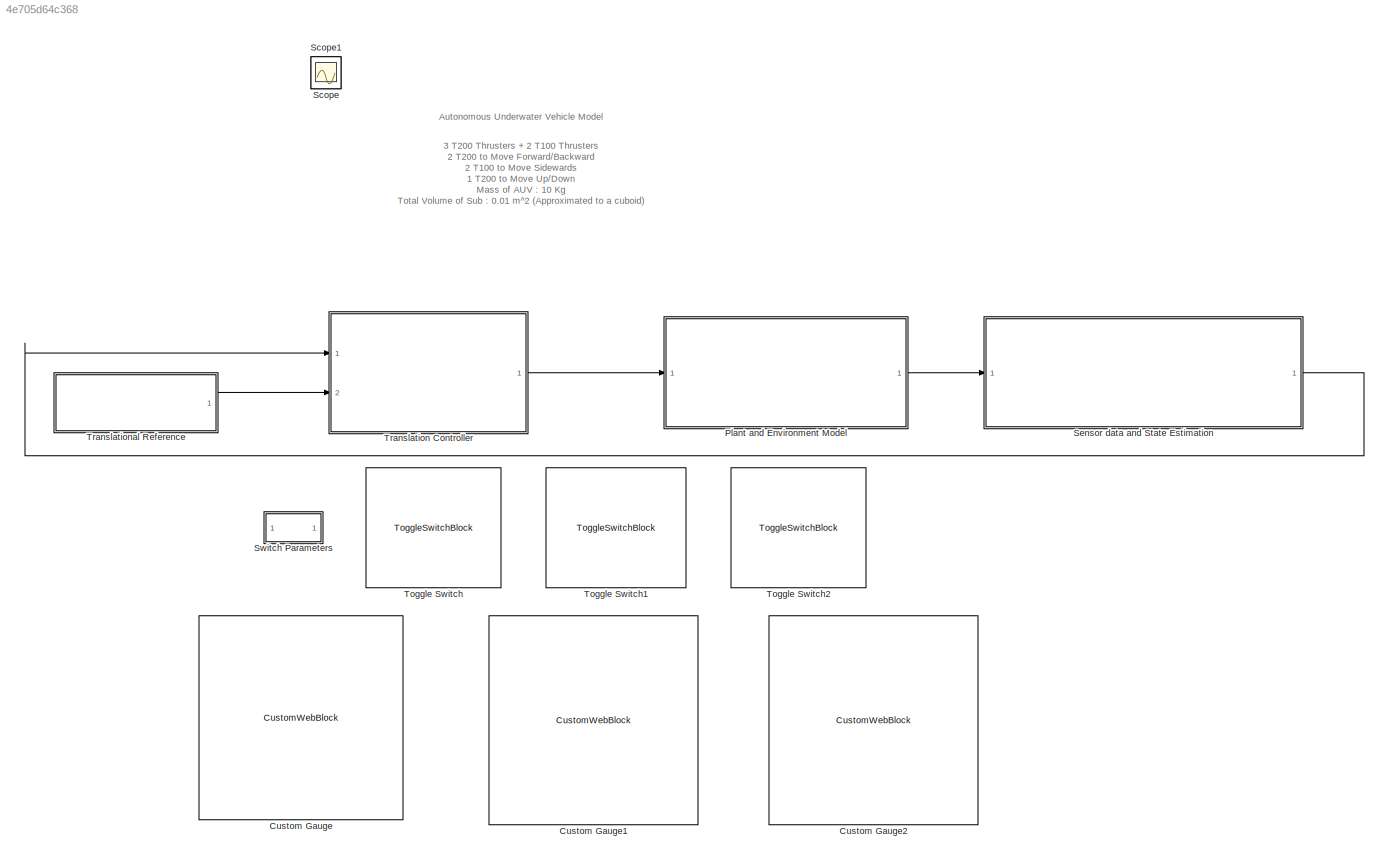
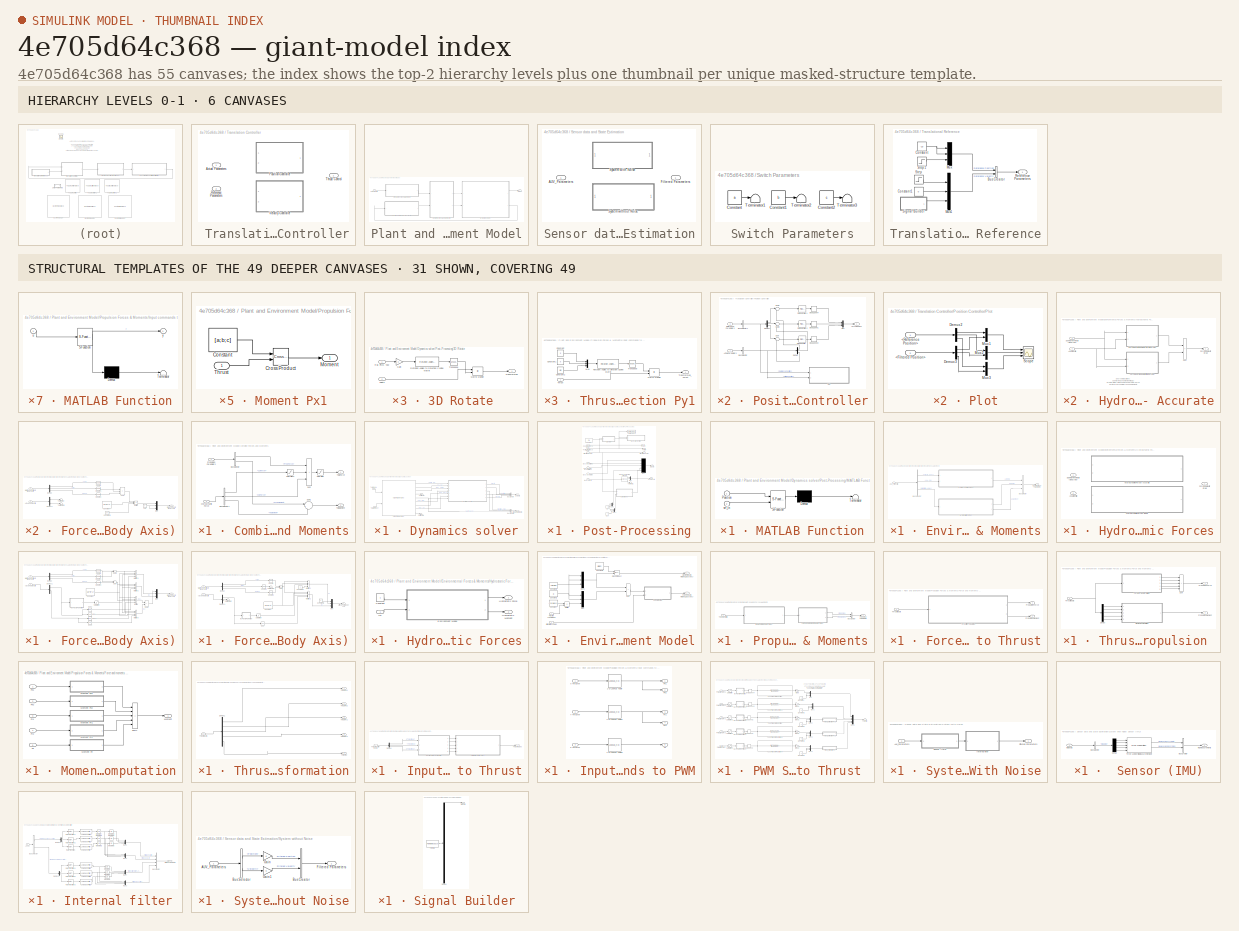
[diagram: thumbnail index - top-2 hierarchy levels (6 canvases) + 31 structural-template representatives of the remaining 49 canvases]
MODEL slx_4e705d64c368
KIND model
CONFIG AbsTol = auto
CONFIG EnableMultiTasking = off
CONFIG FixedStep = 0.5
CONFIG InitFcn = mdlWks = get_param(gcs,'ModelWorkspace');\na = getVariable(mdlWks,'a');\nb = getVariable(mdlWks,'b');\nc = getVariable(mdlWks,'c');
CONFIG MaxStep = auto
CONFIG MinStep = auto
CONFIG RelTol = 1e-3
CONFIG SampleTimeConstraint = Unconstrained
CONFIG SolverName = VariableStepAuto
CONFIG StartTime = 0.0
CONFIG StopFcn = figure(2)\nplot3(Position_Data(1,1),Position_Data(1,2),Position_Data(1,3),'r*')\nhold on\nplot3(Position_Data(:,1),Position_Data(:,2),Position_Data(:,3));\nplot3(Position_Data(end,1),Position_Data(end,2),Position_Data(end,3),'g*');\ngrid on\nlegend('Start Point','Trajectory','End Point')
CONFIG StopTime = 300
WORKSPACE source: mxarray member
WORKSPACE a = 0
WORKSPACE b = 1
WORKSPACE c = 1
BLOCK [SubSystem]  Translation Controller
  Ports = [2, 1]
  RequestExecContextInheritance = off
  Variant = on
BLOCK [Inport]  Translation Controller/Actual Parameters
BLOCK [SubSystem]  Translation Controller/Position Controller
  Ports = [2, 1]
  RequestExecContextInheritance = off
  VariantControl = a==0
BLOCK [Inport]  Translation Controller/Position Controller/Actual Parameters
BLOCK [BusSelector]  Translation Controller/Position Controller/Bus Selector
  OutputSignals = Filtered Position
  Ports = [1, 1]
BLOCK [BusSelector]  Translation Controller/Position Controller/Bus Selector1
  OutputSignals = Reference Position
  Ports = [1, 1]
BLOCK [DeadZone]  Translation Controller/Position Controller/Dead Zone1
  LowerValue = -0.05
  UpperValue = +0.05
BLOCK [DeadZone]  Translation Controller/Position Controller/Dead Zone2
  LowerValue = -0.05
  UpperValue = +0.05
BLOCK [DeadZone]  Translation Controller/Position Controller/Dead Zone4
  LowerValue = -0.05
  UpperValue = +0.05
BLOCK [Demux]  Translation Controller/Position Controller/Demux
  Outputs = 3
  Ports = [1, 3]
BLOCK [Demux]  Translation Controller/Position Controller/Demux1
  Outputs = 3
  Ports = [1, 3]
BLOCK [Mux]  Translation Controller/Position Controller/Mux
  DisplayOption = bar
  Inputs = 3
  Ports = [3, 1]
BLOCK [Reference]  Translation Controller/Position Controller/PID Controller  REF=simulink/Continuous/PID Controller
  Ports = [1, 1]
  SourceBlock = simulink/Continuous/PID Controller
  SourceProductBaseCode = SL
  SourceType = PID 1dof
BLOCK [Reference]  Translation Controller/Position Controller/PID Controller1  REF=simulink/Continuous/PID Controller
  Ports = [1, 1]
  SourceBlock = simulink/Continuous/PID Controller
  SourceProductBaseCode = SL
  SourceType = PID 1dof
BLOCK [Reference]  Translation Controller/Position Controller/PID Controller2  REF=simulink/Continuous/PID Controller
  Ports = [1, 1]
  SourceBlock = simulink/Continuous/PID Controller
  SourceProductBaseCode = SL
  SourceType = PID 1dof
BLOCK [SubSystem]  Translation Controller/Position Controller/Plot
  Ports = [2]
  RequestExecContextInheritance = off
BLOCK [Inport]  Translation Controller/Position Controller/Plot/<Filtered Position>
  Port = 2
BLOCK [Inport]  Translation Controller/Position Controller/Plot/<Reference Position>
BLOCK [Demux]  Translation Controller/Position Controller/Plot/Demux2
  Outputs = 3
  Ports = [1, 3]
BLOCK [Demux]  Translation Controller/Position Controller/Plot/Demux3
  Outputs = 3
  Ports = [1, 3]
BLOCK [Mux]  Translation Controller/Position Controller/Plot/Mux1
  DisplayOption = bar
  Inputs = 2
  Ports = [2, 1]
BLOCK [Mux]  Translation Controller/Position Controller/Plot/Mux2
  DisplayOption = bar
  Inputs = 2
  Ports = [2, 1]
BLOCK [Mux]  Translation Controller/Position Controller/Plot/Mux3
  DisplayOption = bar
  Inputs = 2
  Ports = [2, 1]
BLOCK [Scope]  Translation Controller/Position Controller/Plot/Scope
  Floating = off
  NumInputPorts = 3
  Ports = [3]
  ScopeSpecificationString = Simulink.scopes.TimeScopeBlockCfg('CurrentConfiguration', extmgr.ConfigurationSet(extmgr.Configuration('Core','General UI',true),extmgr.Configuration('Core','Source UI',true),extmgr.Configuration('Sources','WiredSimulink',true,'DataLoggingVariableName','ScopeData1'),extmgr.Configuration('Visuals','Time Domain',true,'SerializedDisplays',{struct('MinYLimReal','-14.39399','MaxYLimReal','1.61058','YLa...<+2682ch>
BLOCK [Inport]  Translation Controller/Position Controller/Reference Parameters
  Port = 2
BLOCK [Sum]  Translation Controller/Position Controller/Sum
  Inputs = |+-
  Ports = [2, 1]
BLOCK [Sum]  Translation Controller/Position Controller/Sum1
  Inputs = |+-
  Ports = [2, 1]
BLOCK [Sum]  Translation Controller/Position Controller/Sum2
  Inputs = |+-
  Ports = [2, 1]
BLOCK [Outport]  Translation Controller/Position Controller/Thrust Control
  VectorParamsAs1DForOutWhenUnconnected = off
BLOCK [Inport]  Translation Controller/Reference Parameters
  Port = 2
BLOCK [Outport]  Translation Controller/Thrust Control
  VectorParamsAs1DForOutWhenUnconnected = off
BLOCK [SubSystem]  Translation Controller/Velocity Controller
  Ports = [2, 1]
  RequestExecContextInheritance = off
  VariantControl = a==1
BLOCK [Inport]  Translation Controller/Velocity Controller/Actual Parameters
  Port = 2
BLOCK [BusSelector]  Translation Controller/Velocity Controller/Bus Selector
  OutputSignals = Reference Velocity
  Ports = [1, 1]
BLOCK [BusSelector]  Translation Controller/Velocity Controller/Bus Selector1
  OutputSignals = Filtered Velocity
  Ports = [1, 1]
BLOCK [DeadZone]  Translation Controller/Velocity Controller/Dead Zone1
  LowerValue = -0.05
  UpperValue = +0.05
BLOCK [DeadZone]  Translation Controller/Velocity Controller/Dead Zone2
  LowerValue = -0.05
  UpperValue = +0.05
BLOCK [DeadZone]  Translation Controller/Velocity Controller/Dead Zone4
  LowerValue = -0.05
  UpperValue = +0.05
BLOCK [Demux]  Translation Controller/Velocity Controller/Demux
  Outputs = 3
  Ports = [1, 3]
BLOCK [Demux]  Translation Controller/Velocity Controller/Demux1
  Outputs = 3
  Ports = [1, 3]
BLOCK [Mux]  Translation Controller/Velocity Controller/Mux
  DisplayOption = bar
  Inputs = 3
  Ports = [3, 1]
BLOCK [Reference]  Translation Controller/Velocity Controller/PID Controller3  REF=pid_lib/PID Controller
  Ports = [1, 1]
  SourceBlock = pid_lib/PID Controller
  SourceProductBaseCode = SL
  SourceType = PID 1dof
BLOCK [Reference]  Translation Controller/Velocity Controller/PID Controller4  REF=pid_lib/PID Controller
  Ports = [1, 1]
  SourceBlock = pid_lib/PID Controller
  SourceProductBaseCode = SL
  SourceType = PID 1dof
BLOCK [Reference]  Translation Controller/Velocity Controller/PID Controller5  REF=pid_lib/PID Controller
  Ports = [1, 1]
  SourceBlock = pid_lib/PID Controller
  SourceProductBaseCode = SL
  SourceType = PID 1dof
BLOCK [SubSystem]  Translation Controller/Velocity Controller/Plot
  Ports = [2]
  RequestExecContextInheritance = off
BLOCK [Inport]  Translation Controller/Velocity Controller/Plot/<Filtered Velocity>
  Port = 2
BLOCK [Inport]  Translation Controller/Velocity Controller/Plot/<Reference Velocity>
BLOCK [Demux]  Translation Controller/Velocity Controller/Plot/Demux2
  Outputs = 3
  Ports = [1, 3]
BLOCK [Demux]  Translation Controller/Velocity Controller/Plot/Demux3
  Outputs = 3
  Ports = [1, 3]
BLOCK [Mux]  Translation Controller/Velocity Controller/Plot/Mux1
  DisplayOption = bar
  Inputs = 2
  Ports = [2, 1]
BLOCK [Mux]  Translation Controller/Velocity Controller/Plot/Mux2
  DisplayOption = bar
  Inputs = 2
  Ports = [2, 1]
BLOCK [Mux]  Translation Controller/Velocity Controller/Plot/Mux3
  DisplayOption = bar
  Inputs = 2
  Ports = [2, 1]
BLOCK [Scope]  Translation Controller/Velocity Controller/Plot/Scope
  Floating = off
  NumInputPorts = 3
  Ports = [3]
  ScopeSpecificationString = Simulink.scopes.TimeScopeBlockCfg('CurrentConfiguration', extmgr.ConfigurationSet(extmgr.Configuration('Core','General UI',true),extmgr.Configuration('Core','Source UI',true),extmgr.Configuration('Sources','WiredSimulink',true,'DataLoggingVariableName','ScopeData1'),extmgr.Configuration('Visuals','Time Domain',true,'SerializedDisplays',{struct('MinYLimReal','-0.025','MaxYLimReal','0.225','YLabelRe...<+2921ch>
BLOCK [Inport]  Translation Controller/Velocity Controller/Reference Parameters
BLOCK [Sum]  Translation Controller/Velocity Controller/Sum
  Inputs = |+-
  Ports = [2, 1]
BLOCK [Sum]  Translation Controller/Velocity Controller/Sum1
  Inputs = |+-
  Ports = [2, 1]
BLOCK [Sum]  Translation Controller/Velocity Controller/Sum2
  Inputs = |+-
  Ports = [2, 1]
BLOCK [Outport]  Translation Controller/Velocity Controller/Thrust Control
  VectorParamsAs1DForOutWhenUnconnected = off
BLOCK [CustomWebBlock] Custom Gauge
  Configuration = {"components":[{"name":"CircularScaleComponent","settings":{"bounds":{"max":1,"min":-1,"tickInterval":"auto"},"direction":"cw","flipLimits":0,"innerRadius":0.5172763687199098,"internalTickHeightScaleFactor":1,"labelColor":[250,245,200],"labelFont":{"font":"Arial","fontSize":12},"labelTransparency":1,"labelTrasparency":1,"minorTickHeightScaleFactor":0.2,"needleImage":{"size":[200,50],"src":"data:im...<+21518ch>
  ShowInitialText = on
BLOCK [CustomWebBlock] Custom Gauge1
  Configuration = {"components":[{"name":"CircularScaleComponent","settings":{"bounds":{"max":1,"min":-1,"tickInterval":"auto"},"direction":"cw","flipLimits":0,"innerRadius":0.511012744107412,"internalTickHeightScaleFactor":1,"labelColor":[250,245,200],"labelFont":{"font":"Arial","fontSize":12},"labelTransparency":1,"labelTrasparency":1,"minorTickHeightScaleFactor":0.2,"needleImage":{"size":[200,50],"src":"data:ima...<+21518ch>
  ShowInitialText = on
BLOCK [CustomWebBlock] Custom Gauge2
  Configuration = {"components":[{"name":"CircularScaleComponent","settings":{"bounds":{"max":1,"min":-1,"tickInterval":"auto"},"direction":"cw","flipLimits":0,"innerRadius":0.4979572745541241,"internalTickHeightScaleFactor":1,"labelColor":[250,245,200],"labelFont":{"font":"Arial","fontSize":12},"labelTransparency":1,"labelTrasparency":1,"minorTickHeightScaleFactor":0.2,"needleImage":{"size":[200,50],"src":"data:im...<+21518ch>
  ShowInitialText = on
BLOCK [SubSystem] Plant and Environment Model
  Ports = [1, 1]
  RequestExecContextInheritance = off
BLOCK [SubSystem] Plant and Environment Model/Combine Forces and Moments
  Ports = [2, 2]
  RequestExecContextInheritance = off
BLOCK [BusSelector] Plant and Environment Model/Combine Forces and Moments/Bus Selector
  OutputSignals = PropForce,PropMoment
  Ports = [1, 2]
BLOCK [BusSelector] Plant and Environment Model/Combine Forces and Moments/Bus Selector1
  OutputSignals = LDForce,HSForce,HS Moment
  Ports = [1, 3]
BLOCK [Inport] Plant and Environment Model/Combine Forces and Moments/Hydrodynamic Force
  Port = 2
BLOCK [Inport] Plant and Environment Model/Combine Forces and Moments/Propulsion Parameters
BLOCK [Saturate] Plant and Environment Model/Combine Forces and Moments/Saturation
  LowerLimit = -600
  UpperLimit = 600
BLOCK [Saturate] Plant and Environment Model/Combine Forces and Moments/Saturation1
  LowerLimit = -600
  UpperLimit = 600
BLOCK [Sum] Plant and Environment Model/Combine Forces and Moments/Sum
  IconShape = rectangular
  Inputs = +++
  Ports = [3, 1]
BLOCK [Sum] Plant and Environment Model/Combine Forces and Moments/Sum1
  Inputs = |++
  Ports = [2, 1]
BLOCK [Outport] Plant and Environment Model/Combine Forces and Moments/Total Force
  VectorParamsAs1DForOutWhenUnconnected = off
BLOCK [Outport] Plant and Environment Model/Combine Forces and Moments/Total Moment
  Port = 2
  VectorParamsAs1DForOutWhenUnconnected = off
BLOCK [SubSystem] Plant and Environment Model/Dynamics solver
  Ports = [2, 2]
  RequestExecContextInheritance = off
BLOCK [Reference] Plant and Environment Model/Dynamics solver/6DOF (Euler Angles)  REF=shared6dof/6DOF (Euler Angles)
  Ports = [2, 9]
  SourceBlock = shared6dof/6DOF (Euler Angles)
  SourceProductBaseCode = AE,PW,MT,UV,VE,VP
  SourceType = 6DOF EoM (Body Axis)
BLOCK [Outport] Plant and Environment Model/Dynamics solver/AUV Data
  VectorParamsAs1DForOutWhenUnconnected = off
BLOCK [BusCreator] Plant and Environment Model/Dynamics solver/Bus Creator
  DisplayOption = bar
  InheritFromInputs = on
  Inputs = 4
  Ports = [4, 1]
BLOCK [BusCreator] Plant and Environment Model/Dynamics solver/Bus Creator1
  DisplayOption = bar
  InheritFromInputs = on
  Inputs = 3
  Ports = [3, 1]
BLOCK [Outport] Plant and Environment Model/Dynamics solver/Internal Parameters
  Port = 2
  VectorParamsAs1DForOutWhenUnconnected = off
BLOCK [SubSystem] Plant and Environment Model/Dynamics solver/Post-Processing
  Ports = [7, 5]
  RequestExecContextInheritance = off
BLOCK [Outport] Plant and Environment Model/Dynamics solver/Post-Processing/ Position
  Port = 2
  VectorParamsAs1DForOutWhenUnconnected = off
BLOCK [SubSystem] Plant and Environment Model/Dynamics solver/Post-Processing/3D Rotate 
  Ports = [2, 1]
  RequestExecContextInheritance = off
BLOCK [Gain] Plant and Environment Model/Dynamics solver/Post-Processing/3D Rotate /Gain
BLOCK [Product] Plant and Environment Model/Dynamics solver/Post-Processing/3D Rotate /Matrix Multiply
  Multiplication = Matrix(*)
  Ports = [2, 1]
BLOCK [Inport] Plant and Environment Model/Dynamics solver/Post-Processing/3D Rotate /Points
  Port = 2
BLOCK [Inport] Plant and Environment Model/Dynamics solver/Post-Processing/3D Rotate /Roll, Pitch, Yaw
BLOCK [Reference] Plant and Environment Model/Dynamics solver/Post-Processing/3D Rotate /Rotation Angles to Direction Cosine Matrix  REF=sharedtransform/Rotation Angles to
Direction Cosine Matrix
  AttributesFormatString = Rotation Order: %<rotationOrder>
  Ports = [1, 1]
  SourceBlock = sharedtransform/Rotation Angles to\nDirection Cosine Matrix
  SourceProductBaseCode = AE,PW,MT,UV,VE,VP
  SourceType = Ang2DCM
BLOCK [Outport] Plant and Environment Model/Dynamics solver/Post-Processing/3D Rotate /Transformed 
  VectorParamsAs1DForOutWhenUnconnected = off
BLOCK [Math] Plant and Environment Model/Dynamics solver/Post-Processing/3D Rotate /Transpose
  Operator = transpose
  Ports = [1, 1]
  SignedPower = on
BLOCK [SubSystem] Plant and Environment Model/Dynamics solver/Post-Processing/3D Rotate Vel
  Ports = [2, 1]
  RequestExecContextInheritance = off
BLOCK [Gain] Plant and Environment Model/Dynamics solver/Post-Processing/3D Rotate Vel/Gain
BLOCK [Product] Plant and Environment Model/Dynamics solver/Post-Processing/3D Rotate Vel/Matrix Multiply
  Multiplication = Matrix(*)
  Ports = [2, 1]
BLOCK [Inport] Plant and Environment Model/Dynamics solver/Post-Processing/3D Rotate Vel/Roll, Pitch, Yaw
BLOCK [Reference] Plant and Environment Model/Dynamics solver/Post-Processing/3D Rotate Vel/Rotation Angles to Direction Cosine Matrix  REF=sharedtransform/Rotation Angles to
Direction Cosine Matrix
  AttributesFormatString = Rotation Order: %<rotationOrder>
  Ports = [1, 1]
  SourceBlock = sharedtransform/Rotation Angles to\nDirection Cosine Matrix
  SourceProductBaseCode = AE,PW,MT,UV,VE,VP
  SourceType = Ang2DCM
BLOCK [Outport] Plant and Environment Model/Dynamics solver/Post-Processing/3D Rotate Vel/Transformed_velocity 
  VectorParamsAs1DForOutWhenUnconnected = off
BLOCK [Math] Plant and Environment Model/Dynamics solver/Post-Processing/3D Rotate Vel/Transpose
  Operator = transpose
  Ports = [1, 1]
  SignedPower = on
BLOCK [Inport] Plant and Environment Model/Dynamics solver/Post-Processing/3D Rotate Vel/Velocity
  Port = 2
BLOCK [Outport] Plant and Environment Model/Dynamics solver/Post-Processing/AOA, Side slip
  Port = 3
  VectorParamsAs1DForOutWhenUnconnected = off
BLOCK [Inport] Plant and Environment Model/Dynamics solver/Post-Processing/Body Acceleration
  Port = 6
BLOCK [Inport] Plant and Environment Model/Dynamics solver/Post-Processing/Body angular accelerations
  Port = 5
BLOCK [Inport] Plant and Environment Model/Dynamics solver/Post-Processing/Body angular rates
  Port = 4
BLOCK [Inport] Plant and Environment Model/Dynamics solver/Post-Processing/Body velocity
  Port = 7
BLOCK [Constant] Plant and Environment Model/Dynamics solver/Post-Processing/CG
  Value = 0
BLOCK [Constant] Plant and Environment Model/Dynamics solver/Post-Processing/CG1
  Value = 0
BLOCK [Constant] Plant and Environment Model/Dynamics solver/Post-Processing/Constant
  Value = 2*[              0         0         0\n    2.0000         0         0\n    2.0000    0.4000         0\n         0    0.4000         0\n         0         0         0\n         0         0    0.4000\n    2.0000         0    0.4000\n    2.0000    0.4000    0.4000\n         0    0.4000    0.4000\n         0         0    0.4000\n         0    0.4000    0.4000\n         0    0.4000         0\n    2.0000    0.4000...<+105ch>
BLOCK [Outport] Plant and Environment Model/Dynamics solver/Post-Processing/IMU Data
  Port = 5
  VectorParamsAs1DForOutWhenUnconnected = off
BLOCK [Reference] Plant and Environment Model/Dynamics solver/Post-Processing/Incidence, Sideslip, & Airspeed  REF=aerolibasang/Incidence, Sideslip,
& Airspeed
  Ports = [1, 3]
  SourceBlock = aerolibasang/Incidence, Sideslip,\n& Airspeed
  SourceProductBaseCode = AE
  SourceType = Incidence,Sideslip,&Airspeed
BLOCK [SubSystem] Plant and Environment Model/Dynamics solver/Post-Processing/MATLAB Function
  ErrorFcn = Stateflow.Translate.translate
  PermitHierarchicalResolution = ExplicitOnly
  Ports = [2]
  RequestExecContextInheritance = off
  SFBlockType = MATLAB Function
  SystemSampleTime = 0.05
  TreatAsAtomicUnit = on
BLOCK [Demux] Plant and Environment Model/Dynamics solver/Post-Processing/MATLAB Function/ Demux 
  Outputs = 1
  Ports = [1, 1]
BLOCK [S-Function] Plant and Environment Model/Dynamics solver/Post-Processing/MATLAB Function/ SFunction 
  EnableBusSupport = on
  FunctionName = sf_sfun
  PortCounts = [2 1]
  Ports = [2, 1]
  SFcnIsStateOwnerBlock = off
  SFunctionDeploymentMode = off
  Tag = Stateflow S-Function 8
BLOCK [Terminator] Plant and Environment Model/Dynamics solver/Post-Processing/MATLAB Function/ Terminator 
BLOCK [Inport] Plant and Environment Model/Dynamics solver/Post-Processing/MATLAB Function/Position
BLOCK [Inport] Plant and Environment Model/Dynamics solver/Post-Processing/MATLAB Function/srf_in
  Port = 2
BLOCK [Mux] Plant and Environment Model/Dynamics solver/Post-Processing/Mux
  DisplayOption = bar
  Inputs = 2
  Ports = [2, 1]
BLOCK [Mux] Plant and Environment Model/Dynamics solver/Post-Processing/Mux1
  DisplayOption = bar
  Inputs = 5
  Ports = [5, 1]
BLOCK [Mux] Plant and Environment Model/Dynamics solver/Post-Processing/Mux2
  DisplayOption = bar
  Inputs = 3
  Ports = [3, 1]
BLOCK [Mux] Plant and Environment Model/Dynamics solver/Post-Processing/Mux3
  DisplayOption = bar
  Inputs = 3
  Ports = [3, 1]
BLOCK [Outport] Plant and Environment Model/Dynamics solver/Post-Processing/Orientation Angles
  Port = 4
  VectorParamsAs1DForOutWhenUnconnected = off
BLOCK [Inport] Plant and Environment Model/Dynamics solver/Post-Processing/Orientation angles
  Port = 3
BLOCK [Inport] Plant and Environment Model/Dynamics solver/Post-Processing/Position (Reference Frame)
  Port = 2
BLOCK [Terminator] Plant and Environment Model/Dynamics solver/Post-Processing/Terminator1
BLOCK [ToWorkspace] Plant and Environment Model/Dynamics solver/Post-Processing/To Workspace
  FixptAsFi = on
  MaxDataPoints = inf
  Ports = [1]
  SampleTime = -1
  VariableName = Position_Data
BLOCK [Outport] Plant and Environment Model/Dynamics solver/Post-Processing/Velocity
  VectorParamsAs1DForOutWhenUnconnected = off
BLOCK [Inport] Plant and Environment Model/Dynamics solver/Post-Processing/Velocity (Reference Frame)
BLOCK [Terminator] Plant and Environment Model/Dynamics solver/Terminator
BLOCK [Terminator] Plant and Environment Model/Dynamics solver/Terminator1
BLOCK [Inport] Plant and Environment Model/Dynamics solver/Total Force
BLOCK [Inport] Plant and Environment Model/Dynamics solver/Total Moment
  Port = 2
BLOCK [SubSystem] Plant and Environment Model/Environmental Forces & Moments
  Ports = [1, 1]
  RequestExecContextInheritance = off
BLOCK [Inport] Plant and Environment Model/Environmental Forces & Moments/AOA_SideSlip
BLOCK [BusCreator] Plant and Environment Model/Environmental Forces & Moments/Bus Creator
  DisplayOption = bar
  InheritFromInputs = on
  Inputs = 3
  Ports = [3, 1]
BLOCK [BusSelector] Plant and Environment Model/Environmental Forces & Moments/Bus Selector
  OutputSignals = Velocity_body,AOA_SS,Orientation Angles
  Ports = [1, 3]
BLOCK [Outport] Plant and Environment Model/Environmental Forces & Moments/Environment Parameters
  VectorParamsAs1DForOutWhenUnconnected = off
BLOCK [SubSystem] Plant and Environment Model/Environmental Forces & Moments/Hydrodynamic Forces
  Ports = [2, 1]
  RequestExecContextInheritance = off
  Variant = on
BLOCK [Inport] Plant and Environment Model/Environmental Forces & Moments/Hydrodynamic Forces/AOA, Side Slip
  Port = 2
BLOCK [Outport] Plant and Environment Model/Environmental Forces & Moments/Hydrodynamic Forces/Force due to Lift, Drag
  VectorParamsAs1DForOutWhenUnconnected = off
BLOCK [SubSystem] Plant and Environment Model/Environmental Forces & Moments/Hydrodynamic Forces/Hydrodynamic Forces - Accurate
  Ports = [2, 1]
  RequestExecContextInheritance = off
  VariantControl = c==1
BLOCK [Inport] Plant and Environment Model/Environmental Forces & Moments/Hydrodynamic Forces/Hydrodynamic Forces - Accurate/AOA, Side Slip
  Port = 2
BLOCK [SubSystem] Plant and Environment Model/Environmental Forces & Moments/Hydrodynamic Forces/Hydrodynamic Forces - Accurate/Force Exerted due to Drag (Body Axis)
  Ports = [2, 1]
  RequestExecContextInheritance = off
BLOCK [Inport] Plant and Environment Model/Environmental Forces & Moments/Hydrodynamic Forces/Hydrodynamic Forces - Accurate/Force Exerted due to Drag (Body Axis)/AOA and Side Slip
  Port = 2
BLOCK [Constant] Plant and Environment Model/Environmental Forces & Moments/Hydrodynamic Forces/Hydrodynamic Forces - Accurate/Force Exerted due to Drag (Body Axis)/Constant
  Value = -1/2*ro*Af
BLOCK [Trigonometry] Plant and Environment Model/Environmental Forces & Moments/Hydrodynamic Forces/Hydrodynamic Forces - Accurate/Force Exerted due to Drag (Body Axis)/Cos
  Operator = cos
  Ports = [1, 1]
BLOCK [Trigonometry] Plant and Environment Model/Environmental Forces & Moments/Hydrodynamic Forces/Hydrodynamic Forces - Accurate/Force Exerted due to Drag (Body Axis)/Cos1
  Ports = [1, 1]
BLOCK [Trigonometry] Plant and Environment Model/Environmental Forces & Moments/Hydrodynamic Forces/Hydrodynamic Forces - Accurate/Force Exerted due to Drag (Body Axis)/Cos2
  Ports = [1, 1]
BLOCK [Trigonometry] Plant and Environment Model/Environmental Forces & Moments/Hydrodynamic Forces/Hydrodynamic Forces - Accurate/Force Exerted due to Drag (Body Axis)/Cos3
  Operator = cos
  Ports = [1, 1]
BLOCK [Demux] Plant and Environment Model/Environmental Forces & Moments/Hydrodynamic Forces/Hydrodynamic Forces - Accurate/Force Exerted due to Drag (Body Axis)/Demux
  Outputs = 3
  Ports = [1, 3]
BLOCK [Demux] Plant and Environment Model/Environmental Forces & Moments/Hydrodynamic Forces/Hydrodynamic Forces - Accurate/Force Exerted due to Drag (Body Axis)/Demux1
  Outputs = 2
  Ports = [1, 2]
BLOCK [Outport] Plant and Environment Model/Environmental Forces & Moments/Hydrodynamic Forces/Hydrodynamic Forces - Accurate/Force Exerted due to Drag (Body Axis)/Drag Forces in Body Axis
  VectorParamsAs1DForOutWhenUnconnected = off
BLOCK [SubSystem] Plant and Environment Model/Environmental Forces & Moments/Hydrodynamic Forces/Hydrodynamic Forces - Accurate/Force Exerted due to Drag (Body Axis)/MATLAB Function
  ErrorFcn = Stateflow.Translate.translate
  PermitHierarchicalResolution = ExplicitOnly
  Ports = [1, 1]
  RequestExecContextInheritance = off
  SFBlockType = MATLAB Function
  TreatAsAtomicUnit = on
BLOCK [Demux] Plant and Environment Model/Environmental Forces & Moments/Hydrodynamic Forces/Hydrodynamic Forces - Accurate/Force Exerted due to Drag (Body Axis)/MATLAB Function/ Demux 
  Outputs = 1
  Ports = [1, 1]
BLOCK [S-Function] Plant and Environment Model/Environmental Forces & Moments/Hydrodynamic Forces/Hydrodynamic Forces - Accurate/Force Exerted due to Drag (Body Axis)/MATLAB Function/ SFunction 
  EnableBusSupport = on
  FunctionName = sf_sfun
  PortCounts = [1 2]
  Ports = [1, 2]
  SFcnIsStateOwnerBlock = off
  SFunctionDeploymentMode = off
  Tag = Stateflow S-Function 1
BLOCK [Terminator] Plant and Environment Model/Environmental Forces & Moments/Hydrodynamic Forces/Hydrodynamic Forces - Accurate/Force Exerted due to Drag (Body Axis)/MATLAB Function/ Terminator 
BLOCK [Outport] Plant and Environment Model/Environmental Forces & Moments/Hydrodynamic Forces/Hydrodynamic Forces - Accurate/Force Exerted due to Drag (Body Axis)/MATLAB Function/C_D
  VectorParamsAs1DForOutWhenUnconnected = off
BLOCK [Inport] Plant and Environment Model/Environmental Forces & Moments/Hydrodynamic Forces/Hydrodynamic Forces - Accurate/Force Exerted due to Drag (Body Axis)/MATLAB Function/u
BLOCK [Inport] Plant and Environment Model/Environmental Forces & Moments/Hydrodynamic Forces/Hydrodynamic Forces - Accurate/Force Exerted due to Drag (Body Axis)/Marine Velocities in Body Axis
BLOCK [Product] Plant and Environment Model/Environmental Forces & Moments/Hydrodynamic Forces/Hydrodynamic Forces - Accurate/Force Exerted due to Drag (Body Axis)/Multiply
  Inputs = 4
  Ports = [4, 1]
BLOCK [Product] Plant and Environment Model/Environmental Forces & Moments/Hydrodynamic Forces/Hydrodynamic Forces - Accurate/Force Exerted due to Drag (Body Axis)/Multiply1
  Inputs = 4
  Ports = [4, 1]
BLOCK [Product] Plant and Environment Model/Environmental Forces & Moments/Hydrodynamic Forces/Hydrodynamic Forces - Accurate/Force Exerted due to Drag (Body Axis)/Multiply2
  Inputs = 4
  Ports = [4, 1]
BLOCK [Product] Plant and Environment Model/Environmental Forces & Moments/Hydrodynamic Forces/Hydrodynamic Forces - Accurate/Force Exerted due to Drag (Body Axis)/Multiply3
  Inputs = 4
  Ports = [4, 1]
BLOCK [Mux] Plant and Environment Model/Environmental Forces & Moments/Hydrodynamic Forces/Hydrodynamic Forces - Accurate/Force Exerted due to Drag (Body Axis)/Mux
  DisplayOption = bar
  Inputs = 3
  Ports = [3, 1]
BLOCK [Saturate] Plant and Environment Model/Environmental Forces & Moments/Hydrodynamic Forces/Hydrodynamic Forces - Accurate/Force Exerted due to Drag (Body Axis)/Saturation
  LowerLimit = -25
  UpperLimit = 25
BLOCK [Math] Plant and Environment Model/Environmental Forces & Moments/Hydrodynamic Forces/Hydrodynamic Forces - Accurate/Force Exerted due to Drag (Body Axis)/Square
  Operator = square
  Ports = [1, 1]
  SignedPower = on
BLOCK [Math] Plant and Environment Model/Environmental Forces & Moments/Hydrodynamic Forces/Hydrodynamic Forces - Accurate/Force Exerted due to Drag (Body Axis)/Square1
  Operator = square
  Ports = [1, 1]
  SignedPower = on
BLOCK [Math] Plant and Environment Model/Environmental Forces & Moments/Hydrodynamic Forces/Hydrodynamic Forces - Accurate/Force Exerted due to Drag (Body Axis)/Square2
  Operator = square
  Ports = [1, 1]
  SignedPower = on
BLOCK [Sum] Plant and Environment Model/Environmental Forces & Moments/Hydrodynamic Forces/Hydrodynamic Forces - Accurate/Force Exerted due to Drag (Body Axis)/Sum
  IconShape = rectangular
  Ports = [2, 1]
BLOCK [Sum] Plant and Environment Model/Environmental Forces & Moments/Hydrodynamic Forces/Hydrodynamic Forces - Accurate/Force Exerted due to Drag (Body Axis)/Sum1
  IconShape = rectangular
  Ports = [2, 1]
BLOCK [Sum] Plant and Environment Model/Environmental Forces & Moments/Hydrodynamic Forces/Hydrodynamic Forces - Accurate/Force Exerted due to Drag (Body Axis)/Sum2
  IconShape = rectangular
  Ports = [2, 1]
BLOCK [SubSystem] Plant and Environment Model/Environmental Forces & Moments/Hydrodynamic Forces/Hydrodynamic Forces - Accurate/Force Exerted due to Lift (Body Axis)
  Ports = [2, 1]
  RequestExecContextInheritance = off
BLOCK [Inport] Plant and Environment Model/Environmental Forces & Moments/Hydrodynamic Forces/Hydrodynamic Forces - Accurate/Force Exerted due to Lift (Body Axis)/AOA and Side Slip
  Port = 2
BLOCK [Constant] Plant and Environment Model/Environmental Forces & Moments/Hydrodynamic Forces/Hydrodynamic Forces - Accurate/Force Exerted due to Lift (Body Axis)/Constant
  Value = 1/2*ro*Af
BLOCK [Constant] Plant and Environment Model/Environmental Forces & Moments/Hydrodynamic Forces/Hydrodynamic Forces - Accurate/Force Exerted due to Lift (Body Axis)/Constant1
  Value = 0
BLOCK [Constant] Plant and Environment Model/Environmental Forces & Moments/Hydrodynamic Forces/Hydrodynamic Forces - Accurate/Force Exerted due to Lift (Body Axis)/Constant2
  Value = 0
BLOCK [Trigonometry] Plant and Environment Model/Environmental Forces & Moments/Hydrodynamic Forces/Hydrodynamic Forces - Accurate/Force Exerted due to Lift (Body Axis)/Cos
  Operator = cos
  Ports = [1, 1]
BLOCK [Demux] Plant and Environment Model/Environmental Forces & Moments/Hydrodynamic Forces/Hydrodynamic Forces - Accurate/Force Exerted due to Lift (Body Axis)/Demux
  Outputs = 3
  Ports = [1, 3]
BLOCK [Demux] Plant and Environment Model/Environmental Forces & Moments/Hydrodynamic Forces/Hydrodynamic Forces - Accurate/Force Exerted due to Lift (Body Axis)/Demux1
  Outputs = 2
  Ports = [1, 2]
BLOCK [Outport] Plant and Environment Model/Environmental Forces & Moments/Hydrodynamic Forces/Hydrodynamic Forces - Accurate/Force Exerted due to Lift (Body Axis)/Lift Forces in Body Axis
  VectorParamsAs1DForOutWhenUnconnected = off
BLOCK [SubSystem] Plant and Environment Model/Environmental Forces & Moments/Hydrodynamic Forces/Hydrodynamic Forces - Accurate/Force Exerted due to Lift (Body Axis)/MATLAB Function
  ErrorFcn = Stateflow.Translate.translate
  PermitHierarchicalResolution = ExplicitOnly
  Ports = [1, 1]
  RequestExecContextInheritance = off
  SFBlockType = MATLAB Function
  TreatAsAtomicUnit = on
BLOCK [Demux] Plant and Environment Model/Environmental Forces & Moments/Hydrodynamic Forces/Hydrodynamic Forces - Accurate/Force Exerted due to Lift (Body Axis)/MATLAB Function/ Demux 
  Outputs = 1
  Ports = [1, 1]
BLOCK [S-Function] Plant and Environment Model/Environmental Forces & Moments/Hydrodynamic Forces/Hydrodynamic Forces - Accurate/Force Exerted due to Lift (Body Axis)/MATLAB Function/ SFunction 
  EnableBusSupport = on
  FunctionName = sf_sfun
  PortCounts = [1 2]
  Ports = [1, 2]
  SFcnIsStateOwnerBlock = off
  SFunctionDeploymentMode = off
  Tag = Stateflow S-Function 2
BLOCK [Terminator] Plant and Environment Model/Environmental Forces & Moments/Hydrodynamic Forces/Hydrodynamic Forces - Accurate/Force Exerted due to Lift (Body Axis)/MATLAB Function/ Terminator 
BLOCK [Inport] Plant and Environment Model/Environmental Forces & Moments/Hydrodynamic Forces/Hydrodynamic Forces - Accurate/Force Exerted due to Lift (Body Axis)/MATLAB Function/u
BLOCK [Outport] Plant and Environment Model/Environmental Forces & Moments/Hydrodynamic Forces/Hydrodynamic Forces - Accurate/Force Exerted due to Lift (Body Axis)/MATLAB Function/y
  VectorParamsAs1DForOutWhenUnconnected = off
BLOCK [Inport] Plant and Environment Model/Environmental Forces & Moments/Hydrodynamic Forces/Hydrodynamic Forces - Accurate/Force Exerted due to Lift (Body Axis)/Marine Velocities in Body Axis
BLOCK [Product] Plant and Environment Model/Environmental Forces & Moments/Hydrodynamic Forces/Hydrodynamic Forces - Accurate/Force Exerted due to Lift (Body Axis)/Multiply1
  Inputs = 4
  Ports = [4, 1]
BLOCK [Product] Plant and Environment Model/Environmental Forces & Moments/Hydrodynamic Forces/Hydrodynamic Forces - Accurate/Force Exerted due to Lift (Body Axis)/Multiply2
  Inputs = 4
  Ports = [4, 1]
BLOCK [Mux] Plant and Environment Model/Environmental Forces & Moments/Hydrodynamic Forces/Hydrodynamic Forces - Accurate/Force Exerted due to Lift (Body Axis)/Mux
  DisplayOption = bar
  Inputs = 3
  Ports = [3, 1]
BLOCK [Saturate] Plant and Environment Model/Environmental Forces & Moments/Hydrodynamic Forces/Hydrodynamic Forces - Accurate/Force Exerted due to Lift (Body Axis)/Saturation
  LowerLimit = -25
  UpperLimit = 25
BLOCK [Math] Plant and Environment Model/Environmental Forces & Moments/Hydrodynamic Forces/Hydrodynamic Forces - Accurate/Force Exerted due to Lift (Body Axis)/Square
  Operator = square
  Ports = [1, 1]
  SignedPower = on
BLOCK [Math] Plant and Environment Model/Environmental Forces & Moments/Hydrodynamic Forces/Hydrodynamic Forces - Accurate/Force Exerted due to Lift (Body Axis)/Square1
  Operator = square
  Ports = [1, 1]
  SignedPower = on
BLOCK [Math] Plant and Environment Model/Environmental Forces & Moments/Hydrodynamic Forces/Hydrodynamic Forces - Accurate/Force Exerted due to Lift (Body Axis)/Square2
  Operator = square
  Ports = [1, 1]
  SignedPower = on
BLOCK [Sum] Plant and Environment Model/Environmental Forces & Moments/Hydrodynamic Forces/Hydrodynamic Forces - Accurate/Force Exerted due to Lift (Body Axis)/Sum
  IconShape = rectangular
  Ports = [2, 1]
BLOCK [Terminator] Plant and Environment Model/Environmental Forces & Moments/Hydrodynamic Forces/Hydrodynamic Forces - Accurate/Force Exerted due to Lift (Body Axis)/Terminator1
BLOCK [Terminator] Plant and Environment Model/Environmental Forces & Moments/Hydrodynamic Forces/Hydrodynamic Forces - Accurate/Force Exerted due to Lift (Body Axis)/Terminator2
BLOCK [Outport] Plant and Environment Model/Environmental Forces & Moments/Hydrodynamic Forces/Hydrodynamic Forces - Accurate/Force due to Lift, Drag
  VectorParamsAs1DForOutWhenUnconnected = off
BLOCK [Inport] Plant and Environment Model/Environmental Forces & Moments/Hydrodynamic Forces/Hydrodynamic Forces - Accurate/Submarine Velocity (Body Axis) 
BLOCK [Sum] Plant and Environment Model/Environmental Forces & Moments/Hydrodynamic Forces/Hydrodynamic Forces - Accurate/Sum
  IconShape = rectangular
  Ports = [2, 1]
BLOCK [SubSystem] Plant and Environment Model/Environmental Forces & Moments/Hydrodynamic Forces/Hydrodynamic Forces - Basic
  Ports = [2, 1]
  RequestExecContextInheritance = off
  VariantControl = c==0
BLOCK [Inport] Plant and Environment Model/Environmental Forces & Moments/Hydrodynamic Forces/Hydrodynamic Forces - Basic/AOA, Side Slip
  Port = 2
BLOCK [SubSystem] Plant and Environment Model/Environmental Forces & Moments/Hydrodynamic Forces/Hydrodynamic Forces - Basic/Force Exerted due to Drag (Body Axis)
  Ports = [2, 1]
  RequestExecContextInheritance = off
BLOCK [Inport] Plant and Environment Model/Environmental Forces & Moments/Hydrodynamic Forces/Hydrodynamic Forces - Basic/Force Exerted due to Drag (Body Axis)/AOA and Side Slip
  Port = 2
BLOCK [Constant] Plant and Environment Model/Environmental Forces & Moments/Hydrodynamic Forces/Hydrodynamic Forces - Basic/Force Exerted due to Drag (Body Axis)/Constant
  Value = -1/2*ro*Af
BLOCK [Constant] Plant and Environment Model/Environmental Forces & Moments/Hydrodynamic Forces/Hydrodynamic Forces - Basic/Force Exerted due to Drag (Body Axis)/Constant1
  Value = 0.75
BLOCK [Demux] Plant and Environment Model/Environmental Forces & Moments/Hydrodynamic Forces/Hydrodynamic Forces - Basic/Force Exerted due to Drag (Body Axis)/Demux
  Outputs = 3
  Ports = [1, 3]
BLOCK [Demux] Plant and Environment Model/Environmental Forces & Moments/Hydrodynamic Forces/Hydrodynamic Forces - Basic/Force Exerted due to Drag (Body Axis)/Demux1
  Outputs = 2
  Ports = [1, 2]
BLOCK [Outport] Plant and Environment Model/Environmental Forces & Moments/Hydrodynamic Forces/Hydrodynamic Forces - Basic/Force Exerted due to Drag (Body Axis)/Drag Forces in Body Axis
  VectorParamsAs1DForOutWhenUnconnected = off
BLOCK [Inport] Plant and Environment Model/Environmental Forces & Moments/Hydrodynamic Forces/Hydrodynamic Forces - Basic/Force Exerted due to Drag (Body Axis)/Marine Velocities in Body Axis
BLOCK [Product] Plant and Environment Model/Environmental Forces & Moments/Hydrodynamic Forces/Hydrodynamic Forces - Basic/Force Exerted due to Drag (Body Axis)/Multiply
  Inputs = 3
  Ports = [3, 1]
BLOCK [Mux] Plant and Environment Model/Environmental Forces & Moments/Hydrodynamic Forces/Hydrodynamic Forces - Basic/Force Exerted due to Drag (Body Axis)/Mux
  DisplayOption = bar
  Inputs = 3
  Ports = [3, 1]
BLOCK [Math] Plant and Environment Model/Environmental Forces & Moments/Hydrodynamic Forces/Hydrodynamic Forces - Basic/Force Exerted due to Drag (Body Axis)/Square
  Operator = square
  Ports = [1, 1]
  SignedPower = on
BLOCK [Math] Plant and Environment Model/Environmental Forces & Moments/Hydrodynamic Forces/Hydrodynamic Forces - Basic/Force Exerted due to Drag (Body Axis)/Square1
  Operator = square
  Ports = [1, 1]
  SignedPower = on
BLOCK [Math] Plant and Environment Model/Environmental Forces & Moments/Hydrodynamic Forces/Hydrodynamic Forces - Basic/Force Exerted due to Drag (Body Axis)/Square2
  Operator = square
  Ports = [1, 1]
  SignedPower = on
BLOCK [Sum] Plant and Environment Model/Environmental Forces & Moments/Hydrodynamic Forces/Hydrodynamic Forces - Basic/Force Exerted due to Drag (Body Axis)/Sum
  IconShape = rectangular
  Inputs = +++
  Ports = [3, 1]
BLOCK [Terminator] Plant and Environment Model/Environmental Forces & Moments/Hydrodynamic Forces/Hydrodynamic Forces - Basic/Force Exerted due to Drag (Body Axis)/Terminator
BLOCK [Terminator] Plant and Environment Model/Environmental Forces & Moments/Hydrodynamic Forces/Hydrodynamic Forces - Basic/Force Exerted due to Drag (Body Axis)/Terminator1
BLOCK [Constant] Plant and Environment Model/Environmental Forces & Moments/Hydrodynamic Forces/Hydrodynamic Forces - Basic/Force Exerted due to Drag (Body Axis)/Zero
  OutDataTypeStr = Inherit: Inherit via back propagation
  Value = 0
BLOCK [SubSystem] Plant and Environment Model/Environmental Forces & Moments/Hydrodynamic Forces/Hydrodynamic Forces - Basic/Force Exerted due to Lift (Body Axis)
  Ports = [2, 1]
  RequestExecContextInheritance = off
BLOCK [Inport] Plant and Environment Model/Environmental Forces & Moments/Hydrodynamic Forces/Hydrodynamic Forces - Basic/Force Exerted due to Lift (Body Axis)/AOA and Side Slip
  Port = 2
BLOCK [Constant] Plant and Environment Model/Environmental Forces & Moments/Hydrodynamic Forces/Hydrodynamic Forces - Basic/Force Exerted due to Lift (Body Axis)/Constant
  Value = 1/2*ro*Af
BLOCK [Constant] Plant and Environment Model/Environmental Forces & Moments/Hydrodynamic Forces/Hydrodynamic Forces - Basic/Force Exerted due to Lift (Body Axis)/Constant1
  Value = 0
BLOCK [Constant] Plant and Environment Model/Environmental Forces & Moments/Hydrodynamic Forces/Hydrodynamic Forces - Basic/Force Exerted due to Lift (Body Axis)/Constant2
  Value = 0.2
BLOCK [Demux] Plant and Environment Model/Environmental Forces & Moments/Hydrodynamic Forces/Hydrodynamic Forces - Basic/Force Exerted due to Lift (Body Axis)/Demux
  Outputs = 3
  Ports = [1, 3]
BLOCK [Demux] Plant and Environment Model/Environmental Forces & Moments/Hydrodynamic Forces/Hydrodynamic Forces - Basic/Force Exerted due to Lift (Body Axis)/Demux1
  Outputs = 2
  Ports = [1, 2]
BLOCK [Outport] Plant and Environment Model/Environmental Forces & Moments/Hydrodynamic Forces/Hydrodynamic Forces - Basic/Force Exerted due to Lift (Body Axis)/Lift Forces in Body Axis
  VectorParamsAs1DForOutWhenUnconnected = off
BLOCK [Inport] Plant and Environment Model/Environmental Forces & Moments/Hydrodynamic Forces/Hydrodynamic Forces - Basic/Force Exerted due to Lift (Body Axis)/Marine Velocities in Body Axis
BLOCK [Product] Plant and Environment Model/Environmental Forces & Moments/Hydrodynamic Forces/Hydrodynamic Forces - Basic/Force Exerted due to Lift (Body Axis)/Multiply
  Inputs = 3
  Ports = [3, 1]
BLOCK [Mux] Plant and Environment Model/Environmental Forces & Moments/Hydrodynamic Forces/Hydrodynamic Forces - Basic/Force Exerted due to Lift (Body Axis)/Mux
  DisplayOption = bar
  Inputs = 3
  Ports = [3, 1]
BLOCK [Math] Plant and Environment Model/Environmental Forces & Moments/Hydrodynamic Forces/Hydrodynamic Forces - Basic/Force Exerted due to Lift (Body Axis)/Square
  Operator = square
  Ports = [1, 1]
  SignedPower = on
BLOCK [Math] Plant and Environment Model/Environmental Forces & Moments/Hydrodynamic Forces/Hydrodynamic Forces - Basic/Force Exerted due to Lift (Body Axis)/Square1
  Operator = square
  Ports = [1, 1]
  SignedPower = on
BLOCK [Math] Plant and Environment Model/Environmental Forces & Moments/Hydrodynamic Forces/Hydrodynamic Forces - Basic/Force Exerted due to Lift (Body Axis)/Square2
  Operator = square
  Ports = [1, 1]
  SignedPower = on
BLOCK [Sum] Plant and Environment Model/Environmental Forces & Moments/Hydrodynamic Forces/Hydrodynamic Forces - Basic/Force Exerted due to Lift (Body Axis)/Sum
  IconShape = rectangular
  Inputs = +++
  Ports = [3, 1]
BLOCK [Terminator] Plant and Environment Model/Environmental Forces & Moments/Hydrodynamic Forces/Hydrodynamic Forces - Basic/Force Exerted due to Lift (Body Axis)/Terminator
BLOCK [Terminator] Plant and Environment Model/Environmental Forces & Moments/Hydrodynamic Forces/Hydrodynamic Forces - Basic/Force Exerted due to Lift (Body Axis)/Terminator1
BLOCK [Outport] Plant and Environment Model/Environmental Forces & Moments/Hydrodynamic Forces/Hydrodynamic Forces - Basic/Force due to Lift, Drag
  VectorParamsAs1DForOutWhenUnconnected = off
BLOCK [Inport] Plant and Environment Model/Environmental Forces & Moments/Hydrodynamic Forces/Hydrodynamic Forces - Basic/Submarine Velocity (Body Axis) 
BLOCK [Sum] Plant and Environment Model/Environmental Forces & Moments/Hydrodynamic Forces/Hydrodynamic Forces - Basic/Sum
  IconShape = rectangular
  Ports = [2, 1]
BLOCK [Inport] Plant and Environment Model/Environmental Forces & Moments/Hydrodynamic Forces/Submarine Velocity (Body Axis) 
BLOCK [SubSystem] Plant and Environment Model/Environmental Forces & Moments/Hydrostatic Forces
  Ports = [1, 2]
  RequestExecContextInheritance = off
BLOCK [Constant] Plant and Environment Model/Environmental Forces & Moments/Hydrostatic Forces/Constant
BLOCK [SubSystem] Plant and Environment Model/Environmental Forces & Moments/Hydrostatic Forces/Environment Model
  Ports = [2, 2]
  RequestExecContextInheritance = off
BLOCK [SubSystem] Plant and Environment Model/Environmental Forces & Moments/Hydrostatic Forces/Environment Model/3D Rotate Drag
  Ports = [2, 1]
  RequestExecContextInheritance = off
BLOCK [Inport] Plant and Environment Model/Environmental Forces & Moments/Hydrostatic Forces/Environment Model/3D Rotate Drag/Force
BLOCK [Gain] Plant and Environment Model/Environmental Forces & Moments/Hydrostatic Forces/Environment Model/3D Rotate Drag/Gain
BLOCK [Product] Plant and Environment Model/Environmental Forces & Moments/Hydrostatic Forces/Environment Model/3D Rotate Drag/Matrix Multiply
  Multiplication = Matrix(*)
  Ports = [2, 1]
BLOCK [Inport] Plant and Environment Model/Environmental Forces & Moments/Hydrostatic Forces/Environment Model/3D Rotate Drag/Roll, Pitch, Yaw
  Port = 2
BLOCK [Reference] Plant and Environment Model/Environmental Forces & Moments/Hydrostatic Forces/Environment Model/3D Rotate Drag/Rotation Angles to Direction Cosine Matrix  REF=sharedtransform/Rotation Angles to
Direction Cosine Matrix
  AttributesFormatString = Rotation Order: %<rotationOrder>
  Ports = [1, 1]
  SourceBlock = sharedtransform/Rotation Angles to\nDirection Cosine Matrix
  SourceProductBaseCode = AE,PW,MT,UV,VE,VP
  SourceType = Ang2DCM
BLOCK [Outport] Plant and Environment Model/Environmental Forces & Moments/Hydrostatic Forces/Environment Model/3D Rotate Drag/Transformed_Force 
  VectorParamsAs1DForOutWhenUnconnected = off
BLOCK [Math] Plant and Environment Model/Environmental Forces & Moments/Hydrostatic Forces/Environment Model/3D Rotate Drag/Transpose
  Operator = transpose
  Ports = [1, 1]
  SignedPower = on
BLOCK [Constant] Plant and Environment Model/Environmental Forces & Moments/Hydrostatic Forces/Environment Model/Constant
  Value = -ro*9.81*V
BLOCK [Constant] Plant and Environment Model/Environmental Forces & Moments/Hydrostatic Forces/Environment Model/Constant1
  Value = 0
BLOCK [Constant] Plant and Environment Model/Environmental Forces & Moments/Hydrostatic Forces/Environment Model/Constant2
  Value = +M*9.81
BLOCK [Constant] Plant and Environment Model/Environmental Forces & Moments/Hydrostatic Forces/Environment Model/Constant3
  Value = [a;b;c]
BLOCK [Reference] Plant and Environment Model/Environmental Forces & Moments/Hydrostatic Forces/Environment Model/Cross Product  REF=vrlib/Utilities/Cross Product
  Ports = [2, 1]
  SourceBlock = vrlib/Utilities/Cross Product
  SourceProductBaseCode = SL
  SourceType = Cross Product
BLOCK [Outport] Plant and Environment Model/Environmental Forces & Moments/Hydrostatic Forces/Environment Model/Forces due to Weight and Buoyancy
  VectorParamsAs1DForOutWhenUnconnected = off
BLOCK [Inport] Plant and Environment Model/Environmental Forces & Moments/Hydrostatic Forces/Environment Model/Fraction submerged 
BLOCK [Outport] Plant and Environment Model/Environmental Forces & Moments/Hydrostatic Forces/Environment Model/Moment due to Weight and Buoyancy
  Port = 2
  VectorParamsAs1DForOutWhenUnconnected = off
BLOCK [Product] Plant and Environment Model/Environmental Forces & Moments/Hydrostatic Forces/Environment Model/Multiply
  Ports = [2, 1]
BLOCK [Mux] Plant and Environment Model/Environmental Forces & Moments/Hydrostatic Forces/Environment Model/Mux
  DisplayOption = bar
  Inputs = 3
  Ports = [3, 1]
BLOCK [Mux] Plant and Environment Model/Environmental Forces & Moments/Hydrostatic Forces/Environment Model/Mux1
  DisplayOption = bar
  Inputs = 3
  Ports = [3, 1]
BLOCK [Inport] Plant and Environment Model/Environmental Forces & Moments/Hydrostatic Forces/Environment Model/Orientation Angles
  Port = 2
BLOCK [Sum] Plant and Environment Model/Environmental Forces & Moments/Hydrostatic Forces/Environment Model/Sum
  IconShape = rectangular
  Ports = [2, 1]
BLOCK [Outport] Plant and Environment Model/Environmental Forces & Moments/Hydrostatic Forces/Hydrostatic Force
  VectorParamsAs1DForOutWhenUnconnected = off
BLOCK [Outport] Plant and Environment Model/Environmental Forces & Moments/Hydrostatic Forces/Hydrostatic Moment
  Port = 2
  VectorParamsAs1DForOutWhenUnconnected = off
BLOCK [Inport] Plant and Environment Model/Environmental Forces & Moments/Hydrostatic Forces/In1
BLOCK [Outport] Plant and Environment Model/Outport
  VectorParamsAs1DForOutWhenUnconnected = off
BLOCK [SubSystem] Plant and Environment Model/Propulsion Forces & Moments
  Ports = [1, 1]
  RequestExecContextInheritance = off
BLOCK [BusCreator] Plant and Environment Model/Propulsion Forces & Moments/Bus Creator
  DisplayOption = bar
  InheritFromInputs = on
  Inputs = 2
  Ports = [2, 1]
BLOCK [SubSystem] Plant and Environment Model/Propulsion Forces & Moments/Force and moments due to Thrust
  Ports = [1, 2]
  RequestExecContextInheritance = off
BLOCK [Outport] Plant and Environment Model/Propulsion Forces & Moments/Force and moments due to Thrust/Propulsion Force
  VectorParamsAs1DForOutWhenUnconnected = off
BLOCK [Outport] Plant and Environment Model/Propulsion Forces & Moments/Force and moments due to Thrust/Propulsion Moment
  Port = 2
  VectorParamsAs1DForOutWhenUnconnected = off
BLOCK [Inport] Plant and Environment Model/Propulsion Forces & Moments/Force and moments due to Thrust/Thrust Inputs
BLOCK [SubSystem] Plant and Environment Model/Propulsion Forces & Moments/Force and moments due to Thrust/Thrust to Propulsion 
  Ports = [1, 2]
  RequestExecContextInheritance = off
BLOCK [Demux] Plant and Environment Model/Propulsion Forces & Moments/Force and moments due to Thrust/Thrust to Propulsion /Demux
  Outputs = 5
  Ports = [1, 5]
BLOCK [SubSystem] Plant and Environment Model/Propulsion Forces & Moments/Force and moments due to Thrust/Thrust to Propulsion /Moment computation
  Ports = [5, 1]
  RequestExecContextInheritance = off
BLOCK [Outport] Plant and Environment Model/Propulsion Forces & Moments/Force and moments due to Thrust/Thrust to Propulsion /Moment computation/Moment
  VectorParamsAs1DForOutWhenUnconnected = off
BLOCK [SubSystem] Plant and Environment Model/Propulsion Forces & Moments/Force and moments due to Thrust/Thrust to Propulsion /Moment computation/Moment Px1
  Ports = [1, 1]
  RequestExecContextInheritance = off
BLOCK [Constant] Plant and Environment Model/Propulsion Forces & Moments/Force and moments due to Thrust/Thrust to Propulsion /Moment computation/Moment Px1/Constant
  Value = [a;b;c]
BLOCK [Reference] Plant and Environment Model/Propulsion Forces & Moments/Force and moments due to Thrust/Thrust to Propulsion /Moment computation/Moment Px1/Cross Product  REF=vrlib/Utilities/Cross Product
  Ports = [2, 1]
  SourceBlock = vrlib/Utilities/Cross Product
  SourceProductBaseCode = SL
  SourceType = Cross Product
BLOCK [Outport] Plant and Environment Model/Propulsion Forces & Moments/Force and moments due to Thrust/Thrust to Propulsion /Moment computation/Moment Px1/Moment
  VectorParamsAs1DForOutWhenUnconnected = off
BLOCK [Inport] Plant and Environment Model/Propulsion Forces & Moments/Force and moments due to Thrust/Thrust to Propulsion /Moment computation/Moment Px1/Thrust
BLOCK [SubSystem] Plant and Environment Model/Propulsion Forces & Moments/Force and moments due to Thrust/Thrust to Propulsion /Moment computation/Moment Px2
  Ports = [1, 1]
  RequestExecContextInheritance = off
BLOCK [Constant] Plant and Environment Model/Propulsion Forces & Moments/Force and moments due to Thrust/Thrust to Propulsion /Moment computation/Moment Px2/Constant
  Value = [a;b;c]
BLOCK [Reference] Plant and Environment Model/Propulsion Forces & Moments/Force and moments due to Thrust/Thrust to Propulsion /Moment computation/Moment Px2/Cross Product  REF=vrlib/Utilities/Cross Product
  Ports = [2, 1]
  SourceBlock = vrlib/Utilities/Cross Product
  SourceProductBaseCode = SL
  SourceType = Cross Product
BLOCK [Outport] Plant and Environment Model/Propulsion Forces & Moments/Force and moments due to Thrust/Thrust to Propulsion /Moment computation/Moment Px2/Moment
  VectorParamsAs1DForOutWhenUnconnected = off
BLOCK [Inport] Plant and Environment Model/Propulsion Forces & Moments/Force and moments due to Thrust/Thrust to Propulsion /Moment computation/Moment Px2/Thrust
BLOCK [SubSystem] Plant and Environment Model/Propulsion Forces & Moments/Force and moments due to Thrust/Thrust to Propulsion /Moment computation/Moment Py1
  Ports = [1, 1]
  RequestExecContextInheritance = off
BLOCK [Constant] Plant and Environment Model/Propulsion Forces & Moments/Force and moments due to Thrust/Thrust to Propulsion /Moment computation/Moment Py1/Constant
  Value = [a;b;c]
BLOCK [Reference] Plant and Environment Model/Propulsion Forces & Moments/Force and moments due to Thrust/Thrust to Propulsion /Moment computation/Moment Py1/Cross Product  REF=vrlib/Utilities/Cross Product
  Ports = [2, 1]
  SourceBlock = vrlib/Utilities/Cross Product
  SourceProductBaseCode = SL
  SourceType = Cross Product
BLOCK [Outport] Plant and Environment Model/Propulsion Forces & Moments/Force and moments due to Thrust/Thrust to Propulsion /Moment computation/Moment Py1/Moment
  VectorParamsAs1DForOutWhenUnconnected = off
BLOCK [Inport] Plant and Environment Model/Propulsion Forces & Moments/Force and moments due to Thrust/Thrust to Propulsion /Moment computation/Moment Py1/Thrust
BLOCK [SubSystem] Plant and Environment Model/Propulsion Forces & Moments/Force and moments due to Thrust/Thrust to Propulsion /Moment computation/Moment Py2
  Ports = [1, 1]
  RequestExecContextInheritance = off
BLOCK [Constant] Plant and Environment Model/Propulsion Forces & Moments/Force and moments due to Thrust/Thrust to Propulsion /Moment computation/Moment Py2/Constant
  Value = [a;b;c]
BLOCK [Reference] Plant and Environment Model/Propulsion Forces & Moments/Force and moments due to Thrust/Thrust to Propulsion /Moment computation/Moment Py2/Cross Product  REF=vrlib/Utilities/Cross Product
  Ports = [2, 1]
  SourceBlock = vrlib/Utilities/Cross Product
  SourceProductBaseCode = SL
  SourceType = Cross Product
BLOCK [Outport] Plant and Environment Model/Propulsion Forces & Moments/Force and moments due to Thrust/Thrust to Propulsion /Moment computation/Moment Py2/Moment
  VectorParamsAs1DForOutWhenUnconnected = off
BLOCK [Inport] Plant and Environment Model/Propulsion Forces & Moments/Force and moments due to Thrust/Thrust to Propulsion /Moment computation/Moment Py2/Thrust
BLOCK [SubSystem] Plant and Environment Model/Propulsion Forces & Moments/Force and moments due to Thrust/Thrust to Propulsion /Moment computation/Moment Pz
  Ports = [1, 1]
  RequestExecContextInheritance = off
BLOCK [Constant] Plant and Environment Model/Propulsion Forces & Moments/Force and moments due to Thrust/Thrust to Propulsion /Moment computation/Moment Pz/Constant
  Value = [a;b;c]
BLOCK [Reference] Plant and Environment Model/Propulsion Forces & Moments/Force and moments due to Thrust/Thrust to Propulsion /Moment computation/Moment Pz/Cross Product  REF=vrlib/Utilities/Cross Product
  Ports = [2, 1]
  SourceBlock = vrlib/Utilities/Cross Product
  SourceProductBaseCode = SL
  SourceType = Cross Product
BLOCK [Outport] Plant and Environment Model/Propulsion Forces & Moments/Force and moments due to Thrust/Thrust to Propulsion /Moment computation/Moment Pz/Moment
  VectorParamsAs1DForOutWhenUnconnected = off
BLOCK [Inport] Plant and Environment Model/Propulsion Forces & Moments/Force and moments due to Thrust/Thrust to Propulsion /Moment computation/Moment Pz/Thrust
BLOCK [Inport] Plant and Environment Model/Propulsion Forces & Moments/Force and moments due to Thrust/Thrust to Propulsion /Moment computation/Px1
BLOCK [Inport] Plant and Environment Model/Propulsion Forces & Moments/Force and moments due to Thrust/Thrust to Propulsion /Moment computation/Px2
  Port = 2
BLOCK [Inport] Plant and Environment Model/Propulsion Forces & Moments/Force and moments due to Thrust/Thrust to Propulsion /Moment computation/Py1
  Port = 3
BLOCK [Inport] Plant and Environment Model/Propulsion Forces & Moments/Force and moments due to Thrust/Thrust to Propulsion /Moment computation/Py2
  Port = 4
BLOCK [Inport] Plant and Environment Model/Propulsion Forces & Moments/Force and moments due to Thrust/Thrust to Propulsion /Moment computation/Pz
  Port = 5
BLOCK [Sum] Plant and Environment Model/Propulsion Forces & Moments/Force and moments due to Thrust/Thrust to Propulsion /Moment computation/Sum1
  IconShape = rectangular
  Inputs = +++++
  Ports = [5, 1]
BLOCK [Outport] Plant and Environment Model/Propulsion Forces & Moments/Force and moments due to Thrust/Thrust to Propulsion /Propulsion Force
  VectorParamsAs1DForOutWhenUnconnected = off
BLOCK [Outport] Plant and Environment Model/Propulsion Forces & Moments/Force and moments due to Thrust/Thrust to Propulsion /Propulsion Moment
  Port = 2
  VectorParamsAs1DForOutWhenUnconnected = off
BLOCK [Sum] Plant and Environment Model/Propulsion Forces & Moments/Force and moments due to Thrust/Thrust to Propulsion /Sum
  IconShape = rectangular
  Inputs = +++++
  Ports = [5, 1]
BLOCK [Inport] Plant and Environment Model/Propulsion Forces & Moments/Force and moments due to Thrust/Thrust to Propulsion /Thrust Inputs
BLOCK [SubSystem] Plant and Environment Model/Propulsion Forces & Moments/Force and moments due to Thrust/Thrust to Propulsion /Thrust Transformation
  Ports = [1, 5]
  RequestExecContextInheritance = off
BLOCK [Demux] Plant and Environment Model/Propulsion Forces & Moments/Force and moments due to Thrust/Thrust to Propulsion /Thrust Transformation/Demux1
  Outputs = 5
  Ports = [1, 5]
BLOCK [Inport] Plant and Environment Model/Propulsion Forces & Moments/Force and moments due to Thrust/Thrust to Propulsion /Thrust Transformation/Thrust Inputs
BLOCK [Outport] Plant and Environment Model/Propulsion Forces & Moments/Force and moments due to Thrust/Thrust to Propulsion /Thrust Transformation/Thrust Px1
  VectorParamsAs1DForOutWhenUnconnected = off
BLOCK [Outport] Plant and Environment Model/Propulsion Forces & Moments/Force and moments due to Thrust/Thrust to Propulsion /Thrust Transformation/Thrust Px2
  Port = 2
  VectorParamsAs1DForOutWhenUnconnected = off
BLOCK [Outport] Plant and Environment Model/Propulsion Forces & Moments/Force and moments due to Thrust/Thrust to Propulsion /Thrust Transformation/Thrust Py1
  Port = 3
  VectorParamsAs1DForOutWhenUnconnected = off
BLOCK [Outport] Plant and Environment Model/Propulsion Forces & Moments/Force and moments due to Thrust/Thrust to Propulsion /Thrust Transformation/Thrust Py2
  Port = 4
  VectorParamsAs1DForOutWhenUnconnected = off
BLOCK [Outport] Plant and Environment Model/Propulsion Forces & Moments/Force and moments due to Thrust/Thrust to Propulsion /Thrust Transformation/Thrust Pz
  Port = 5
  VectorParamsAs1DForOutWhenUnconnected = off
BLOCK [SubSystem] Plant and Environment Model/Propulsion Forces & Moments/Input commands to Thrust
  Ports = [1, 1]
  RequestExecContextInheritance = off
BLOCK [Demux] Plant and Environment Model/Propulsion Forces & Moments/Input commands to Thrust/Demux
  Outputs = 3
  Ports = [1, 3]
BLOCK [SubSystem] Plant and Environment Model/Propulsion Forces & Moments/Input commands to Thrust/Input Commands to PWM
  Ports = [3, 5]
  RequestExecContextInheritance = off
BLOCK [Lookup_n-D] Plant and Environment Model/Propulsion Forces & Moments/Input commands to Thrust/Input Commands to PWM/1-D Lookup Table
  BreakpointsForDimension1 = [-1:0.01:1]
  InputPortMap = u0
  InternalRulePriority = Speed
  NumberOfTableDimensions = 1
  Ports = [1, 1]
  RndMeth = Simplest
  Table = 1500 + 400 * ([-1:0.01:1])
BLOCK [Lookup_n-D] Plant and Environment Model/Propulsion Forces & Moments/Input commands to Thrust/Input Commands to PWM/1-D Lookup Table1
  BreakpointsForDimension1 = [-1:0.01:1]
  InputPortMap = u0
  InternalRulePriority = Speed
  NumberOfTableDimensions = 1
  Ports = [1, 1]
  RndMeth = Simplest
  Table = 1500 + 400 * ([-1:0.01:1])
BLOCK [Lookup_n-D] Plant and Environment Model/Propulsion Forces & Moments/Input commands to Thrust/Input Commands to PWM/1-D Lookup Table2
  BreakpointsForDimension1 = [-1:0.01:1]
  InputPortMap = u0
  InternalRulePriority = Speed
  NumberOfTableDimensions = 1
  Ports = [1, 1]
  RndMeth = Simplest
  Table = 1500 + 400 * ([-1:0.01:1])
BLOCK [Outport] Plant and Environment Model/Propulsion Forces & Moments/Input commands to Thrust/Input Commands to PWM/Px1
  VectorParamsAs1DForOutWhenUnconnected = off
BLOCK [Outport] Plant and Environment Model/Propulsion Forces & Moments/Input commands to Thrust/Input Commands to PWM/Px2
  Port = 2
  VectorParamsAs1DForOutWhenUnconnected = off
BLOCK [Outport] Plant and Environment Model/Propulsion Forces & Moments/Input commands to Thrust/Input Commands to PWM/Py1
  Port = 3
  VectorParamsAs1DForOutWhenUnconnected = off
BLOCK [Outport] Plant and Environment Model/Propulsion Forces & Moments/Input commands to Thrust/Input Commands to PWM/Py2
  Port = 4
  VectorParamsAs1DForOutWhenUnconnected = off
BLOCK [Outport] Plant and Environment Model/Propulsion Forces & Moments/Input commands to Thrust/Input Commands to PWM/Pz
  Port = 5
  VectorParamsAs1DForOutWhenUnconnected = off
BLOCK [Inport] Plant and Environment Model/Propulsion Forces & Moments/Input commands to Thrust/Input Commands to PWM/X Thruster
BLOCK [Inport] Plant and Environment Model/Propulsion Forces & Moments/Input commands to Thrust/Input Commands to PWM/Y Thruster
  Port = 2
BLOCK [Inport] Plant and Environment Model/Propulsion Forces & Moments/Input commands to Thrust/Input Commands to PWM/Z Thruster
  Port = 3
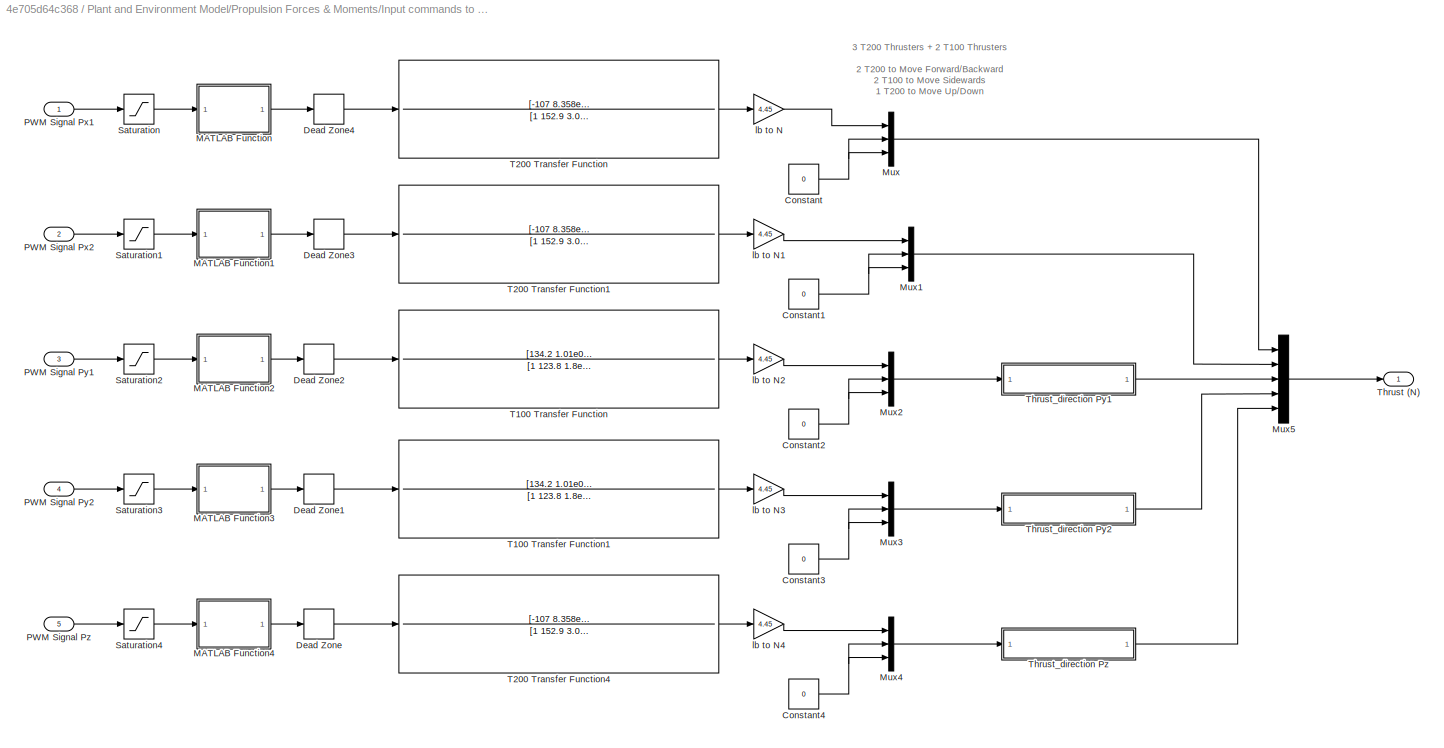
BLOCK [SubSystem] Plant and Environment Model/Propulsion Forces & Moments/Input commands to Thrust/PWM Signals to Thrust 
  Ports = [5, 1]
  RequestExecContextInheritance = off
BLOCK [Constant] Plant and Environment Model/Propulsion Forces & Moments/Input commands to Thrust/PWM Signals to Thrust /Constant
  Value = 0
BLOCK [Constant] Plant and Environment Model/Propulsion Forces & Moments/Input commands to Thrust/PWM Signals to Thrust /Constant1
  Value = 0
BLOCK [Constant] Plant and Environment Model/Propulsion Forces & Moments/Input commands to Thrust/PWM Signals to Thrust /Constant2
  Value = 0
BLOCK [Constant] Plant and Environment Model/Propulsion Forces & Moments/Input commands to Thrust/PWM Signals to Thrust /Constant3
  Value = 0
BLOCK [Constant] Plant and Environment Model/Propulsion Forces & Moments/Input commands to Thrust/PWM Signals to Thrust /Constant4
  Value = 0
BLOCK [DeadZone] Plant and Environment Model/Propulsion Forces & Moments/Input commands to Thrust/PWM Signals to Thrust /Dead Zone
  LowerValue = -10
  UpperValue = +10
BLOCK [DeadZone] Plant and Environment Model/Propulsion Forces & Moments/Input commands to Thrust/PWM Signals to Thrust /Dead Zone1
  LowerValue = -10
  UpperValue = 10
BLOCK [DeadZone] Plant and Environment Model/Propulsion Forces & Moments/Input commands to Thrust/PWM Signals to Thrust /Dead Zone2
  LowerValue = -10
  UpperValue = +10
BLOCK [DeadZone] Plant and Environment Model/Propulsion Forces & Moments/Input commands to Thrust/PWM Signals to Thrust /Dead Zone3
  LowerValue = -10
  UpperValue = +10
BLOCK [DeadZone] Plant and Environment Model/Propulsion Forces & Moments/Input commands to Thrust/PWM Signals to Thrust /Dead Zone4
  LowerValue = -10
  UpperValue = +10
BLOCK [SubSystem] Plant and Environment Model/Propulsion Forces & Moments/Input commands to Thrust/PWM Signals to Thrust /MATLAB Function
  ErrorFcn = Stateflow.Translate.translate
  PermitHierarchicalResolution = ExplicitOnly
  Ports = [1, 1]
  RequestExecContextInheritance = off
  SFBlockType = MATLAB Function
  TreatAsAtomicUnit = on
BLOCK [Demux] Plant and Environment Model/Propulsion Forces & Moments/Input commands to Thrust/PWM Signals to Thrust /MATLAB Function/ Demux 
  Outputs = 1
  Ports = [1, 1]
BLOCK [S-Function] Plant and Environment Model/Propulsion Forces & Moments/Input commands to Thrust/PWM Signals to Thrust /MATLAB Function/ SFunction 
  EnableBusSupport = on
  FunctionName = sf_sfun
  PortCounts = [1 2]
  Ports = [1, 2]
  SFcnIsStateOwnerBlock = off
  SFunctionDeploymentMode = off
  Tag = Stateflow S-Function 3
BLOCK [Terminator] Plant and Environment Model/Propulsion Forces & Moments/Input commands to Thrust/PWM Signals to Thrust /MATLAB Function/ Terminator 
BLOCK [Inport] Plant and Environment Model/Propulsion Forces & Moments/Input commands to Thrust/PWM Signals to Thrust /MATLAB Function/u
BLOCK [Outport] Plant and Environment Model/Propulsion Forces & Moments/Input commands to Thrust/PWM Signals to Thrust /MATLAB Function/y
  VectorParamsAs1DForOutWhenUnconnected = off
BLOCK [SubSystem] Plant and Environment Model/Propulsion Forces & Moments/Input commands to Thrust/PWM Signals to Thrust /MATLAB Function1
  ErrorFcn = Stateflow.Translate.translate
  PermitHierarchicalResolution = ExplicitOnly
  Ports = [1, 1]
  RequestExecContextInheritance = off
  SFBlockType = MATLAB Function
  TreatAsAtomicUnit = on
BLOCK [Demux] Plant and Environment Model/Propulsion Forces & Moments/Input commands to Thrust/PWM Signals to Thrust /MATLAB Function1/ Demux 
  Outputs = 1
  Ports = [1, 1]
BLOCK [S-Function] Plant and Environment Model/Propulsion Forces & Moments/Input commands to Thrust/PWM Signals to Thrust /MATLAB Function1/ SFunction 
  EnableBusSupport = on
  FunctionName = sf_sfun
  PortCounts = [1 2]
  Ports = [1, 2]
  SFcnIsStateOwnerBlock = off
  SFunctionDeploymentMode = off
  Tag = Stateflow S-Function 4
BLOCK [Terminator] Plant and Environment Model/Propulsion Forces & Moments/Input commands to Thrust/PWM Signals to Thrust /MATLAB Function1/ Terminator 
BLOCK [Inport] Plant and Environment Model/Propulsion Forces & Moments/Input commands to Thrust/PWM Signals to Thrust /MATLAB Function1/u
BLOCK [Outport] Plant and Environment Model/Propulsion Forces & Moments/Input commands to Thrust/PWM Signals to Thrust /MATLAB Function1/y
  VectorParamsAs1DForOutWhenUnconnected = off
BLOCK [SubSystem] Plant and Environment Model/Propulsion Forces & Moments/Input commands to Thrust/PWM Signals to Thrust /MATLAB Function2
  ErrorFcn = Stateflow.Translate.translate
  PermitHierarchicalResolution = ExplicitOnly
  Ports = [1, 1]
  RequestExecContextInheritance = off
  SFBlockType = MATLAB Function
  TreatAsAtomicUnit = on
BLOCK [Demux] Plant and Environment Model/Propulsion Forces & Moments/Input commands to Thrust/PWM Signals to Thrust /MATLAB Function2/ Demux 
  Outputs = 1
  Ports = [1, 1]
BLOCK [S-Function] Plant and Environment Model/Propulsion Forces & Moments/Input commands to Thrust/PWM Signals to Thrust /MATLAB Function2/ SFunction 
  EnableBusSupport = on
  FunctionName = sf_sfun
  PortCounts = [1 2]
  Ports = [1, 2]
  SFcnIsStateOwnerBlock = off
  SFunctionDeploymentMode = off
  Tag = Stateflow S-Function 5
BLOCK [Terminator] Plant and Environment Model/Propulsion Forces & Moments/Input commands to Thrust/PWM Signals to Thrust /MATLAB Function2/ Terminator 
BLOCK [Inport] Plant and Environment Model/Propulsion Forces & Moments/Input commands to Thrust/PWM Signals to Thrust /MATLAB Function2/u
BLOCK [Outport] Plant and Environment Model/Propulsion Forces & Moments/Input commands to Thrust/PWM Signals to Thrust /MATLAB Function2/y
  VectorParamsAs1DForOutWhenUnconnected = off
BLOCK [SubSystem] Plant and Environment Model/Propulsion Forces & Moments/Input commands to Thrust/PWM Signals to Thrust /MATLAB Function3
  ErrorFcn = Stateflow.Translate.translate
  PermitHierarchicalResolution = ExplicitOnly
  Ports = [1, 1]
  RequestExecContextInheritance = off
  SFBlockType = MATLAB Function
  TreatAsAtomicUnit = on
BLOCK [Demux] Plant and Environment Model/Propulsion Forces & Moments/Input commands to Thrust/PWM Signals to Thrust /MATLAB Function3/ Demux 
  Outputs = 1
  Ports = [1, 1]
BLOCK [S-Function] Plant and Environment Model/Propulsion Forces & Moments/Input commands to Thrust/PWM Signals to Thrust /MATLAB Function3/ SFunction 
  EnableBusSupport = on
  FunctionName = sf_sfun
  PortCounts = [1 2]
  Ports = [1, 2]
  SFcnIsStateOwnerBlock = off
  SFunctionDeploymentMode = off
  Tag = Stateflow S-Function 6
BLOCK [Terminator] Plant and Environment Model/Propulsion Forces & Moments/Input commands to Thrust/PWM Signals to Thrust /MATLAB Function3/ Terminator 
BLOCK [Inport] Plant and Environment Model/Propulsion Forces & Moments/Input commands to Thrust/PWM Signals to Thrust /MATLAB Function3/u
BLOCK [Outport] Plant and Environment Model/Propulsion Forces & Moments/Input commands to Thrust/PWM Signals to Thrust /MATLAB Function3/y
  VectorParamsAs1DForOutWhenUnconnected = off
BLOCK [SubSystem] Plant and Environment Model/Propulsion Forces & Moments/Input commands to Thrust/PWM Signals to Thrust /MATLAB Function4
  ErrorFcn = Stateflow.Translate.translate
  PermitHierarchicalResolution = ExplicitOnly
  Ports = [1, 1]
  RequestExecContextInheritance = off
  SFBlockType = MATLAB Function
  TreatAsAtomicUnit = on
BLOCK [Demux] Plant and Environment Model/Propulsion Forces & Moments/Input commands to Thrust/PWM Signals to Thrust /MATLAB Function4/ Demux 
  Outputs = 1
  Ports = [1, 1]
BLOCK [S-Function] Plant and Environment Model/Propulsion Forces & Moments/Input commands to Thrust/PWM Signals to Thrust /MATLAB Function4/ SFunction 
  EnableBusSupport = on
  FunctionName = sf_sfun
  PortCounts = [1 2]
  Ports = [1, 2]
  SFcnIsStateOwnerBlock = off
  SFunctionDeploymentMode = off
  Tag = Stateflow S-Function 7
BLOCK [Terminator] Plant and Environment Model/Propulsion Forces & Moments/Input commands to Thrust/PWM Signals to Thrust /MATLAB Function4/ Terminator 
BLOCK [Inport] Plant and Environment Model/Propulsion Forces & Moments/Input commands to Thrust/PWM Signals to Thrust /MATLAB Function4/u
BLOCK [Outport] Plant and Environment Model/Propulsion Forces & Moments/Input commands to Thrust/PWM Signals to Thrust /MATLAB Function4/y
  VectorParamsAs1DForOutWhenUnconnected = off
BLOCK [Mux] Plant and Environment Model/Propulsion Forces & Moments/Input commands to Thrust/PWM Signals to Thrust /Mux
  DisplayOption = bar
  Inputs = 3
  Ports = [3, 1]
BLOCK [Mux] Plant and Environment Model/Propulsion Forces & Moments/Input commands to Thrust/PWM Signals to Thrust /Mux1
  DisplayOption = bar
  Inputs = 3
  Ports = [3, 1]
BLOCK [Mux] Plant and Environment Model/Propulsion Forces & Moments/Input commands to Thrust/PWM Signals to Thrust /Mux2
  DisplayOption = bar
  Inputs = 3
  Ports = [3, 1]
BLOCK [Mux] Plant and Environment Model/Propulsion Forces & Moments/Input commands to Thrust/PWM Signals to Thrust /Mux3
  DisplayOption = bar
  Inputs = 3
  Ports = [3, 1]
BLOCK [Mux] Plant and Environment Model/Propulsion Forces & Moments/Input commands to Thrust/PWM Signals to Thrust /Mux4
  DisplayOption = bar
  Inputs = 3
  Ports = [3, 1]
BLOCK [Mux] Plant and Environment Model/Propulsion Forces & Moments/Input commands to Thrust/PWM Signals to Thrust /Mux5
  DisplayOption = bar
  Inputs = 5
  Ports = [5, 1]
BLOCK [Inport] Plant and Environment Model/Propulsion Forces & Moments/Input commands to Thrust/PWM Signals to Thrust /PWM Signal Px1
BLOCK [Inport] Plant and Environment Model/Propulsion Forces & Moments/Input commands to Thrust/PWM Signals to Thrust /PWM Signal Px2
  Port = 2
BLOCK [Inport] Plant and Environment Model/Propulsion Forces & Moments/Input commands to Thrust/PWM Signals to Thrust /PWM Signal Py1
  Port = 3
BLOCK [Inport] Plant and Environment Model/Propulsion Forces & Moments/Input commands to Thrust/PWM Signals to Thrust /PWM Signal Py2
  Port = 4
BLOCK [Inport] Plant and Environment Model/Propulsion Forces & Moments/Input commands to Thrust/PWM Signals to Thrust /PWM Signal Pz
  Port = 5
BLOCK [Saturate] Plant and Environment Model/Propulsion Forces & Moments/Input commands to Thrust/PWM Signals to Thrust /Saturation
  LowerLimit = 1100
  UpperLimit = 1900
BLOCK [Saturate] Plant and Environment Model/Propulsion Forces & Moments/Input commands to Thrust/PWM Signals to Thrust /Saturation1
  LowerLimit = 1100
  UpperLimit = 1900
BLOCK [Saturate] Plant and Environment Model/Propulsion Forces & Moments/Input commands to Thrust/PWM Signals to Thrust /Saturation2
  LowerLimit = 1100
  UpperLimit = 1900
BLOCK [Saturate] Plant and Environment Model/Propulsion Forces & Moments/Input commands to Thrust/PWM Signals to Thrust /Saturation3
  LowerLimit = 1100
  UpperLimit = 1900
BLOCK [Saturate] Plant and Environment Model/Propulsion Forces & Moments/Input commands to Thrust/PWM Signals to Thrust /Saturation4
  LowerLimit = 1100
  UpperLimit = 1900
BLOCK [TransferFcn] Plant and Environment Model/Propulsion Forces & Moments/Input commands to Thrust/PWM Signals to Thrust /T100 Transfer Function
  Denominator = [1 123.8 1.8e04 6.041e05 1.19e05]
  Numerator = [134.2 1.01e04  3052]
BLOCK [TransferFcn] Plant and Environment Model/Propulsion Forces & Moments/Input commands to Thrust/PWM Signals to Thrust /T100 Transfer Function1
  Denominator = [1 123.8 1.8e04 6.041e05 1.19e05]
  Numerator = [134.2 1.01e04  3052]
BLOCK [TransferFcn] Plant and Environment Model/Propulsion Forces & Moments/Input commands to Thrust/PWM Signals to Thrust /T200 Transfer Function
  Denominator = [1 152.9  3.036e04  2.93e06  1.157e06]
  Numerator = [-107  8.358e04  3.989e04]
BLOCK [TransferFcn] Plant and Environment Model/Propulsion Forces & Moments/Input commands to Thrust/PWM Signals to Thrust /T200 Transfer Function1
  Denominator = [1 152.9  3.036e04  2.93e06  1.157e06]
  Numerator = [-107  8.358e04  3.989e04]
BLOCK [TransferFcn] Plant and Environment Model/Propulsion Forces & Moments/Input commands to Thrust/PWM Signals to Thrust /T200 Transfer Function4
  Denominator = [1 152.9  3.036e04  2.93e06  1.157e06]
  Numerator = [-107  8.358e04  3.989e04]
BLOCK [Outport] Plant and Environment Model/Propulsion Forces & Moments/Input commands to Thrust/PWM Signals to Thrust /Thrust (N)
  VectorParamsAs1DForOutWhenUnconnected = off
BLOCK [SubSystem] Plant and Environment Model/Propulsion Forces & Moments/Input commands to Thrust/PWM Signals to Thrust /Thrust_direction Py1
  Ports = [1, 1]
  RequestExecContextInheritance = off
BLOCK [Constant] Plant and Environment Model/Propulsion Forces & Moments/Input commands to Thrust/PWM Signals to Thrust /Thrust_direction Py1/Constant
  Value = 0
BLOCK [Constant] Plant and Environment Model/Propulsion Forces & Moments/Input commands to Thrust/PWM Signals to Thrust /Thrust_direction Py1/Constant1
  Value = 0
BLOCK [Constant] Plant and Environment Model/Propulsion Forces & Moments/Input commands to Thrust/PWM Signals to Thrust /Thrust_direction Py1/Constant2
  Value = pi/2
BLOCK [Product] Plant and Environment Model/Propulsion Forces & Moments/Input commands to Thrust/PWM Signals to Thrust /Thrust_direction Py1/Matrix Multiply
  Multiplication = Matrix(*)
  Ports = [2, 1]
BLOCK [Mux] Plant and Environment Model/Propulsion Forces & Moments/Input commands to Thrust/PWM Signals to Thrust /Thrust_direction Py1/Mux
  DisplayOption = bar
  Inputs = 3
  Ports = [3, 1]
BLOCK [Reference] Plant and Environment Model/Propulsion Forces & Moments/Input commands to Thrust/PWM Signals to Thrust /Thrust_direction Py1/Rotation Angles to Direction Cosine Matrix  REF=sharedtransform/Rotation Angles to
Direction Cosine Matrix
  AttributesFormatString = Rotation Order: %<rotationOrder>
  Ports = [1, 1]
  SourceBlock = sharedtransform/Rotation Angles to\nDirection Cosine Matrix
  SourceProductBaseCode = AE,PW,MT,UV,VE,VP
  SourceType = Ang2DCM
BLOCK [Inport] Plant and Environment Model/Propulsion Forces & Moments/Input commands to Thrust/PWM Signals to Thrust /Thrust_direction Py1/Thrust
BLOCK [Outport] Plant and Environment Model/Propulsion Forces & Moments/Input commands to Thrust/PWM Signals to Thrust /Thrust_direction Py1/Transformed_Thrust 
  VectorParamsAs1DForOutWhenUnconnected = off
BLOCK [Math] Plant and Environment Model/Propulsion Forces & Moments/Input commands to Thrust/PWM Signals to Thrust /Thrust_direction Py1/Transpose
  Operator = transpose
  Ports = [1, 1]
  SignedPower = on
BLOCK [SubSystem] Plant and Environment Model/Propulsion Forces & Moments/Input commands to Thrust/PWM Signals to Thrust /Thrust_direction Py2
  Ports = [1, 1]
  RequestExecContextInheritance = off
BLOCK [Constant] Plant and Environment Model/Propulsion Forces & Moments/Input commands to Thrust/PWM Signals to Thrust /Thrust_direction Py2/Constant
  Value = 0
BLOCK [Constant] Plant and Environment Model/Propulsion Forces & Moments/Input commands to Thrust/PWM Signals to Thrust /Thrust_direction Py2/Constant1
  Value = 0
BLOCK [Constant] Plant and Environment Model/Propulsion Forces & Moments/Input commands to Thrust/PWM Signals to Thrust /Thrust_direction Py2/Constant2
  Value = pi/2
BLOCK [Product] Plant and Environment Model/Propulsion Forces & Moments/Input commands to Thrust/PWM Signals to Thrust /Thrust_direction Py2/Matrix Multiply
  Multiplication = Matrix(*)
  Ports = [2, 1]
BLOCK [Mux] Plant and Environment Model/Propulsion Forces & Moments/Input commands to Thrust/PWM Signals to Thrust /Thrust_direction Py2/Mux
  DisplayOption = bar
  Inputs = 3
  Ports = [3, 1]
BLOCK [Reference] Plant and Environment Model/Propulsion Forces & Moments/Input commands to Thrust/PWM Signals to Thrust /Thrust_direction Py2/Rotation Angles to Direction Cosine Matrix  REF=sharedtransform/Rotation Angles to
Direction Cosine Matrix
  AttributesFormatString = Rotation Order: %<rotationOrder>
  Ports = [1, 1]
  SourceBlock = sharedtransform/Rotation Angles to\nDirection Cosine Matrix
  SourceProductBaseCode = AE,PW,MT,UV,VE,VP
  SourceType = Ang2DCM
BLOCK [Inport] Plant and Environment Model/Propulsion Forces & Moments/Input commands to Thrust/PWM Signals to Thrust /Thrust_direction Py2/Thrust
BLOCK [Outport] Plant and Environment Model/Propulsion Forces & Moments/Input commands to Thrust/PWM Signals to Thrust /Thrust_direction Py2/Transformed_Thrust 
  VectorParamsAs1DForOutWhenUnconnected = off
BLOCK [Math] Plant and Environment Model/Propulsion Forces & Moments/Input commands to Thrust/PWM Signals to Thrust /Thrust_direction Py2/Transpose
  Operator = transpose
  Ports = [1, 1]
  SignedPower = on
BLOCK [SubSystem] Plant and Environment Model/Propulsion Forces & Moments/Input commands to Thrust/PWM Signals to Thrust /Thrust_direction Pz
  Ports = [1, 1]
  RequestExecContextInheritance = off
BLOCK [Constant] Plant and Environment Model/Propulsion Forces & Moments/Input commands to Thrust/PWM Signals to Thrust /Thrust_direction Pz/Constant
  Value = 0
BLOCK [Constant] Plant and Environment Model/Propulsion Forces & Moments/Input commands to Thrust/PWM Signals to Thrust /Thrust_direction Pz/Constant1
  Value = pi/2
BLOCK [Constant] Plant and Environment Model/Propulsion Forces & Moments/Input commands to Thrust/PWM Signals to Thrust /Thrust_direction Pz/Constant2
  Value = 0
BLOCK [Product] Plant and Environment Model/Propulsion Forces & Moments/Input commands to Thrust/PWM Signals to Thrust /Thrust_direction Pz/Matrix Multiply
  Multiplication = Matrix(*)
  Ports = [2, 1]
BLOCK [Mux] Plant and Environment Model/Propulsion Forces & Moments/Input commands to Thrust/PWM Signals to Thrust /Thrust_direction Pz/Mux
  DisplayOption = bar
  Inputs = 3
  Ports = [3, 1]
BLOCK [Reference] Plant and Environment Model/Propulsion Forces & Moments/Input commands to Thrust/PWM Signals to Thrust /Thrust_direction Pz/Rotation Angles to Direction Cosine Matrix  REF=sharedtransform/Rotation Angles to
Direction Cosine Matrix
  AttributesFormatString = Rotation Order: %<rotationOrder>
  Ports = [1, 1]
  SourceBlock = sharedtransform/Rotation Angles to\nDirection Cosine Matrix
  SourceProductBaseCode = AE,PW,MT,UV,VE,VP
  SourceType = Ang2DCM
BLOCK [Inport] Plant and Environment Model/Propulsion Forces & Moments/Input commands to Thrust/PWM Signals to Thrust /Thrust_direction Pz/Thrust
BLOCK [Outport] Plant and Environment Model/Propulsion Forces & Moments/Input commands to Thrust/PWM Signals to Thrust /Thrust_direction Pz/Transformed_Thrust 
  VectorParamsAs1DForOutWhenUnconnected = off
BLOCK [Math] Plant and Environment Model/Propulsion Forces & Moments/Input commands to Thrust/PWM Signals to Thrust /Thrust_direction Pz/Transpose
  Operator = transpose
  Ports = [1, 1]
  SignedPower = on
BLOCK [Gain] Plant and Environment Model/Propulsion Forces & Moments/Input commands to Thrust/PWM Signals to Thrust /lb to N
  Gain = 4.45
BLOCK [Gain] Plant and Environment Model/Propulsion Forces & Moments/Input commands to Thrust/PWM Signals to Thrust /lb to N1
  Gain = 4.45
BLOCK [Gain] Plant and Environment Model/Propulsion Forces & Moments/Input commands to Thrust/PWM Signals to Thrust /lb to N2
  Gain = 4.45
BLOCK [Gain] Plant and Environment Model/Propulsion Forces & Moments/Input commands to Thrust/PWM Signals to Thrust /lb to N3
  Gain = 4.45
BLOCK [Gain] Plant and Environment Model/Propulsion Forces & Moments/Input commands to Thrust/PWM Signals to Thrust /lb to N4
  Gain = 4.45
BLOCK [Inport] Plant and Environment Model/Propulsion Forces & Moments/Input commands to Thrust/Thrust Control Inputs
BLOCK [Outport] Plant and Environment Model/Propulsion Forces & Moments/Input commands to Thrust/Thrust values
  VectorParamsAs1DForOutWhenUnconnected = off
BLOCK [Outport] Plant and Environment Model/Propulsion Forces & Moments/Propulsion Parameters
  VectorParamsAs1DForOutWhenUnconnected = off
BLOCK [Inport] Plant and Environment Model/Propulsion Forces & Moments/Thrust Control In
BLOCK [Inport] Plant and Environment Model/Thrust Control
BLOCK [Scope] Scope
  Floating = off
  IOType = viewer
  NumInputPorts = 1
  Ports = []
  ScopeSpecificationString = Simulink.scopes.TimeScopeBlockCfg('CurrentConfiguration', extmgr.ConfigurationSet(extmgr.Configuration('Core','General UI',true),extmgr.Configuration('Core','Source UI',true),extmgr.Configuration('Sources','WiredSimulink',true,'DataLoggingVariableName','ScopeData2'),extmgr.Configuration('Visuals','Time Domain',true,'SerializedDisplays',{struct('MinYLimReal','-10363.49442','MaxYLimReal','1151.49938...<+1490ch>
BLOCK [Scope] Scope1
  Floating = off
  IOType = viewer
  NumInputPorts = 1
  Ports = []
  ScopeSpecificationString = Simulink.scopes.TimeScopeBlockCfg('CurrentConfiguration', extmgr.ConfigurationSet(extmgr.Configuration('Core','General UI',true),extmgr.Configuration('Core','Source UI',true),extmgr.Configuration('Sources','WiredSimulink',true,'DataLoggingVariableName','ScopeData1'),extmgr.Configuration('Visuals','Time Domain',true,'SerializedDisplays',{struct('MinYLimReal','-0.025','MaxYLimReal','0.225','YLabelRe...<+1412ch>
BLOCK [SubSystem] Sensor data and State Estimation
  Ports = [1, 1]
  RequestExecContextInheritance = off
  Variant = on
BLOCK [Inport] Sensor data and State Estimation/AUV_Parameters
BLOCK [Outport] Sensor data and State Estimation/Filtered Parameters
  VectorParamsAs1DForOutWhenUnconnected = off
BLOCK [SubSystem] Sensor data and State Estimation/System With Noise
  Ports = [1, 1]
  RequestExecContextInheritance = off
  VariantControl = b==0
BLOCK [SubSystem] Sensor data and State Estimation/System With Noise/ Sensor (IMU)
  Ports = [1, 1]
  RequestExecContextInheritance = off
BLOCK [BusCreator] Sensor data and State Estimation/System With Noise/ Sensor (IMU)/Bus Creator
  DisplayOption = bar
  InheritFromInputs = on
  Inputs = 2
  Ports = [2, 1]
BLOCK [BusSelector] Sensor data and State Estimation/System With Noise/ Sensor (IMU)/Bus Selector
  OutputSignals = IMU Data
  Ports = [1, 1]
BLOCK [Demux] Sensor data and State Estimation/System With Noise/ Sensor (IMU)/Demux
  Outputs = 5
  Ports = [1, 5]
BLOCK [Inport] Sensor data and State Estimation/System With Noise/ Sensor (IMU)/IMU Inputs
BLOCK [Outport] Sensor data and State Estimation/System With Noise/ Sensor (IMU)/IMU Measurements
  VectorParamsAs1DForOutWhenUnconnected = off
BLOCK [Reference] Sensor data and State Estimation/System With Noise/ Sensor (IMU)/Three-axis Inertial Measurement Unit  REF=aerolibnav/Three-axis Inertial
Measurement Unit
  Ports = [5, 2]
  SourceBlock = aerolibnav/Three-axis Inertial\nMeasurement Unit
  SourceProductBaseCode = AE
  SourceType = Three-axis Inertial Measurement Unit
BLOCK [Inport] Sensor data and State Estimation/System With Noise/AUV_Parameters
BLOCK [Outport] Sensor data and State Estimation/System With Noise/Filtered Parameters
  VectorParamsAs1DForOutWhenUnconnected = off
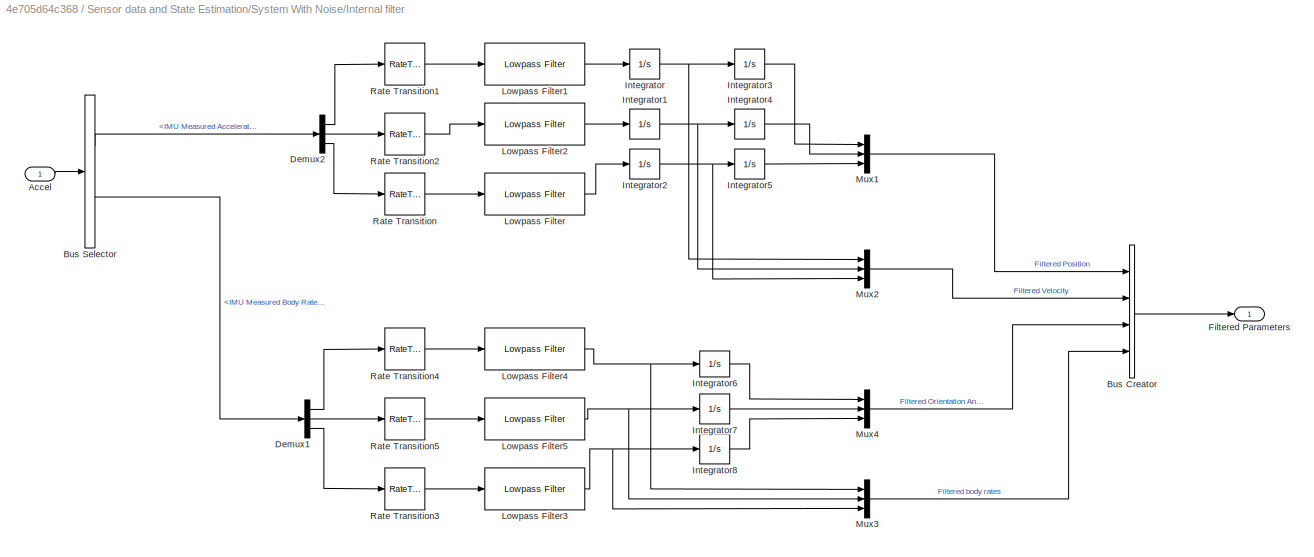
BLOCK [SubSystem] Sensor data and State Estimation/System With Noise/Internal filter
  Ports = [1, 1]
  RequestExecContextInheritance = off
BLOCK [Inport] Sensor data and State Estimation/System With Noise/Internal filter/Accel
BLOCK [BusCreator] Sensor data and State Estimation/System With Noise/Internal filter/Bus Creator
  DisplayOption = bar
  InheritFromInputs = on
  Inputs = 4
  Ports = [4, 1]
BLOCK [BusSelector] Sensor data and State Estimation/System With Noise/Internal filter/Bus Selector
  OutputSignals = IMU Measured Acceleration,IMU Measured Body Rates
  Ports = [1, 2]
BLOCK [Demux] Sensor data and State Estimation/System With Noise/Internal filter/Demux1
  Outputs = 3
  Ports = [1, 3]
BLOCK [Demux] Sensor data and State Estimation/System With Noise/Internal filter/Demux2
  Outputs = 3
  Ports = [1, 3]
BLOCK [Outport] Sensor data and State Estimation/System With Noise/Internal filter/Filtered Parameters
  VectorParamsAs1DForOutWhenUnconnected = off
BLOCK [Integrator] Sensor data and State Estimation/System With Noise/Internal filter/Integrator
  Ports = [1, 1]
BLOCK [Integrator] Sensor data and State Estimation/System With Noise/Internal filter/Integrator1
  Ports = [1, 1]
BLOCK [Integrator] Sensor data and State Estimation/System With Noise/Internal filter/Integrator2
  Ports = [1, 1]
BLOCK [Integrator] Sensor data and State Estimation/System With Noise/Internal filter/Integrator3
  Ports = [1, 1]
BLOCK [Integrator] Sensor data and State Estimation/System With Noise/Internal filter/Integrator4
  Ports = [1, 1]
BLOCK [Integrator] Sensor data and State Estimation/System With Noise/Internal filter/Integrator5
  Ports = [1, 1]
BLOCK [Integrator] Sensor data and State Estimation/System With Noise/Internal filter/Integrator6
  Ports = [1, 1]
BLOCK [Integrator] Sensor data and State Estimation/System With Noise/Internal filter/Integrator7
  Ports = [1, 1]
BLOCK [Integrator] Sensor data and State Estimation/System With Noise/Internal filter/Integrator8
  Ports = [1, 1]
BLOCK [Reference] Sensor data and State Estimation/System With Noise/Internal filter/Lowpass Filter  REF=dspfdesign/Lowpass Filter
  Ports = [1, 1]
  SourceBlock = dspfdesign/Lowpass Filter
  SourceProductBaseCode = DS
  SourceType = dsp.LowpassFilter
BLOCK [Reference] Sensor data and State Estimation/System With Noise/Internal filter/Lowpass Filter1  REF=dspfdesign/Lowpass Filter
  Ports = [1, 1]
  SourceBlock = dspfdesign/Lowpass Filter
  SourceProductBaseCode = DS
  SourceType = dsp.LowpassFilter
BLOCK [Reference] Sensor data and State Estimation/System With Noise/Internal filter/Lowpass Filter2  REF=dspfdesign/Lowpass Filter
  Ports = [1, 1]
  SourceBlock = dspfdesign/Lowpass Filter
  SourceProductBaseCode = DS
  SourceType = dsp.LowpassFilter
BLOCK [Reference] Sensor data and State Estimation/System With Noise/Internal filter/Lowpass Filter3  REF=dspfdesign/Lowpass Filter
  Ports = [1, 1]
  SourceBlock = dspfdesign/Lowpass Filter
  SourceProductBaseCode = DS
  SourceType = dsp.LowpassFilter
BLOCK [Reference] Sensor data and State Estimation/System With Noise/Internal filter/Lowpass Filter4  REF=dspfdesign/Lowpass Filter
  Ports = [1, 1]
  SourceBlock = dspfdesign/Lowpass Filter
  SourceProductBaseCode = DS
  SourceType = dsp.LowpassFilter
BLOCK [Reference] Sensor data and State Estimation/System With Noise/Internal filter/Lowpass Filter5  REF=dspfdesign/Lowpass Filter
  Ports = [1, 1]
  SourceBlock = dspfdesign/Lowpass Filter
  SourceProductBaseCode = DS
  SourceType = dsp.LowpassFilter
BLOCK [Mux] Sensor data and State Estimation/System With Noise/Internal filter/Mux1
  DisplayOption = bar
  Inputs = 3
  Ports = [3, 1]
BLOCK [Mux] Sensor data and State Estimation/System With Noise/Internal filter/Mux2
  DisplayOption = bar
  Inputs = 3
  Ports = [3, 1]
BLOCK [Mux] Sensor data and State Estimation/System With Noise/Internal filter/Mux3
  DisplayOption = bar
  Inputs = 3
  Ports = [3, 1]
BLOCK [Mux] Sensor data and State Estimation/System With Noise/Internal filter/Mux4
  DisplayOption = bar
  Inputs = 3
  Ports = [3, 1]
BLOCK [RateTransition] Sensor data and State Estimation/System With Noise/Internal filter/Rate Transition
  OutPortSampleTime = 0.01
BLOCK [RateTransition] Sensor data and State Estimation/System With Noise/Internal filter/Rate Transition1
  OutPortSampleTime = 0.01
BLOCK [RateTransition] Sensor data and State Estimation/System With Noise/Internal filter/Rate Transition2
  OutPortSampleTime = 0.01
BLOCK [RateTransition] Sensor data and State Estimation/System With Noise/Internal filter/Rate Transition3
  OutPortSampleTime = 0.01
BLOCK [RateTransition] Sensor data and State Estimation/System With Noise/Internal filter/Rate Transition4
  OutPortSampleTime = 0.01
BLOCK [RateTransition] Sensor data and State Estimation/System With Noise/Internal filter/Rate Transition5
  OutPortSampleTime = 0.01
BLOCK [SubSystem] Sensor data and State Estimation/System without Noise
  Ports = [1, 1]
  RequestExecContextInheritance = off
  VariantControl = b==1
BLOCK [Inport] Sensor data and State Estimation/System without Noise/AUV_Parameters
BLOCK [BusCreator] Sensor data and State Estimation/System without Noise/Bus Creator
  DisplayOption = bar
  InheritFromInputs = on
  Inputs = 2
  Ports = [2, 1]
BLOCK [BusSelector] Sensor data and State Estimation/System without Noise/Bus Selector
  OutputSignals = Position,Velocity
  Ports = [1, 2]
BLOCK [Outport] Sensor data and State Estimation/System without Noise/Filtered Parameters
  VectorParamsAs1DForOutWhenUnconnected = off
BLOCK [Gain] Sensor data and State Estimation/System without Noise/Gain
BLOCK [Gain] Sensor data and State Estimation/System without Noise/Gain1
BLOCK [SubSystem] Switch Parameters
  Ports = []
  RequestExecContextInheritance = off
BLOCK [Constant] Switch Parameters/Constant
  Value = a
BLOCK [Constant] Switch Parameters/Constant1
  Value = b
BLOCK [Constant] Switch Parameters/Constant2
  Value = c
BLOCK [Terminator] Switch Parameters/Terminator1
BLOCK [Terminator] Switch Parameters/Terminator2
BLOCK [Terminator] Switch Parameters/Terminator3
BLOCK [ToggleSwitchBlock] Toggle Switch
BLOCK [ToggleSwitchBlock] Toggle Switch1
BLOCK [ToggleSwitchBlock] Toggle Switch2
BLOCK [SubSystem] Translational Reference
  Ports = [0, 1]
  RequestExecContextInheritance = off
BLOCK [BusCreator] Translational Reference/Bus Creator
  DisplayOption = bar
  InheritFromInputs = on
  Inputs = 2
  Ports = [2, 1]
BLOCK [Constant] Translational Reference/Constant
  Value = -10
BLOCK [Constant] Translational Reference/Constant1
  Value = 0
BLOCK [Mux] Translational Reference/Mux
  DisplayOption = bar
  Inputs = 3
  Ports = [3, 1]
BLOCK [Mux] Translational Reference/Mux1
  DisplayOption = bar
  Inputs = 3
  Ports = [3, 1]
BLOCK [Outport] Translational Reference/Reference Parameters
  VectorParamsAs1DForOutWhenUnconnected = off
BLOCK [SubSystem] Translational Reference/Signal Builder
  ClipboardFcn = sigbuilder_block('clipboard');
  CloseFcn = sigbuilder_block('close');
  ContinueFcn = sigbuilder_block('continue');
  CopyFcn = sigbuilder_block('copy');
  DeleteFcn = sigbuilder_block('delete');
  LoadFcn = sigbuilder_block('load');
  MaskHideContents = on
  ModelCloseFcn = sigbuilder_block('modelClose');
  NameChangeFcn = sigbuilder_block('namechange');
  OpenFcn = sigbuilder_block('open',[49.5 -20.25 1204.5 394.5 ]);
  PauseFcn = sigbuilder_block('pause');
  Ports = [0, 1]
  PreSaveFcn = sigbuilder_block('preSave');
  RequestExecContextInheritance = off
  StartFcn = sigbuilder_block('start');
  StopFcn = sigbuilder_block('stop');
  Tag = STV Subsys
BLOCK [Demux] Translational Reference/Signal Builder/Demux
  DisplayOption = none
  Outputs = 1
  Ports = [1, 1]
  Tag = STV Demux
BLOCK [FromWorkspace] Translational Reference/Signal Builder/FromWs
  Tag = STV FromWs
  VariableName = tuvar
BLOCK [Outport] Translational Reference/Signal Builder/Signal 2
  Tag = STV Outport
  VectorParamsAs1DForOutWhenUnconnected = off
BLOCK [Step] Translational Reference/Step
  After = 0
  Before = 0.2
  SampleTime = 0
  Time = 30
BLOCK [Step] Translational Reference/Step1
  After = 5
  SampleTime = 0
  Time = 150
ANNOTATION (root): 3 T200 Thrusters + 2 T100 Thrusters 2 T200 to Move Forward/Backward 2 T100 to Move Sidewards 1 T200 to Move Up/Down Mass of AUV : 10 Kg Total Volume of Sub : 0.01 m^2 (Approximated to a cuboid)
ANNOTATION (root): Autonomous Underwater Vehicle Model
ANNOTATION Plant and Environment Model/Environmental Forces & Moments/Hydrodynamic Forces/Hydrodynamic Forces - Accurate: Source of Equations: Submarine Dynamic Modeling, by Dr Peter Ridley Julien Fontan and Dr Peter Corke Part: Hydrodynamic forces and moments
ANNOTATION Plant and Environment Model/Propulsion Forces & Moments/Input commands to Thrust/PWM Signals to Thrust : 3 T200 Thrusters + 2 T100 Thrusters 2 T200 to Move Forward/Backward 2 T100 to Move Sidewards 1 T200 to Move Up/Down
LINE  Translation Controller/Position Controller/Actual Parameters:1 ->  Translation Controller/Position Controller/Bus Selector:1
NET  Translation Controller/Position Controller/Bus Selector1:1 ->  Translation Controller/Position Controller/Demux1:1,  Translation Controller/Position Controller/Plot:1
NET  Translation Controller/Position Controller/Bus Selector:1 ->  Translation Controller/Position Controller/Demux:1,  Translation Controller/Position Controller/Plot:2
LINE  Translation Controller/Position Controller/Dead Zone1:1 ->  Translation Controller/Position Controller/Mux:2
LINE  Translation Controller/Position Controller/Dead Zone2:1 ->  Translation Controller/Position Controller/Mux:3
LINE  Translation Controller/Position Controller/Dead Zone4:1 ->  Translation Controller/Position Controller/Mux:1
LINE  Translation Controller/Position Controller/Demux1:1 ->  Translation Controller/Position Controller/Sum1:1
LINE  Translation Controller/Position Controller/Demux1:2 ->  Translation Controller/Position Controller/Sum2:1
LINE  Translation Controller/Position Controller/Demux1:3 ->  Translation Controller/Position Controller/Sum:1
LINE  Translation Controller/Position Controller/Demux:1 ->  Translation Controller/Position Controller/Sum1:2
LINE  Translation Controller/Position Controller/Demux:2 ->  Translation Controller/Position Controller/Sum2:2
LINE  Translation Controller/Position Controller/Demux:3 ->  Translation Controller/Position Controller/Sum:2
LINE  Translation Controller/Position Controller/Mux:1 ->  Translation Controller/Position Controller/Thrust Control:1
LINE  Translation Controller/Position Controller/PID Controller1:1 ->  Translation Controller/Position Controller/Dead Zone4:1
LINE  Translation Controller/Position Controller/PID Controller2:1 ->  Translation Controller/Position Controller/Dead Zone1:1
LINE  Translation Controller/Position Controller/PID Controller:1 ->  Translation Controller/Position Controller/Dead Zone2:1
LINE  Translation Controller/Position Controller/Plot/<Filtered Position>:1 ->  Translation Controller/Position Controller/Plot/Demux3:1
LINE  Translation Controller/Position Controller/Plot/<Reference Position>:1 ->  Translation Controller/Position Controller/Plot/Demux2:1
LINE  Translation Controller/Position Controller/Plot/Demux2:1 ->  Translation Controller/Position Controller/Plot/Mux1:1
LINE  Translation Controller/Position Controller/Plot/Demux2:2 ->  Translation Controller/Position Controller/Plot/Mux2:1
LINE  Translation Controller/Position Controller/Plot/Demux2:3 ->  Translation Controller/Position Controller/Plot/Mux3:1
LINE  Translation Controller/Position Controller/Plot/Demux3:1 ->  Translation Controller/Position Controller/Plot/Mux1:2
LINE  Translation Controller/Position Controller/Plot/Demux3:2 ->  Translation Controller/Position Controller/Plot/Mux2:2
LINE  Translation Controller/Position Controller/Plot/Demux3:3 ->  Translation Controller/Position Controller/Plot/Mux3:2
LINE  Translation Controller/Position Controller/Plot/Mux1:1 ->  Translation Controller/Position Controller/Plot/Scope:1
LINE  Translation Controller/Position Controller/Plot/Mux2:1 ->  Translation Controller/Position Controller/Plot/Scope:2
LINE  Translation Controller/Position Controller/Plot/Mux3:1 ->  Translation Controller/Position Controller/Plot/Scope:3
LINE  Translation Controller/Position Controller/Reference Parameters:1 ->  Translation Controller/Position Controller/Bus Selector1:1
LINE  Translation Controller/Position Controller/Sum1:1 ->  Translation Controller/Position Controller/PID Controller1:1
LINE  Translation Controller/Position Controller/Sum2:1 ->  Translation Controller/Position Controller/PID Controller2:1
LINE  Translation Controller/Position Controller/Sum:1 ->  Translation Controller/Position Controller/PID Controller:1
LINE  Translation Controller/Velocity Controller/Actual Parameters:1 ->  Translation Controller/Velocity Controller/Bus Selector1:1
NET  Translation Controller/Velocity Controller/Bus Selector1:1 ->  Translation Controller/Velocity Controller/Demux1:1,  Translation Controller/Velocity Controller/Plot:2
NET  Translation Controller/Velocity Controller/Bus Selector:1 ->  Translation Controller/Velocity Controller/Demux:1,  Translation Controller/Velocity Controller/Plot:1
LINE  Translation Controller/Velocity Controller/Dead Zone1:1 ->  Translation Controller/Velocity Controller/Mux:2
LINE  Translation Controller/Velocity Controller/Dead Zone2:1 ->  Translation Controller/Velocity Controller/Mux:3
LINE  Translation Controller/Velocity Controller/Dead Zone4:1 ->  Translation Controller/Velocity Controller/Mux:1
LINE  Translation Controller/Velocity Controller/Demux1:1 ->  Translation Controller/Velocity Controller/Sum1:2
LINE  Translation Controller/Velocity Controller/Demux1:2 ->  Translation Controller/Velocity Controller/Sum2:2
LINE  Translation Controller/Velocity Controller/Demux1:3 ->  Translation Controller/Velocity Controller/Sum:2
LINE  Translation Controller/Velocity Controller/Demux:1 ->  Translation Controller/Velocity Controller/Sum1:1
LINE  Translation Controller/Velocity Controller/Demux:2 ->  Translation Controller/Velocity Controller/Sum2:1
LINE  Translation Controller/Velocity Controller/Demux:3 ->  Translation Controller/Velocity Controller/Sum:1
LINE  Translation Controller/Velocity Controller/Mux:1 ->  Translation Controller/Velocity Controller/Thrust Control:1
LINE  Translation Controller/Velocity Controller/PID Controller3:1 ->  Translation Controller/Velocity Controller/Dead Zone2:1
LINE  Translation Controller/Velocity Controller/PID Controller4:1 ->  Translation Controller/Velocity Controller/Dead Zone4:1
LINE  Translation Controller/Velocity Controller/PID Controller5:1 ->  Translation Controller/Velocity Controller/Dead Zone1:1
LINE  Translation Controller/Velocity Controller/Plot/<Filtered Velocity>:1 ->  Translation Controller/Velocity Controller/Plot/Demux3:1
LINE  Translation Controller/Velocity Controller/Plot/<Reference Velocity>:1 ->  Translation Controller/Velocity Controller/Plot/Demux2:1
LINE  Translation Controller/Velocity Controller/Plot/Demux2:1 ->  Translation Controller/Velocity Controller/Plot/Mux1:1
LINE  Translation Controller/Velocity Controller/Plot/Demux2:2 ->  Translation Controller/Velocity Controller/Plot/Mux2:1
LINE  Translation Controller/Velocity Controller/Plot/Demux2:3 ->  Translation Controller/Velocity Controller/Plot/Mux3:1
LINE  Translation Controller/Velocity Controller/Plot/Demux3:1 ->  Translation Controller/Velocity Controller/Plot/Mux1:2
LINE  Translation Controller/Velocity Controller/Plot/Demux3:2 ->  Translation Controller/Velocity Controller/Plot/Mux2:2
LINE  Translation Controller/Velocity Controller/Plot/Demux3:3 ->  Translation Controller/Velocity Controller/Plot/Mux3:2
LINE  Translation Controller/Velocity Controller/Plot/Mux1:1 ->  Translation Controller/Velocity Controller/Plot/Scope:1
LINE  Translation Controller/Velocity Controller/Plot/Mux2:1 ->  Translation Controller/Velocity Controller/Plot/Scope:2
LINE  Translation Controller/Velocity Controller/Plot/Mux3:1 ->  Translation Controller/Velocity Controller/Plot/Scope:3
LINE  Translation Controller/Velocity Controller/Reference Parameters:1 ->  Translation Controller/Velocity Controller/Bus Selector:1
LINE  Translation Controller/Velocity Controller/Sum1:1 ->  Translation Controller/Velocity Controller/PID Controller4:1
LINE  Translation Controller/Velocity Controller/Sum2:1 ->  Translation Controller/Velocity Controller/PID Controller5:1
LINE  Translation Controller/Velocity Controller/Sum:1 ->  Translation Controller/Velocity Controller/PID Controller3:1
LINE  Translation Controller:1 -> Plant and Environment Model:1
LINE Plant and Environment Model/Combine Forces and Moments/Bus Selector1:1 -> Plant and Environment Model/Combine Forces and Moments/Saturation1:1
LINE Plant and Environment Model/Combine Forces and Moments/Bus Selector1:2 -> Plant and Environment Model/Combine Forces and Moments/Sum:3
LINE Plant and Environment Model/Combine Forces and Moments/Bus Selector1:3 -> Plant and Environment Model/Combine Forces and Moments/Sum1:2
LINE Plant and Environment Model/Combine Forces and Moments/Bus Selector:1 -> Plant and Environment Model/Combine Forces and Moments/Sum:1
LINE Plant and Environment Model/Combine Forces and Moments/Bus Selector:2 -> Plant and Environment Model/Combine Forces and Moments/Sum1:1
LINE Plant and Environment Model/Combine Forces and Moments/Hydrodynamic Force:1 -> Plant and Environment Model/Combine Forces and Moments/Bus Selector1:1
LINE Plant and Environment Model/Combine Forces and Moments/Propulsion Parameters:1 -> Plant and Environment Model/Combine Forces and Moments/Bus Selector:1
LINE Plant and Environment Model/Combine Forces and Moments/Saturation1:1 -> Plant and Environment Model/Combine Forces and Moments/Sum:2
LINE Plant and Environment Model/Combine Forces and Moments/Saturation:1 -> Plant and Environment Model/Combine Forces and Moments/Total Force:1
LINE Plant and Environment Model/Combine Forces and Moments/Sum1:1 -> Plant and Environment Model/Combine Forces and Moments/Total Moment:1
LINE Plant and Environment Model/Combine Forces and Moments/Sum:1 -> Plant and Environment Model/Combine Forces and Moments/Saturation:1
LINE Plant and Environment Model/Combine Forces and Moments:1 -> Plant and Environment Model/Dynamics solver:1
LINE Plant and Environment Model/Combine Forces and Moments:2 -> Plant and Environment Model/Dynamics solver:2
LINE Plant and Environment Model/Dynamics solver/6DOF (Euler Angles):1 -> Plant and Environment Model/Dynamics solver/Post-Processing:1
LINE Plant and Environment Model/Dynamics solver/6DOF (Euler Angles):2 -> Plant and Environment Model/Dynamics solver/Post-Processing:2
LINE Plant and Environment Model/Dynamics solver/6DOF (Euler Angles):3 -> Plant and Environment Model/Dynamics solver/Post-Processing:3
LINE Plant and Environment Model/Dynamics solver/6DOF (Euler Angles):4 -> Plant and Environment Model/Dynamics solver/Terminator:1
NET Plant and Environment Model/Dynamics solver/6DOF (Euler Angles):5 -> Plant and Environment Model/Dynamics solver/Bus Creator1:3, Plant and Environment Model/Dynamics solver/Post-Processing:7
LINE Plant and Environment Model/Dynamics solver/6DOF (Euler Angles):6 -> Plant and Environment Model/Dynamics solver/Post-Processing:4
LINE Plant and Environment Model/Dynamics solver/6DOF (Euler Angles):7 -> Plant and Environment Model/Dynamics solver/Post-Processing:5
LINE Plant and Environment Model/Dynamics solver/6DOF (Euler Angles):8 -> Plant and Environment Model/Dynamics solver/Post-Processing:6
LINE Plant and Environment Model/Dynamics solver/6DOF (Euler Angles):9 -> Plant and Environment Model/Dynamics solver/Terminator1:1
LINE Plant and Environment Model/Dynamics solver/Bus Creator1:1 -> Plant and Environment Model/Dynamics solver/Internal Parameters:1
LINE Plant and Environment Model/Dynamics solver/Bus Creator:1 -> Plant and Environment Model/Dynamics solver/AUV Data:1
LINE Plant and Environment Model/Dynamics solver/Post-Processing/3D Rotate /Gain:1 -> Plant and Environment Model/Dynamics solver/Post-Processing/3D Rotate /Rotation Angles to Direction Cosine Matrix:1
LINE Plant and Environment Model/Dynamics solver/Post-Processing/3D Rotate /Matrix Multiply:1 -> Plant and Environment Model/Dynamics solver/Post-Processing/3D Rotate /Transformed :1
LINE Plant and Environment Model/Dynamics solver/Post-Processing/3D Rotate /Points:1 -> Plant and Environment Model/Dynamics solver/Post-Processing/3D Rotate /Matrix Multiply:1
LINE Plant and Environment Model/Dynamics solver/Post-Processing/3D Rotate /Roll, Pitch, Yaw:1 -> Plant and Environment Model/Dynamics solver/Post-Processing/3D Rotate /Gain:1
LINE Plant and Environment Model/Dynamics solver/Post-Processing/3D Rotate /Rotation Angles to Direction Cosine Matrix:1 -> Plant and Environment Model/Dynamics solver/Post-Processing/3D Rotate /Transpose:1
LINE Plant and Environment Model/Dynamics solver/Post-Processing/3D Rotate /Transpose:1 -> Plant and Environment Model/Dynamics solver/Post-Processing/3D Rotate /Matrix Multiply:2
LINE Plant and Environment Model/Dynamics solver/Post-Processing/3D Rotate :1 -> Plant and Environment Model/Dynamics solver/Post-Processing/MATLAB Function:2
LINE Plant and Environment Model/Dynamics solver/Post-Processing/3D Rotate Vel/Gain:1 -> Plant and Environment Model/Dynamics solver/Post-Processing/3D Rotate Vel/Rotation Angles to Direction Cosine Matrix:1
LINE Plant and Environment Model/Dynamics solver/Post-Processing/3D Rotate Vel/Matrix Multiply:1 -> Plant and Environment Model/Dynamics solver/Post-Processing/3D Rotate Vel/Transformed_velocity :1
LINE Plant and Environment Model/Dynamics solver/Post-Processing/3D Rotate Vel/Roll, Pitch, Yaw:1 -> Plant and Environment Model/Dynamics solver/Post-Processing/3D Rotate Vel/Gain:1
LINE Plant and Environment Model/Dynamics solver/Post-Processing/3D Rotate Vel/Rotation Angles to Direction Cosine Matrix:1 -> Plant and Environment Model/Dynamics solver/Post-Processing/3D Rotate Vel/Transpose:1
LINE Plant and Environment Model/Dynamics solver/Post-Processing/3D Rotate Vel/Transpose:1 -> Plant and Environment Model/Dynamics solver/Post-Processing/3D Rotate Vel/Matrix Multiply:1
LINE Plant and Environment Model/Dynamics solver/Post-Processing/3D Rotate Vel/Velocity:1 -> Plant and Environment Model/Dynamics solver/Post-Processing/3D Rotate Vel/Matrix Multiply:2
LINE Plant and Environment Model/Dynamics solver/Post-Processing/3D Rotate Vel:1 -> Plant and Environment Model/Dynamics solver/Post-Processing/Mux1:5
LINE Plant and Environment Model/Dynamics solver/Post-Processing/Body Acceleration:1 -> Plant and Environment Model/Dynamics solver/Post-Processing/Mux1:1
LINE Plant and Environment Model/Dynamics solver/Post-Processing/Body angular accelerations:1 -> Plant and Environment Model/Dynamics solver/Post-Processing/Mux1:3
LINE Plant and Environment Model/Dynamics solver/Post-Processing/Body angular rates:1 -> Plant and Environment Model/Dynamics solver/Post-Processing/Mux1:2
LINE Plant and Environment Model/Dynamics solver/Post-Processing/Body velocity:1 -> Plant and Environment Model/Dynamics solver/Post-Processing/Incidence, Sideslip, & Airspeed:1
LINE Plant and Environment Model/Dynamics solver/Post-Processing/CG1:1 -> Plant and Environment Model/Dynamics solver/Post-Processing/Mux3:3
NET Plant and Environment Model/Dynamics solver/Post-Processing/CG:1 -> Plant and Environment Model/Dynamics solver/Post-Processing/Mux2:1, Plant and Environment Model/Dynamics solver/Post-Processing/Mux2:2, Plant and Environment Model/Dynamics solver/Post-Processing/Mux2:3, Plant and Environment Model/Dynamics solver/Post-Processing/Mux3:1, Plant and Environment Model/Dynamics solver/Post-Processing/Mux3:2
LINE Plant and Environment Model/Dynamics solver/Post-Processing/Constant:1 -> Plant and Environment Model/Dynamics solver/Post-Processing/3D Rotate :2
LINE Plant and Environment Model/Dynamics solver/Post-Processing/Incidence, Sideslip, & Airspeed:1 -> Plant and Environment Model/Dynamics solver/Post-Processing/Mux:1
LINE Plant and Environment Model/Dynamics solver/Post-Processing/Incidence, Sideslip, & Airspeed:2 -> Plant and Environment Model/Dynamics solver/Post-Processing/Mux:2
LINE Plant and Environment Model/Dynamics solver/Post-Processing/Incidence, Sideslip, & Airspeed:3 -> Plant and Environment Model/Dynamics solver/Post-Processing/Terminator1:1
LINE Plant and Environment Model/Dynamics solver/Post-Processing/Mux1:1 -> Plant and Environment Model/Dynamics solver/Post-Processing/IMU Data:1
LINE Plant and Environment Model/Dynamics solver/Post-Processing/Mux2:1 -> Plant and Environment Model/Dynamics solver/Post-Processing/Mux1:4
LINE Plant and Environment Model/Dynamics solver/Post-Processing/Mux3:1 -> Plant and Environment Model/Dynamics solver/Post-Processing/3D Rotate Vel:2
LINE Plant and Environment Model/Dynamics solver/Post-Processing/Mux:1 -> Plant and Environment Model/Dynamics solver/Post-Processing/AOA, Side slip:1
NET Plant and Environment Model/Dynamics solver/Post-Processing/Orientation angles:1 -> Plant and Environment Model/Dynamics solver/Post-Processing/3D Rotate :1, Plant and Environment Model/Dynamics solver/Post-Processing/3D Rotate Vel:1, Plant and Environment Model/Dynamics solver/Post-Processing/Orientation Angles:1
NET Plant and Environment Model/Dynamics solver/Post-Processing/Position (Reference Frame):1 -> Plant and Environment Model/Dynamics solver/Post-Processing/ Position:1, Plant and Environment Model/Dynamics solver/Post-Processing/MATLAB Function:1, Plant and Environment Model/Dynamics solver/Post-Processing/To Workspace:1
LINE Plant and Environment Model/Dynamics solver/Post-Processing/Velocity (Reference Frame):1 -> Plant and Environment Model/Dynamics solver/Post-Processing/Velocity:1
LINE Plant and Environment Model/Dynamics solver/Post-Processing:1 -> Plant and Environment Model/Dynamics solver/Bus Creator:1
LINE Plant and Environment Model/Dynamics solver/Post-Processing:2 -> Plant and Environment Model/Dynamics solver/Bus Creator:2
LINE Plant and Environment Model/Dynamics solver/Post-Processing:3 -> Plant and Environment Model/Dynamics solver/Bus Creator1:2
NET Plant and Environment Model/Dynamics solver/Post-Processing:4 -> Plant and Environment Model/Dynamics solver/Bus Creator1:1, Plant and Environment Model/Dynamics solver/Bus Creator:3
LINE Plant and Environment Model/Dynamics solver/Post-Processing:5 -> Plant and Environment Model/Dynamics solver/Bus Creator:4
LINE Plant and Environment Model/Dynamics solver/Total Force:1 -> Plant and Environment Model/Dynamics solver/6DOF (Euler Angles):1
LINE Plant and Environment Model/Dynamics solver/Total Moment:1 -> Plant and Environment Model/Dynamics solver/6DOF (Euler Angles):2
LINE Plant and Environment Model/Dynamics solver:1 -> Plant and Environment Model/Outport:1
LINE Plant and Environment Model/Dynamics solver:2 -> Plant and Environment Model/Environmental Forces & Moments:1
LINE Plant and Environment Model/Environmental Forces & Moments/AOA_SideSlip:1 -> Plant and Environment Model/Environmental Forces & Moments/Bus Selector:1
LINE Plant and Environment Model/Environmental Forces & Moments/Bus Creator:1 -> Plant and Environment Model/Environmental Forces & Moments/Environment Parameters:1
LINE Plant and Environment Model/Environmental Forces & Moments/Bus Selector:1 -> Plant and Environment Model/Environmental Forces & Moments/Hydrodynamic Forces:1
LINE Plant and Environment Model/Environmental Forces & Moments/Bus Selector:2 -> Plant and Environment Model/Environmental Forces & Moments/Hydrodynamic Forces:2
LINE Plant and Environment Model/Environmental Forces & Moments/Bus Selector:3 -> Plant and Environment Model/Environmental Forces & Moments/Hydrostatic Forces:1
NET Plant and Environment Model/Environmental Forces & Moments/Hydrodynamic Forces/Hydrodynamic Forces - Accurate/AOA, Side Slip:1 -> Plant and Environment Model/Environmental Forces & Moments/Hydrodynamic Forces/Hydrodynamic Forces - Accurate/Force Exerted due to Drag (Body Axis):2, Plant and Environment Model/Environmental Forces & Moments/Hydrodynamic Forces/Hydrodynamic Forces - Accurate/Force Exerted due to Lift (Body Axis):2
LINE Plant and Environment Model/Environmental Forces & Moments/Hydrodynamic Forces/Hydrodynamic Forces - Accurate/Force Exerted due to Drag (Body Axis)/AOA and Side Slip:1 -> Plant and Environment Model/Environmental Forces & Moments/Hydrodynamic Forces/Hydrodynamic Forces - Accurate/Force Exerted due to Drag (Body Axis)/Demux1:1
NET Plant and Environment Model/Environmental Forces & Moments/Hydrodynamic Forces/Hydrodynamic Forces - Accurate/Force Exerted due to Drag (Body Axis)/Constant:1 -> Plant and Environment Model/Environmental Forces & Moments/Hydrodynamic Forces/Hydrodynamic Forces - Accurate/Force Exerted due to Drag (Body Axis)/Multiply1:2, Plant and Environment Model/Environmental Forces & Moments/Hydrodynamic Forces/Hydrodynamic Forces - Accurate/Force Exerted due to Drag (Body Axis)/Multiply2:2, Plant and Environment Model/Environmental Forces & Moments/Hydrodynamic Forces/Hydrodynamic Forces - Accurate/Force Exerted due to Drag (Body Axis)/Multiply3:3, Plant and Environment Model/Environmental Forces & Moments/Hydrodynamic Forces/Hydrodynamic Forces - Accurate/Force Exerted due to Drag (Body Axis)/Multiply:1
LINE Plant and Environment Model/Environmental Forces & Moments/Hydrodynamic Forces/Hydrodynamic Forces - Accurate/Force Exerted due to Drag (Body Axis)/Cos1:1 -> Plant and Environment Model/Environmental Forces & Moments/Hydrodynamic Forces/Hydrodynamic Forces - Accurate/Force Exerted due to Drag (Body Axis)/Multiply1:4
LINE Plant and Environment Model/Environmental Forces & Moments/Hydrodynamic Forces/Hydrodynamic Forces - Accurate/Force Exerted due to Drag (Body Axis)/Cos2:1 -> Plant and Environment Model/Environmental Forces & Moments/Hydrodynamic Forces/Hydrodynamic Forces - Accurate/Force Exerted due to Drag (Body Axis)/Multiply2:4
LINE Plant and Environment Model/Environmental Forces & Moments/Hydrodynamic Forces/Hydrodynamic Forces - Accurate/Force Exerted due to Drag (Body Axis)/Cos3:1 -> Plant and Environment Model/Environmental Forces & Moments/Hydrodynamic Forces/Hydrodynamic Forces - Accurate/Force Exerted due to Drag (Body Axis)/Multiply3:4
LINE Plant and Environment Model/Environmental Forces & Moments/Hydrodynamic Forces/Hydrodynamic Forces - Accurate/Force Exerted due to Drag (Body Axis)/Cos:1 -> Plant and Environment Model/Environmental Forces & Moments/Hydrodynamic Forces/Hydrodynamic Forces - Accurate/Force Exerted due to Drag (Body Axis)/Multiply:4
NET Plant and Environment Model/Environmental Forces & Moments/Hydrodynamic Forces/Hydrodynamic Forces - Accurate/Force Exerted due to Drag (Body Axis)/Demux1:1 -> Plant and Environment Model/Environmental Forces & Moments/Hydrodynamic Forces/Hydrodynamic Forces - Accurate/Force Exerted due to Drag (Body Axis)/Cos2:1, Plant and Environment Model/Environmental Forces & Moments/Hydrodynamic Forces/Hydrodynamic Forces - Accurate/Force Exerted due to Drag (Body Axis)/Cos:1, Plant and Environment Model/Environmental Forces & Moments/Hydrodynamic Forces/Hydrodynamic Forces - Accurate/Force Exerted due to Drag (Body Axis)/MATLAB Function:1
NET Plant and Environment Model/Environmental Forces & Moments/Hydrodynamic Forces/Hydrodynamic Forces - Accurate/Force Exerted due to Drag (Body Axis)/Demux1:2 -> Plant and Environment Model/Environmental Forces & Moments/Hydrodynamic Forces/Hydrodynamic Forces - Accurate/Force Exerted due to Drag (Body Axis)/Cos1:1, Plant and Environment Model/Environmental Forces & Moments/Hydrodynamic Forces/Hydrodynamic Forces - Accurate/Force Exerted due to Drag (Body Axis)/Cos3:1
LINE Plant and Environment Model/Environmental Forces & Moments/Hydrodynamic Forces/Hydrodynamic Forces - Accurate/Force Exerted due to Drag (Body Axis)/Demux:1 -> Plant and Environment Model/Environmental Forces & Moments/Hydrodynamic Forces/Hydrodynamic Forces - Accurate/Force Exerted due to Drag (Body Axis)/Square:1
LINE Plant and Environment Model/Environmental Forces & Moments/Hydrodynamic Forces/Hydrodynamic Forces - Accurate/Force Exerted due to Drag (Body Axis)/Demux:2 -> Plant and Environment Model/Environmental Forces & Moments/Hydrodynamic Forces/Hydrodynamic Forces - Accurate/Force Exerted due to Drag (Body Axis)/Square1:1
LINE Plant and Environment Model/Environmental Forces & Moments/Hydrodynamic Forces/Hydrodynamic Forces - Accurate/Force Exerted due to Drag (Body Axis)/Demux:3 -> Plant and Environment Model/Environmental Forces & Moments/Hydrodynamic Forces/Hydrodynamic Forces - Accurate/Force Exerted due to Drag (Body Axis)/Square2:1
LINE Plant and Environment Model/Environmental Forces & Moments/Hydrodynamic Forces/Hydrodynamic Forces - Accurate/Force Exerted due to Drag (Body Axis)/MATLAB Function:1 -> Plant and Environment Model/Environmental Forces & Moments/Hydrodynamic Forces/Hydrodynamic Forces - Accurate/Force Exerted due to Drag (Body Axis)/Saturation:1
LINE Plant and Environment Model/Environmental Forces & Moments/Hydrodynamic Forces/Hydrodynamic Forces - Accurate/Force Exerted due to Drag (Body Axis)/Marine Velocities in Body Axis:1 -> Plant and Environment Model/Environmental Forces & Moments/Hydrodynamic Forces/Hydrodynamic Forces - Accurate/Force Exerted due to Drag (Body Axis)/Demux:1
LINE Plant and Environment Model/Environmental Forces & Moments/Hydrodynamic Forces/Hydrodynamic Forces - Accurate/Force Exerted due to Drag (Body Axis)/Multiply1:1 -> Plant and Environment Model/Environmental Forces & Moments/Hydrodynamic Forces/Hydrodynamic Forces - Accurate/Force Exerted due to Drag (Body Axis)/Mux:2
LINE Plant and Environment Model/Environmental Forces & Moments/Hydrodynamic Forces/Hydrodynamic Forces - Accurate/Force Exerted due to Drag (Body Axis)/Multiply2:1 -> Plant and Environment Model/Environmental Forces & Moments/Hydrodynamic Forces/Hydrodynamic Forces - Accurate/Force Exerted due to Drag (Body Axis)/Mux:3
LINE Plant and Environment Model/Environmental Forces & Moments/Hydrodynamic Forces/Hydrodynamic Forces - Accurate/Force Exerted due to Drag (Body Axis)/Multiply3:1 -> Plant and Environment Model/Environmental Forces & Moments/Hydrodynamic Forces/Hydrodynamic Forces - Accurate/Force Exerted due to Drag (Body Axis)/Sum2:2
LINE Plant and Environment Model/Environmental Forces & Moments/Hydrodynamic Forces/Hydrodynamic Forces - Accurate/Force Exerted due to Drag (Body Axis)/Multiply:1 -> Plant and Environment Model/Environmental Forces & Moments/Hydrodynamic Forces/Hydrodynamic Forces - Accurate/Force Exerted due to Drag (Body Axis)/Sum2:1
LINE Plant and Environment Model/Environmental Forces & Moments/Hydrodynamic Forces/Hydrodynamic Forces - Accurate/Force Exerted due to Drag (Body Axis)/Mux:1 -> Plant and Environment Model/Environmental Forces & Moments/Hydrodynamic Forces/Hydrodynamic Forces - Accurate/Force Exerted due to Drag (Body Axis)/Drag Forces in Body Axis:1
NET Plant and Environment Model/Environmental Forces & Moments/Hydrodynamic Forces/Hydrodynamic Forces - Accurate/Force Exerted due to Drag (Body Axis)/Saturation:1 -> Plant and Environment Model/Environmental Forces & Moments/Hydrodynamic Forces/Hydrodynamic Forces - Accurate/Force Exerted due to Drag (Body Axis)/Multiply1:3, Plant and Environment Model/Environmental Forces & Moments/Hydrodynamic Forces/Hydrodynamic Forces - Accurate/Force Exerted due to Drag (Body Axis)/Multiply2:3, Plant and Environment Model/Environmental Forces & Moments/Hydrodynamic Forces/Hydrodynamic Forces - Accurate/Force Exerted due to Drag (Body Axis)/Multiply3:2, Plant and Environment Model/Environmental Forces & Moments/Hydrodynamic Forces/Hydrodynamic Forces - Accurate/Force Exerted due to Drag (Body Axis)/Multiply:2
LINE Plant and Environment Model/Environmental Forces & Moments/Hydrodynamic Forces/Hydrodynamic Forces - Accurate/Force Exerted due to Drag (Body Axis)/Square1:1 -> Plant and Environment Model/Environmental Forces & Moments/Hydrodynamic Forces/Hydrodynamic Forces - Accurate/Force Exerted due to Drag (Body Axis)/Sum1:2
LINE Plant and Environment Model/Environmental Forces & Moments/Hydrodynamic Forces/Hydrodynamic Forces - Accurate/Force Exerted due to Drag (Body Axis)/Square2:1 -> Plant and Environment Model/Environmental Forces & Moments/Hydrodynamic Forces/Hydrodynamic Forces - Accurate/Force Exerted due to Drag (Body Axis)/Sum:2
NET Plant and Environment Model/Environmental Forces & Moments/Hydrodynamic Forces/Hydrodynamic Forces - Accurate/Force Exerted due to Drag (Body Axis)/Square:1 -> Plant and Environment Model/Environmental Forces & Moments/Hydrodynamic Forces/Hydrodynamic Forces - Accurate/Force Exerted due to Drag (Body Axis)/Sum1:1, Plant and Environment Model/Environmental Forces & Moments/Hydrodynamic Forces/Hydrodynamic Forces - Accurate/Force Exerted due to Drag (Body Axis)/Sum:1
NET Plant and Environment Model/Environmental Forces & Moments/Hydrodynamic Forces/Hydrodynamic Forces - Accurate/Force Exerted due to Drag (Body Axis)/Sum1:1 -> Plant and Environment Model/Environmental Forces & Moments/Hydrodynamic Forces/Hydrodynamic Forces - Accurate/Force Exerted due to Drag (Body Axis)/Multiply1:1, Plant and Environment Model/Environmental Forces & Moments/Hydrodynamic Forces/Hydrodynamic Forces - Accurate/Force Exerted due to Drag (Body Axis)/Multiply3:1
LINE Plant and Environment Model/Environmental Forces & Moments/Hydrodynamic Forces/Hydrodynamic Forces - Accurate/Force Exerted due to Drag (Body Axis)/Sum2:1 -> Plant and Environment Model/Environmental Forces & Moments/Hydrodynamic Forces/Hydrodynamic Forces - Accurate/Force Exerted due to Drag (Body Axis)/Mux:1
NET Plant and Environment Model/Environmental Forces & Moments/Hydrodynamic Forces/Hydrodynamic Forces - Accurate/Force Exerted due to Drag (Body Axis)/Sum:1 -> Plant and Environment Model/Environmental Forces & Moments/Hydrodynamic Forces/Hydrodynamic Forces - Accurate/Force Exerted due to Drag (Body Axis)/Multiply2:1, Plant and Environment Model/Environmental Forces & Moments/Hydrodynamic Forces/Hydrodynamic Forces - Accurate/Force Exerted due to Drag (Body Axis)/Multiply:3
LINE Plant and Environment Model/Environmental Forces & Moments/Hydrodynamic Forces/Hydrodynamic Forces - Accurate/Force Exerted due to Drag (Body Axis):1 -> Plant and Environment Model/Environmental Forces & Moments/Hydrodynamic Forces/Hydrodynamic Forces - Accurate/Sum:1
LINE Plant and Environment Model/Environmental Forces & Moments/Hydrodynamic Forces/Hydrodynamic Forces - Accurate/Force Exerted due to Lift (Body Axis)/AOA and Side Slip:1 -> Plant and Environment Model/Environmental Forces & Moments/Hydrodynamic Forces/Hydrodynamic Forces - Accurate/Force Exerted due to Lift (Body Axis)/Demux1:1
LINE Plant and Environment Model/Environmental Forces & Moments/Hydrodynamic Forces/Hydrodynamic Forces - Accurate/Force Exerted due to Lift (Body Axis)/Constant1:1 -> Plant and Environment Model/Environmental Forces & Moments/Hydrodynamic Forces/Hydrodynamic Forces - Accurate/Force Exerted due to Lift (Body Axis)/Mux:1
LINE Plant and Environment Model/Environmental Forces & Moments/Hydrodynamic Forces/Hydrodynamic Forces - Accurate/Force Exerted due to Lift (Body Axis)/Constant2:1 -> Plant and Environment Model/Environmental Forces & Moments/Hydrodynamic Forces/Hydrodynamic Forces - Accurate/Force Exerted due to Lift (Body Axis)/Multiply1:4
NET Plant and Environment Model/Environmental Forces & Moments/Hydrodynamic Forces/Hydrodynamic Forces - Accurate/Force Exerted due to Lift (Body Axis)/Constant:1 -> Plant and Environment Model/Environmental Forces & Moments/Hydrodynamic Forces/Hydrodynamic Forces - Accurate/Force Exerted due to Lift (Body Axis)/Multiply1:2, Plant and Environment Model/Environmental Forces & Moments/Hydrodynamic Forces/Hydrodynamic Forces - Accurate/Force Exerted due to Lift (Body Axis)/Multiply2:2
LINE Plant and Environment Model/Environmental Forces & Moments/Hydrodynamic Forces/Hydrodynamic Forces - Accurate/Force Exerted due to Lift (Body Axis)/Cos:1 -> Plant and Environment Model/Environmental Forces & Moments/Hydrodynamic Forces/Hydrodynamic Forces - Accurate/Force Exerted due to Lift (Body Axis)/Multiply2:4
NET Plant and Environment Model/Environmental Forces & Moments/Hydrodynamic Forces/Hydrodynamic Forces - Accurate/Force Exerted due to Lift (Body Axis)/Demux1:1 -> Plant and Environment Model/Environmental Forces & Moments/Hydrodynamic Forces/Hydrodynamic Forces - Accurate/Force Exerted due to Lift (Body Axis)/Cos:1, Plant and Environment Model/Environmental Forces & Moments/Hydrodynamic Forces/Hydrodynamic Forces - Accurate/Force Exerted due to Lift (Body Axis)/MATLAB Function:1
LINE Plant and Environment Model/Environmental Forces & Moments/Hydrodynamic Forces/Hydrodynamic Forces - Accurate/Force Exerted due to Lift (Body Axis)/Demux1:2 -> Plant and Environment Model/Environmental Forces & Moments/Hydrodynamic Forces/Hydrodynamic Forces - Accurate/Force Exerted due to Lift (Body Axis)/Terminator2:1
LINE Plant and Environment Model/Environmental Forces & Moments/Hydrodynamic Forces/Hydrodynamic Forces - Accurate/Force Exerted due to Lift (Body Axis)/Demux:1 -> Plant and Environment Model/Environmental Forces & Moments/Hydrodynamic Forces/Hydrodynamic Forces - Accurate/Force Exerted due to Lift (Body Axis)/Square:1
LINE Plant and Environment Model/Environmental Forces & Moments/Hydrodynamic Forces/Hydrodynamic Forces - Accurate/Force Exerted due to Lift (Body Axis)/Demux:2 -> Plant and Environment Model/Environmental Forces & Moments/Hydrodynamic Forces/Hydrodynamic Forces - Accurate/Force Exerted due to Lift (Body Axis)/Square1:1
LINE Plant and Environment Model/Environmental Forces & Moments/Hydrodynamic Forces/Hydrodynamic Forces - Accurate/Force Exerted due to Lift (Body Axis)/Demux:3 -> Plant and Environment Model/Environmental Forces & Moments/Hydrodynamic Forces/Hydrodynamic Forces - Accurate/Force Exerted due to Lift (Body Axis)/Square2:1
LINE Plant and Environment Model/Environmental Forces & Moments/Hydrodynamic Forces/Hydrodynamic Forces - Accurate/Force Exerted due to Lift (Body Axis)/MATLAB Function:1 -> Plant and Environment Model/Environmental Forces & Moments/Hydrodynamic Forces/Hydrodynamic Forces - Accurate/Force Exerted due to Lift (Body Axis)/Saturation:1
LINE Plant and Environment Model/Environmental Forces & Moments/Hydrodynamic Forces/Hydrodynamic Forces - Accurate/Force Exerted due to Lift (Body Axis)/Marine Velocities in Body Axis:1 -> Plant and Environment Model/Environmental Forces & Moments/Hydrodynamic Forces/Hydrodynamic Forces - Accurate/Force Exerted due to Lift (Body Axis)/Demux:1
LINE Plant and Environment Model/Environmental Forces & Moments/Hydrodynamic Forces/Hydrodynamic Forces - Accurate/Force Exerted due to Lift (Body Axis)/Multiply1:1 -> Plant and Environment Model/Environmental Forces & Moments/Hydrodynamic Forces/Hydrodynamic Forces - Accurate/Force Exerted due to Lift (Body Axis)/Mux:2
LINE Plant and Environment Model/Environmental Forces & Moments/Hydrodynamic Forces/Hydrodynamic Forces - Accurate/Force Exerted due to Lift (Body Axis)/Multiply2:1 -> Plant and Environment Model/Environmental Forces & Moments/Hydrodynamic Forces/Hydrodynamic Forces - Accurate/Force Exerted due to Lift (Body Axis)/Mux:3
LINE Plant and Environment Model/Environmental Forces & Moments/Hydrodynamic Forces/Hydrodynamic Forces - Accurate/Force Exerted due to Lift (Body Axis)/Mux:1 -> Plant and Environment Model/Environmental Forces & Moments/Hydrodynamic Forces/Hydrodynamic Forces - Accurate/Force Exerted due to Lift (Body Axis)/Lift Forces in Body Axis:1
NET Plant and Environment Model/Environmental Forces & Moments/Hydrodynamic Forces/Hydrodynamic Forces - Accurate/Force Exerted due to Lift (Body Axis)/Saturation:1 -> Plant and Environment Model/Environmental Forces & Moments/Hydrodynamic Forces/Hydrodynamic Forces - Accurate/Force Exerted due to Lift (Body Axis)/Multiply1:3, Plant and Environment Model/Environmental Forces & Moments/Hydrodynamic Forces/Hydrodynamic Forces - Accurate/Force Exerted due to Lift (Body Axis)/Multiply2:3
LINE Plant and Environment Model/Environmental Forces & Moments/Hydrodynamic Forces/Hydrodynamic Forces - Accurate/Force Exerted due to Lift (Body Axis)/Square1:1 -> Plant and Environment Model/Environmental Forces & Moments/Hydrodynamic Forces/Hydrodynamic Forces - Accurate/Force Exerted due to Lift (Body Axis)/Terminator1:1
LINE Plant and Environment Model/Environmental Forces & Moments/Hydrodynamic Forces/Hydrodynamic Forces - Accurate/Force Exerted due to Lift (Body Axis)/Square2:1 -> Plant and Environment Model/Environmental Forces & Moments/Hydrodynamic Forces/Hydrodynamic Forces - Accurate/Force Exerted due to Lift (Body Axis)/Sum:2
LINE Plant and Environment Model/Environmental Forces & Moments/Hydrodynamic Forces/Hydrodynamic Forces - Accurate/Force Exerted due to Lift (Body Axis)/Square:1 -> Plant and Environment Model/Environmental Forces & Moments/Hydrodynamic Forces/Hydrodynamic Forces - Accurate/Force Exerted due to Lift (Body Axis)/Sum:1
NET Plant and Environment Model/Environmental Forces & Moments/Hydrodynamic Forces/Hydrodynamic Forces - Accurate/Force Exerted due to Lift (Body Axis)/Sum:1 -> Plant and Environment Model/Environmental Forces & Moments/Hydrodynamic Forces/Hydrodynamic Forces - Accurate/Force Exerted due to Lift (Body Axis)/Multiply1:1, Plant and Environment Model/Environmental Forces & Moments/Hydrodynamic Forces/Hydrodynamic Forces - Accurate/Force Exerted due to Lift (Body Axis)/Multiply2:1
LINE Plant and Environment Model/Environmental Forces & Moments/Hydrodynamic Forces/Hydrodynamic Forces - Accurate/Force Exerted due to Lift (Body Axis):1 -> Plant and Environment Model/Environmental Forces & Moments/Hydrodynamic Forces/Hydrodynamic Forces - Accurate/Sum:2
NET Plant and Environment Model/Environmental Forces & Moments/Hydrodynamic Forces/Hydrodynamic Forces - Accurate/Submarine Velocity (Body Axis) :1 -> Plant and Environment Model/Environmental Forces & Moments/Hydrodynamic Forces/Hydrodynamic Forces - Accurate/Force Exerted due to Drag (Body Axis):1, Plant and Environment Model/Environmental Forces & Moments/Hydrodynamic Forces/Hydrodynamic Forces - Accurate/Force Exerted due to Lift (Body Axis):1
LINE Plant and Environment Model/Environmental Forces & Moments/Hydrodynamic Forces/Hydrodynamic Forces - Accurate/Sum:1 -> Plant and Environment Model/Environmental Forces & Moments/Hydrodynamic Forces/Hydrodynamic Forces - Accurate/Force due to Lift, Drag:1
NET Plant and Environment Model/Environmental Forces & Moments/Hydrodynamic Forces/Hydrodynamic Forces - Basic/AOA, Side Slip:1 -> Plant and Environment Model/Environmental Forces & Moments/Hydrodynamic Forces/Hydrodynamic Forces - Basic/Force Exerted due to Drag (Body Axis):2, Plant and Environment Model/Environmental Forces & Moments/Hydrodynamic Forces/Hydrodynamic Forces - Basic/Force Exerted due to Lift (Body Axis):2
LINE Plant and Environment Model/Environmental Forces & Moments/Hydrodynamic Forces/Hydrodynamic Forces - Basic/Force Exerted due to Drag (Body Axis)/AOA and Side Slip:1 -> Plant and Environment Model/Environmental Forces & Moments/Hydrodynamic Forces/Hydrodynamic Forces - Basic/Force Exerted due to Drag (Body Axis)/Demux1:1
LINE Plant and Environment Model/Environmental Forces & Moments/Hydrodynamic Forces/Hydrodynamic Forces - Basic/Force Exerted due to Drag (Body Axis)/Constant1:1 -> Plant and Environment Model/Environmental Forces & Moments/Hydrodynamic Forces/Hydrodynamic Forces - Basic/Force Exerted due to Drag (Body Axis)/Multiply:3
LINE Plant and Environment Model/Environmental Forces & Moments/Hydrodynamic Forces/Hydrodynamic Forces - Basic/Force Exerted due to Drag (Body Axis)/Constant:1 -> Plant and Environment Model/Environmental Forces & Moments/Hydrodynamic Forces/Hydrodynamic Forces - Basic/Force Exerted due to Drag (Body Axis)/Multiply:2
LINE Plant and Environment Model/Environmental Forces & Moments/Hydrodynamic Forces/Hydrodynamic Forces - Basic/Force Exerted due to Drag (Body Axis)/Demux1:1 -> Plant and Environment Model/Environmental Forces & Moments/Hydrodynamic Forces/Hydrodynamic Forces - Basic/Force Exerted due to Drag (Body Axis)/Terminator:1
LINE Plant and Environment Model/Environmental Forces & Moments/Hydrodynamic Forces/Hydrodynamic Forces - Basic/Force Exerted due to Drag (Body Axis)/Demux1:2 -> Plant and Environment Model/Environmental Forces & Moments/Hydrodynamic Forces/Hydrodynamic Forces - Basic/Force Exerted due to Drag (Body Axis)/Terminator1:1
LINE Plant and Environment Model/Environmental Forces & Moments/Hydrodynamic Forces/Hydrodynamic Forces - Basic/Force Exerted due to Drag (Body Axis)/Demux:1 -> Plant and Environment Model/Environmental Forces & Moments/Hydrodynamic Forces/Hydrodynamic Forces - Basic/Force Exerted due to Drag (Body Axis)/Square:1
LINE Plant and Environment Model/Environmental Forces & Moments/Hydrodynamic Forces/Hydrodynamic Forces - Basic/Force Exerted due to Drag (Body Axis)/Demux:2 -> Plant and Environment Model/Environmental Forces & Moments/Hydrodynamic Forces/Hydrodynamic Forces - Basic/Force Exerted due to Drag (Body Axis)/Square1:1
LINE Plant and Environment Model/Environmental Forces & Moments/Hydrodynamic Forces/Hydrodynamic Forces - Basic/Force Exerted due to Drag (Body Axis)/Demux:3 -> Plant and Environment Model/Environmental Forces & Moments/Hydrodynamic Forces/Hydrodynamic Forces - Basic/Force Exerted due to Drag (Body Axis)/Square2:1
LINE Plant and Environment Model/Environmental Forces & Moments/Hydrodynamic Forces/Hydrodynamic Forces - Basic/Force Exerted due to Drag (Body Axis)/Marine Velocities in Body Axis:1 -> Plant and Environment Model/Environmental Forces & Moments/Hydrodynamic Forces/Hydrodynamic Forces - Basic/Force Exerted due to Drag (Body Axis)/Demux:1
LINE Plant and Environment Model/Environmental Forces & Moments/Hydrodynamic Forces/Hydrodynamic Forces - Basic/Force Exerted due to Drag (Body Axis)/Multiply:1 -> Plant and Environment Model/Environmental Forces & Moments/Hydrodynamic Forces/Hydrodynamic Forces - Basic/Force Exerted due to Drag (Body Axis)/Mux:1
LINE Plant and Environment Model/Environmental Forces & Moments/Hydrodynamic Forces/Hydrodynamic Forces - Basic/Force Exerted due to Drag (Body Axis)/Mux:1 -> Plant and Environment Model/Environmental Forces & Moments/Hydrodynamic Forces/Hydrodynamic Forces - Basic/Force Exerted due to Drag (Body Axis)/Drag Forces in Body Axis:1
LINE Plant and Environment Model/Environmental Forces & Moments/Hydrodynamic Forces/Hydrodynamic Forces - Basic/Force Exerted due to Drag (Body Axis)/Square1:1 -> Plant and Environment Model/Environmental Forces & Moments/Hydrodynamic Forces/Hydrodynamic Forces - Basic/Force Exerted due to Drag (Body Axis)/Sum:1
LINE Plant and Environment Model/Environmental Forces & Moments/Hydrodynamic Forces/Hydrodynamic Forces - Basic/Force Exerted due to Drag (Body Axis)/Square2:1 -> Plant and Environment Model/Environmental Forces & Moments/Hydrodynamic Forces/Hydrodynamic Forces - Basic/Force Exerted due to Drag (Body Axis)/Sum:3
LINE Plant and Environment Model/Environmental Forces & Moments/Hydrodynamic Forces/Hydrodynamic Forces - Basic/Force Exerted due to Drag (Body Axis)/Square:1 -> Plant and Environment Model/Environmental Forces & Moments/Hydrodynamic Forces/Hydrodynamic Forces - Basic/Force Exerted due to Drag (Body Axis)/Sum:2
LINE Plant and Environment Model/Environmental Forces & Moments/Hydrodynamic Forces/Hydrodynamic Forces - Basic/Force Exerted due to Drag (Body Axis)/Sum:1 -> Plant and Environment Model/Environmental Forces & Moments/Hydrodynamic Forces/Hydrodynamic Forces - Basic/Force Exerted due to Drag (Body Axis)/Multiply:1
NET Plant and Environment Model/Environmental Forces & Moments/Hydrodynamic Forces/Hydrodynamic Forces - Basic/Force Exerted due to Drag (Body Axis)/Zero:1 -> Plant and Environment Model/Environmental Forces & Moments/Hydrodynamic Forces/Hydrodynamic Forces - Basic/Force Exerted due to Drag (Body Axis)/Mux:2, Plant and Environment Model/Environmental Forces & Moments/Hydrodynamic Forces/Hydrodynamic Forces - Basic/Force Exerted due to Drag (Body Axis)/Mux:3
LINE Plant and Environment Model/Environmental Forces & Moments/Hydrodynamic Forces/Hydrodynamic Forces - Basic/Force Exerted due to Drag (Body Axis):1 -> Plant and Environment Model/Environmental Forces & Moments/Hydrodynamic Forces/Hydrodynamic Forces - Basic/Sum:1
LINE Plant and Environment Model/Environmental Forces & Moments/Hydrodynamic Forces/Hydrodynamic Forces - Basic/Force Exerted due to Lift (Body Axis)/AOA and Side Slip:1 -> Plant and Environment Model/Environmental Forces & Moments/Hydrodynamic Forces/Hydrodynamic Forces - Basic/Force Exerted due to Lift (Body Axis)/Demux1:1
NET Plant and Environment Model/Environmental Forces & Moments/Hydrodynamic Forces/Hydrodynamic Forces - Basic/Force Exerted due to Lift (Body Axis)/Constant1:1 -> Plant and Environment Model/Environmental Forces & Moments/Hydrodynamic Forces/Hydrodynamic Forces - Basic/Force Exerted due to Lift (Body Axis)/Mux:1, Plant and Environment Model/Environmental Forces & Moments/Hydrodynamic Forces/Hydrodynamic Forces - Basic/Force Exerted due to Lift (Body Axis)/Mux:3
LINE Plant and Environment Model/Environmental Forces & Moments/Hydrodynamic Forces/Hydrodynamic Forces - Basic/Force Exerted due to Lift (Body Axis)/Constant2:1 -> Plant and Environment Model/Environmental Forces & Moments/Hydrodynamic Forces/Hydrodynamic Forces - Basic/Force Exerted due to Lift (Body Axis)/Multiply:3
LINE Plant and Environment Model/Environmental Forces & Moments/Hydrodynamic Forces/Hydrodynamic Forces - Basic/Force Exerted due to Lift (Body Axis)/Constant:1 -> Plant and Environment Model/Environmental Forces & Moments/Hydrodynamic Forces/Hydrodynamic Forces - Basic/Force Exerted due to Lift (Body Axis)/Multiply:2
LINE Plant and Environment Model/Environmental Forces & Moments/Hydrodynamic Forces/Hydrodynamic Forces - Basic/Force Exerted due to Lift (Body Axis)/Demux1:1 -> Plant and Environment Model/Environmental Forces & Moments/Hydrodynamic Forces/Hydrodynamic Forces - Basic/Force Exerted due to Lift (Body Axis)/Terminator:1
LINE Plant and Environment Model/Environmental Forces & Moments/Hydrodynamic Forces/Hydrodynamic Forces - Basic/Force Exerted due to Lift (Body Axis)/Demux1:2 -> Plant and Environment Model/Environmental Forces & Moments/Hydrodynamic Forces/Hydrodynamic Forces - Basic/Force Exerted due to Lift (Body Axis)/Terminator1:1
LINE Plant and Environment Model/Environmental Forces & Moments/Hydrodynamic Forces/Hydrodynamic Forces - Basic/Force Exerted due to Lift (Body Axis)/Demux:1 -> Plant and Environment Model/Environmental Forces & Moments/Hydrodynamic Forces/Hydrodynamic Forces - Basic/Force Exerted due to Lift (Body Axis)/Square:1
LINE Plant and Environment Model/Environmental Forces & Moments/Hydrodynamic Forces/Hydrodynamic Forces - Basic/Force Exerted due to Lift (Body Axis)/Demux:2 -> Plant and Environment Model/Environmental Forces & Moments/Hydrodynamic Forces/Hydrodynamic Forces - Basic/Force Exerted due to Lift (Body Axis)/Square1:1
LINE Plant and Environment Model/Environmental Forces & Moments/Hydrodynamic Forces/Hydrodynamic Forces - Basic/Force Exerted due to Lift (Body Axis)/Demux:3 -> Plant and Environment Model/Environmental Forces & Moments/Hydrodynamic Forces/Hydrodynamic Forces - Basic/Force Exerted due to Lift (Body Axis)/Square2:1
LINE Plant and Environment Model/Environmental Forces & Moments/Hydrodynamic Forces/Hydrodynamic Forces - Basic/Force Exerted due to Lift (Body Axis)/Marine Velocities in Body Axis:1 -> Plant and Environment Model/Environmental Forces & Moments/Hydrodynamic Forces/Hydrodynamic Forces - Basic/Force Exerted due to Lift (Body Axis)/Demux:1
LINE Plant and Environment Model/Environmental Forces & Moments/Hydrodynamic Forces/Hydrodynamic Forces - Basic/Force Exerted due to Lift (Body Axis)/Multiply:1 -> Plant and Environment Model/Environmental Forces & Moments/Hydrodynamic Forces/Hydrodynamic Forces - Basic/Force Exerted due to Lift (Body Axis)/Mux:2
LINE Plant and Environment Model/Environmental Forces & Moments/Hydrodynamic Forces/Hydrodynamic Forces - Basic/Force Exerted due to Lift (Body Axis)/Mux:1 -> Plant and Environment Model/Environmental Forces & Moments/Hydrodynamic Forces/Hydrodynamic Forces - Basic/Force Exerted due to Lift (Body Axis)/Lift Forces in Body Axis:1
LINE Plant and Environment Model/Environmental Forces & Moments/Hydrodynamic Forces/Hydrodynamic Forces - Basic/Force Exerted due to Lift (Body Axis)/Square1:1 -> Plant and Environment Model/Environmental Forces & Moments/Hydrodynamic Forces/Hydrodynamic Forces - Basic/Force Exerted due to Lift (Body Axis)/Sum:2
LINE Plant and Environment Model/Environmental Forces & Moments/Hydrodynamic Forces/Hydrodynamic Forces - Basic/Force Exerted due to Lift (Body Axis)/Square2:1 -> Plant and Environment Model/Environmental Forces & Moments/Hydrodynamic Forces/Hydrodynamic Forces - Basic/Force Exerted due to Lift (Body Axis)/Sum:3
LINE Plant and Environment Model/Environmental Forces & Moments/Hydrodynamic Forces/Hydrodynamic Forces - Basic/Force Exerted due to Lift (Body Axis)/Square:1 -> Plant and Environment Model/Environmental Forces & Moments/Hydrodynamic Forces/Hydrodynamic Forces - Basic/Force Exerted due to Lift (Body Axis)/Sum:1
LINE Plant and Environment Model/Environmental Forces & Moments/Hydrodynamic Forces/Hydrodynamic Forces - Basic/Force Exerted due to Lift (Body Axis)/Sum:1 -> Plant and Environment Model/Environmental Forces & Moments/Hydrodynamic Forces/Hydrodynamic Forces - Basic/Force Exerted due to Lift (Body Axis)/Multiply:1
LINE Plant and Environment Model/Environmental Forces & Moments/Hydrodynamic Forces/Hydrodynamic Forces - Basic/Force Exerted due to Lift (Body Axis):1 -> Plant and Environment Model/Environmental Forces & Moments/Hydrodynamic Forces/Hydrodynamic Forces - Basic/Sum:2
NET Plant and Environment Model/Environmental Forces & Moments/Hydrodynamic Forces/Hydrodynamic Forces - Basic/Submarine Velocity (Body Axis) :1 -> Plant and Environment Model/Environmental Forces & Moments/Hydrodynamic Forces/Hydrodynamic Forces - Basic/Force Exerted due to Drag (Body Axis):1, Plant and Environment Model/Environmental Forces & Moments/Hydrodynamic Forces/Hydrodynamic Forces - Basic/Force Exerted due to Lift (Body Axis):1
LINE Plant and Environment Model/Environmental Forces & Moments/Hydrodynamic Forces/Hydrodynamic Forces - Basic/Sum:1 -> Plant and Environment Model/Environmental Forces & Moments/Hydrodynamic Forces/Hydrodynamic Forces - Basic/Force due to Lift, Drag:1
LINE Plant and Environment Model/Environmental Forces & Moments/Hydrodynamic Forces:1 -> Plant and Environment Model/Environmental Forces & Moments/Bus Creator:1
LINE Plant and Environment Model/Environmental Forces & Moments/Hydrostatic Forces/Constant:1 -> Plant and Environment Model/Environmental Forces & Moments/Hydrostatic Forces/Environment Model:1
LINE Plant and Environment Model/Environmental Forces & Moments/Hydrostatic Forces/Environment Model/3D Rotate Drag/Force:1 -> Plant and Environment Model/Environmental Forces & Moments/Hydrostatic Forces/Environment Model/3D Rotate Drag/Matrix Multiply:2
LINE Plant and Environment Model/Environmental Forces & Moments/Hydrostatic Forces/Environment Model/3D Rotate Drag/Gain:1 -> Plant and Environment Model/Environmental Forces & Moments/Hydrostatic Forces/Environment Model/3D Rotate Drag/Rotation Angles to Direction Cosine Matrix:1
LINE Plant and Environment Model/Environmental Forces & Moments/Hydrostatic Forces/Environment Model/3D Rotate Drag/Matrix Multiply:1 -> Plant and Environment Model/Environmental Forces & Moments/Hydrostatic Forces/Environment Model/3D Rotate Drag/Transformed_Force :1
LINE Plant and Environment Model/Environmental Forces & Moments/Hydrostatic Forces/Environment Model/3D Rotate Drag/Roll, Pitch, Yaw:1 -> Plant and Environment Model/Environmental Forces & Moments/Hydrostatic Forces/Environment Model/3D Rotate Drag/Gain:1
LINE Plant and Environment Model/Environmental Forces & Moments/Hydrostatic Forces/Environment Model/3D Rotate Drag/Rotation Angles to Direction Cosine Matrix:1 -> Plant and Environment Model/Environmental Forces & Moments/Hydrostatic Forces/Environment Model/3D Rotate Drag/Transpose:1
LINE Plant and Environment Model/Environmental Forces & Moments/Hydrostatic Forces/Environment Model/3D Rotate Drag/Transpose:1 -> Plant and Environment Model/Environmental Forces & Moments/Hydrostatic Forces/Environment Model/3D Rotate Drag/Matrix Multiply:1
LINE Plant and Environment Model/Environmental Forces & Moments/Hydrostatic Forces/Environment Model/3D Rotate Drag:1 -> Plant and Environment Model/Environmental Forces & Moments/Hydrostatic Forces/Environment Model/Forces due to Weight and Buoyancy:1
NET Plant and Environment Model/Environmental Forces & Moments/Hydrostatic Forces/Environment Model/Constant1:1 -> Plant and Environment Model/Environmental Forces & Moments/Hydrostatic Forces/Environment Model/Mux1:1, Plant and Environment Model/Environmental Forces & Moments/Hydrostatic Forces/Environment Model/Mux1:2, Plant and Environment Model/Environmental Forces & Moments/Hydrostatic Forces/Environment Model/Mux:1, Plant and Environment Model/Environmental Forces & Moments/Hydrostatic Forces/Environment Model/Mux:2
LINE Plant and Environment Model/Environmental Forces & Moments/Hydrostatic Forces/Environment Model/Constant2:1 -> Plant and Environment Model/Environmental Forces & Moments/Hydrostatic Forces/Environment Model/Mux1:3
LINE Plant and Environment Model/Environmental Forces & Moments/Hydrostatic Forces/Environment Model/Constant3:1 -> Plant and Environment Model/Environmental Forces & Moments/Hydrostatic Forces/Environment Model/Cross Product:1
LINE Plant and Environment Model/Environmental Forces & Moments/Hydrostatic Forces/Environment Model/Constant:1 -> Plant and Environment Model/Environmental Forces & Moments/Hydrostatic Forces/Environment Model/Multiply:1
LINE Plant and Environment Model/Environmental Forces & Moments/Hydrostatic Forces/Environment Model/Cross Product:1 -> Plant and Environment Model/Environmental Forces & Moments/Hydrostatic Forces/Environment Model/Moment due to Weight and Buoyancy:1
LINE Plant and Environment Model/Environmental Forces & Moments/Hydrostatic Forces/Environment Model/Fraction submerged :1 -> Plant and Environment Model/Environmental Forces & Moments/Hydrostatic Forces/Environment Model/Multiply:2
LINE Plant and Environment Model/Environmental Forces & Moments/Hydrostatic Forces/Environment Model/Multiply:1 -> Plant and Environment Model/Environmental Forces & Moments/Hydrostatic Forces/Environment Model/Mux:3
NET Plant and Environment Model/Environmental Forces & Moments/Hydrostatic Forces/Environment Model/Mux1:1 -> Plant and Environment Model/Environmental Forces & Moments/Hydrostatic Forces/Environment Model/Cross Product:2, Plant and Environment Model/Environmental Forces & Moments/Hydrostatic Forces/Environment Model/Sum:1
LINE Plant and Environment Model/Environmental Forces & Moments/Hydrostatic Forces/Environment Model/Mux:1 -> Plant and Environment Model/Environmental Forces & Moments/Hydrostatic Forces/Environment Model/Sum:2
LINE Plant and Environment Model/Environmental Forces & Moments/Hydrostatic Forces/Environment Model/Orientation Angles:1 -> Plant and Environment Model/Environmental Forces & Moments/Hydrostatic Forces/Environment Model/3D Rotate Drag:2
LINE Plant and Environment Model/Environmental Forces & Moments/Hydrostatic Forces/Environment Model/Sum:1 -> Plant and Environment Model/Environmental Forces & Moments/Hydrostatic Forces/Environment Model/3D Rotate Drag:1
LINE Plant and Environment Model/Environmental Forces & Moments/Hydrostatic Forces/Environment Model:1 -> Plant and Environment Model/Environmental Forces & Moments/Hydrostatic Forces/Hydrostatic Force:1
LINE Plant and Environment Model/Environmental Forces & Moments/Hydrostatic Forces/Environment Model:2 -> Plant and Environment Model/Environmental Forces & Moments/Hydrostatic Forces/Hydrostatic Moment:1
LINE Plant and Environment Model/Environmental Forces & Moments/Hydrostatic Forces/In1:1 -> Plant and Environment Model/Environmental Forces & Moments/Hydrostatic Forces/Environment Model:2
LINE Plant and Environment Model/Environmental Forces & Moments/Hydrostatic Forces:1 -> Plant and Environment Model/Environmental Forces & Moments/Bus Creator:2
LINE Plant and Environment Model/Environmental Forces & Moments/Hydrostatic Forces:2 -> Plant and Environment Model/Environmental Forces & Moments/Bus Creator:3
LINE Plant and Environment Model/Environmental Forces & Moments:1 -> Plant and Environment Model/Combine Forces and Moments:2
LINE Plant and Environment Model/Propulsion Forces & Moments/Bus Creator:1 -> Plant and Environment Model/Propulsion Forces & Moments/Propulsion Parameters:1
LINE Plant and Environment Model/Propulsion Forces & Moments/Force and moments due to Thrust/Thrust Inputs:1 -> Plant and Environment Model/Propulsion Forces & Moments/Force and moments due to Thrust/Thrust to Propulsion :1
LINE Plant and Environment Model/Propulsion Forces & Moments/Force and moments due to Thrust/Thrust to Propulsion /Demux:1 -> Plant and Environment Model/Propulsion Forces & Moments/Force and moments due to Thrust/Thrust to Propulsion /Moment computation:1
LINE Plant and Environment Model/Propulsion Forces & Moments/Force and moments due to Thrust/Thrust to Propulsion /Demux:2 -> Plant and Environment Model/Propulsion Forces & Moments/Force and moments due to Thrust/Thrust to Propulsion /Moment computation:2
LINE Plant and Environment Model/Propulsion Forces & Moments/Force and moments due to Thrust/Thrust to Propulsion /Demux:3 -> Plant and Environment Model/Propulsion Forces & Moments/Force and moments due to Thrust/Thrust to Propulsion /Moment computation:3
LINE Plant and Environment Model/Propulsion Forces & Moments/Force and moments due to Thrust/Thrust to Propulsion /Demux:4 -> Plant and Environment Model/Propulsion Forces & Moments/Force and moments due to Thrust/Thrust to Propulsion /Moment computation:4
LINE Plant and Environment Model/Propulsion Forces & Moments/Force and moments due to Thrust/Thrust to Propulsion /Demux:5 -> Plant and Environment Model/Propulsion Forces & Moments/Force and moments due to Thrust/Thrust to Propulsion /Moment computation:5
LINE Plant and Environment Model/Propulsion Forces & Moments/Force and moments due to Thrust/Thrust to Propulsion /Moment computation/Moment Px1/Constant:1 -> Plant and Environment Model/Propulsion Forces & Moments/Force and moments due to Thrust/Thrust to Propulsion /Moment computation/Moment Px1/Cross Product:1
LINE Plant and Environment Model/Propulsion Forces & Moments/Force and moments due to Thrust/Thrust to Propulsion /Moment computation/Moment Px1/Cross Product:1 -> Plant and Environment Model/Propulsion Forces & Moments/Force and moments due to Thrust/Thrust to Propulsion /Moment computation/Moment Px1/Moment:1
LINE Plant and Environment Model/Propulsion Forces & Moments/Force and moments due to Thrust/Thrust to Propulsion /Moment computation/Moment Px1/Thrust:1 -> Plant and Environment Model/Propulsion Forces & Moments/Force and moments due to Thrust/Thrust to Propulsion /Moment computation/Moment Px1/Cross Product:2
LINE Plant and Environment Model/Propulsion Forces & Moments/Force and moments due to Thrust/Thrust to Propulsion /Moment computation/Moment Px1:1 -> Plant and Environment Model/Propulsion Forces & Moments/Force and moments due to Thrust/Thrust to Propulsion /Moment computation/Sum1:1
LINE Plant and Environment Model/Propulsion Forces & Moments/Force and moments due to Thrust/Thrust to Propulsion /Moment computation/Moment Px2/Constant:1 -> Plant and Environment Model/Propulsion Forces & Moments/Force and moments due to Thrust/Thrust to Propulsion /Moment computation/Moment Px2/Cross Product:1
LINE Plant and Environment Model/Propulsion Forces & Moments/Force and moments due to Thrust/Thrust to Propulsion /Moment computation/Moment Px2/Cross Product:1 -> Plant and Environment Model/Propulsion Forces & Moments/Force and moments due to Thrust/Thrust to Propulsion /Moment computation/Moment Px2/Moment:1
LINE Plant and Environment Model/Propulsion Forces & Moments/Force and moments due to Thrust/Thrust to Propulsion /Moment computation/Moment Px2/Thrust:1 -> Plant and Environment Model/Propulsion Forces & Moments/Force and moments due to Thrust/Thrust to Propulsion /Moment computation/Moment Px2/Cross Product:2
LINE Plant and Environment Model/Propulsion Forces & Moments/Force and moments due to Thrust/Thrust to Propulsion /Moment computation/Moment Px2:1 -> Plant and Environment Model/Propulsion Forces & Moments/Force and moments due to Thrust/Thrust to Propulsion /Moment computation/Sum1:2
LINE Plant and Environment Model/Propulsion Forces & Moments/Force and moments due to Thrust/Thrust to Propulsion /Moment computation/Moment Py1/Constant:1 -> Plant and Environment Model/Propulsion Forces & Moments/Force and moments due to Thrust/Thrust to Propulsion /Moment computation/Moment Py1/Cross Product:1
LINE Plant and Environment Model/Propulsion Forces & Moments/Force and moments due to Thrust/Thrust to Propulsion /Moment computation/Moment Py1/Cross Product:1 -> Plant and Environment Model/Propulsion Forces & Moments/Force and moments due to Thrust/Thrust to Propulsion /Moment computation/Moment Py1/Moment:1
LINE Plant and Environment Model/Propulsion Forces & Moments/Force and moments due to Thrust/Thrust to Propulsion /Moment computation/Moment Py1/Thrust:1 -> Plant and Environment Model/Propulsion Forces & Moments/Force and moments due to Thrust/Thrust to Propulsion /Moment computation/Moment Py1/Cross Product:2
LINE Plant and Environment Model/Propulsion Forces & Moments/Force and moments due to Thrust/Thrust to Propulsion /Moment computation/Moment Py1:1 -> Plant and Environment Model/Propulsion Forces & Moments/Force and moments due to Thrust/Thrust to Propulsion /Moment computation/Sum1:3
LINE Plant and Environment Model/Propulsion Forces & Moments/Force and moments due to Thrust/Thrust to Propulsion /Moment computation/Moment Py2/Constant:1 -> Plant and Environment Model/Propulsion Forces & Moments/Force and moments due to Thrust/Thrust to Propulsion /Moment computation/Moment Py2/Cross Product:1
LINE Plant and Environment Model/Propulsion Forces & Moments/Force and moments due to Thrust/Thrust to Propulsion /Moment computation/Moment Py2/Cross Product:1 -> Plant and Environment Model/Propulsion Forces & Moments/Force and moments due to Thrust/Thrust to Propulsion /Moment computation/Moment Py2/Moment:1
LINE Plant and Environment Model/Propulsion Forces & Moments/Force and moments due to Thrust/Thrust to Propulsion /Moment computation/Moment Py2/Thrust:1 -> Plant and Environment Model/Propulsion Forces & Moments/Force and moments due to Thrust/Thrust to Propulsion /Moment computation/Moment Py2/Cross Product:2
LINE Plant and Environment Model/Propulsion Forces & Moments/Force and moments due to Thrust/Thrust to Propulsion /Moment computation/Moment Py2:1 -> Plant and Environment Model/Propulsion Forces & Moments/Force and moments due to Thrust/Thrust to Propulsion /Moment computation/Sum1:4
LINE Plant and Environment Model/Propulsion Forces & Moments/Force and moments due to Thrust/Thrust to Propulsion /Moment computation/Moment Pz/Constant:1 -> Plant and Environment Model/Propulsion Forces & Moments/Force and moments due to Thrust/Thrust to Propulsion /Moment computation/Moment Pz/Cross Product:1
LINE Plant and Environment Model/Propulsion Forces & Moments/Force and moments due to Thrust/Thrust to Propulsion /Moment computation/Moment Pz/Cross Product:1 -> Plant and Environment Model/Propulsion Forces & Moments/Force and moments due to Thrust/Thrust to Propulsion /Moment computation/Moment Pz/Moment:1
LINE Plant and Environment Model/Propulsion Forces & Moments/Force and moments due to Thrust/Thrust to Propulsion /Moment computation/Moment Pz/Thrust:1 -> Plant and Environment Model/Propulsion Forces & Moments/Force and moments due to Thrust/Thrust to Propulsion /Moment computation/Moment Pz/Cross Product:2
LINE Plant and Environment Model/Propulsion Forces & Moments/Force and moments due to Thrust/Thrust to Propulsion /Moment computation/Moment Pz:1 -> Plant and Environment Model/Propulsion Forces & Moments/Force and moments due to Thrust/Thrust to Propulsion /Moment computation/Sum1:5
LINE Plant and Environment Model/Propulsion Forces & Moments/Force and moments due to Thrust/Thrust to Propulsion /Moment computation/Px1:1 -> Plant and Environment Model/Propulsion Forces & Moments/Force and moments due to Thrust/Thrust to Propulsion /Moment computation/Moment Px1:1
LINE Plant and Environment Model/Propulsion Forces & Moments/Force and moments due to Thrust/Thrust to Propulsion /Moment computation/Px2:1 -> Plant and Environment Model/Propulsion Forces & Moments/Force and moments due to Thrust/Thrust to Propulsion /Moment computation/Moment Px2:1
LINE Plant and Environment Model/Propulsion Forces & Moments/Force and moments due to Thrust/Thrust to Propulsion /Moment computation/Py1:1 -> Plant and Environment Model/Propulsion Forces & Moments/Force and moments due to Thrust/Thrust to Propulsion /Moment computation/Moment Py1:1
LINE Plant and Environment Model/Propulsion Forces & Moments/Force and moments due to Thrust/Thrust to Propulsion /Moment computation/Py2:1 -> Plant and Environment Model/Propulsion Forces & Moments/Force and moments due to Thrust/Thrust to Propulsion /Moment computation/Moment Py2:1
LINE Plant and Environment Model/Propulsion Forces & Moments/Force and moments due to Thrust/Thrust to Propulsion /Moment computation/Pz:1 -> Plant and Environment Model/Propulsion Forces & Moments/Force and moments due to Thrust/Thrust to Propulsion /Moment computation/Moment Pz:1
LINE Plant and Environment Model/Propulsion Forces & Moments/Force and moments due to Thrust/Thrust to Propulsion /Moment computation/Sum1:1 -> Plant and Environment Model/Propulsion Forces & Moments/Force and moments due to Thrust/Thrust to Propulsion /Moment computation/Moment:1
LINE Plant and Environment Model/Propulsion Forces & Moments/Force and moments due to Thrust/Thrust to Propulsion /Moment computation:1 -> Plant and Environment Model/Propulsion Forces & Moments/Force and moments due to Thrust/Thrust to Propulsion /Propulsion Moment:1
LINE Plant and Environment Model/Propulsion Forces & Moments/Force and moments due to Thrust/Thrust to Propulsion /Sum:1 -> Plant and Environment Model/Propulsion Forces & Moments/Force and moments due to Thrust/Thrust to Propulsion /Propulsion Force:1
NET Plant and Environment Model/Propulsion Forces & Moments/Force and moments due to Thrust/Thrust to Propulsion /Thrust Inputs:1 -> Plant and Environment Model/Propulsion Forces & Moments/Force and moments due to Thrust/Thrust to Propulsion /Demux:1, Plant and Environment Model/Propulsion Forces & Moments/Force and moments due to Thrust/Thrust to Propulsion /Thrust Transformation:1
LINE Plant and Environment Model/Propulsion Forces & Moments/Force and moments due to Thrust/Thrust to Propulsion /Thrust Transformation/Demux1:1 -> Plant and Environment Model/Propulsion Forces & Moments/Force and moments due to Thrust/Thrust to Propulsion /Thrust Transformation/Thrust Px1:1
LINE Plant and Environment Model/Propulsion Forces & Moments/Force and moments due to Thrust/Thrust to Propulsion /Thrust Transformation/Demux1:2 -> Plant and Environment Model/Propulsion Forces & Moments/Force and moments due to Thrust/Thrust to Propulsion /Thrust Transformation/Thrust Px2:1
LINE Plant and Environment Model/Propulsion Forces & Moments/Force and moments due to Thrust/Thrust to Propulsion /Thrust Transformation/Demux1:3 -> Plant and Environment Model/Propulsion Forces & Moments/Force and moments due to Thrust/Thrust to Propulsion /Thrust Transformation/Thrust Py1:1
LINE Plant and Environment Model/Propulsion Forces & Moments/Force and moments due to Thrust/Thrust to Propulsion /Thrust Transformation/Demux1:4 -> Plant and Environment Model/Propulsion Forces & Moments/Force and moments due to Thrust/Thrust to Propulsion /Thrust Transformation/Thrust Py2:1
LINE Plant and Environment Model/Propulsion Forces & Moments/Force and moments due to Thrust/Thrust to Propulsion /Thrust Transformation/Demux1:5 -> Plant and Environment Model/Propulsion Forces & Moments/Force and moments due to Thrust/Thrust to Propulsion /Thrust Transformation/Thrust Pz:1
LINE Plant and Environment Model/Propulsion Forces & Moments/Force and moments due to Thrust/Thrust to Propulsion /Thrust Transformation/Thrust Inputs:1 -> Plant and Environment Model/Propulsion Forces & Moments/Force and moments due to Thrust/Thrust to Propulsion /Thrust Transformation/Demux1:1
LINE Plant and Environment Model/Propulsion Forces & Moments/Force and moments due to Thrust/Thrust to Propulsion /Thrust Transformation:1 -> Plant and Environment Model/Propulsion Forces & Moments/Force and moments due to Thrust/Thrust to Propulsion /Sum:1
LINE Plant and Environment Model/Propulsion Forces & Moments/Force and moments due to Thrust/Thrust to Propulsion /Thrust Transformation:2 -> Plant and Environment Model/Propulsion Forces & Moments/Force and moments due to Thrust/Thrust to Propulsion /Sum:2
LINE Plant and Environment Model/Propulsion Forces & Moments/Force and moments due to Thrust/Thrust to Propulsion /Thrust Transformation:3 -> Plant and Environment Model/Propulsion Forces & Moments/Force and moments due to Thrust/Thrust to Propulsion /Sum:3
LINE Plant and Environment Model/Propulsion Forces & Moments/Force and moments due to Thrust/Thrust to Propulsion /Thrust Transformation:4 -> Plant and Environment Model/Propulsion Forces & Moments/Force and moments due to Thrust/Thrust to Propulsion /Sum:4
LINE Plant and Environment Model/Propulsion Forces & Moments/Force and moments due to Thrust/Thrust to Propulsion /Thrust Transformation:5 -> Plant and Environment Model/Propulsion Forces & Moments/Force and moments due to Thrust/Thrust to Propulsion /Sum:5
LINE Plant and Environment Model/Propulsion Forces & Moments/Force and moments due to Thrust/Thrust to Propulsion :1 -> Plant and Environment Model/Propulsion Forces & Moments/Force and moments due to Thrust/Propulsion Force:1
LINE Plant and Environment Model/Propulsion Forces & Moments/Force and moments due to Thrust/Thrust to Propulsion :2 -> Plant and Environment Model/Propulsion Forces & Moments/Force and moments due to Thrust/Propulsion Moment:1
LINE Plant and Environment Model/Propulsion Forces & Moments/Force and moments due to Thrust:1 -> Plant and Environment Model/Propulsion Forces & Moments/Bus Creator:1
LINE Plant and Environment Model/Propulsion Forces & Moments/Force and moments due to Thrust:2 -> Plant and Environment Model/Propulsion Forces & Moments/Bus Creator:2
LINE Plant and Environment Model/Propulsion Forces & Moments/Input commands to Thrust/Demux:1 -> Plant and Environment Model/Propulsion Forces & Moments/Input commands to Thrust/Input Commands to PWM:1
LINE Plant and Environment Model/Propulsion Forces & Moments/Input commands to Thrust/Demux:2 -> Plant and Environment Model/Propulsion Forces & Moments/Input commands to Thrust/Input Commands to PWM:2
LINE Plant and Environment Model/Propulsion Forces & Moments/Input commands to Thrust/Demux:3 -> Plant and Environment Model/Propulsion Forces & Moments/Input commands to Thrust/Input Commands to PWM:3
NET Plant and Environment Model/Propulsion Forces & Moments/Input commands to Thrust/Input Commands to PWM/1-D Lookup Table1:1 -> Plant and Environment Model/Propulsion Forces & Moments/Input commands to Thrust/Input Commands to PWM/Py1:1, Plant and Environment Model/Propulsion Forces & Moments/Input commands to Thrust/Input Commands to PWM/Py2:1
LINE Plant and Environment Model/Propulsion Forces & Moments/Input commands to Thrust/Input Commands to PWM/1-D Lookup Table2:1 -> Plant and Environment Model/Propulsion Forces & Moments/Input commands to Thrust/Input Commands to PWM/Pz:1
NET Plant and Environment Model/Propulsion Forces & Moments/Input commands to Thrust/Input Commands to PWM/1-D Lookup Table:1 -> Plant and Environment Model/Propulsion Forces & Moments/Input commands to Thrust/Input Commands to PWM/Px1:1, Plant and Environment Model/Propulsion Forces & Moments/Input commands to Thrust/Input Commands to PWM/Px2:1
LINE Plant and Environment Model/Propulsion Forces & Moments/Input commands to Thrust/Input Commands to PWM/X Thruster:1 -> Plant and Environment Model/Propulsion Forces & Moments/Input commands to Thrust/Input Commands to PWM/1-D Lookup Table:1
LINE Plant and Environment Model/Propulsion Forces & Moments/Input commands to Thrust/Input Commands to PWM/Y Thruster:1 -> Plant and Environment Model/Propulsion Forces & Moments/Input commands to Thrust/Input Commands to PWM/1-D Lookup Table1:1
LINE Plant and Environment Model/Propulsion Forces & Moments/Input commands to Thrust/Input Commands to PWM/Z Thruster:1 -> Plant and Environment Model/Propulsion Forces & Moments/Input commands to Thrust/Input Commands to PWM/1-D Lookup Table2:1
LINE Plant and Environment Model/Propulsion Forces & Moments/Input commands to Thrust/Input Commands to PWM:1 -> Plant and Environment Model/Propulsion Forces & Moments/Input commands to Thrust/PWM Signals to Thrust :1
LINE Plant and Environment Model/Propulsion Forces & Moments/Input commands to Thrust/Input Commands to PWM:2 -> Plant and Environment Model/Propulsion Forces & Moments/Input commands to Thrust/PWM Signals to Thrust :2
LINE Plant and Environment Model/Propulsion Forces & Moments/Input commands to Thrust/Input Commands to PWM:3 -> Plant and Environment Model/Propulsion Forces & Moments/Input commands to Thrust/PWM Signals to Thrust :3
LINE Plant and Environment Model/Propulsion Forces & Moments/Input commands to Thrust/Input Commands to PWM:4 -> Plant and Environment Model/Propulsion Forces & Moments/Input commands to Thrust/PWM Signals to Thrust :4
LINE Plant and Environment Model/Propulsion Forces & Moments/Input commands to Thrust/Input Commands to PWM:5 -> Plant and Environment Model/Propulsion Forces & Moments/Input commands to Thrust/PWM Signals to Thrust :5
NET Plant and Environment Model/Propulsion Forces & Moments/Input commands to Thrust/PWM Signals to Thrust /Constant1:1 -> Plant and Environment Model/Propulsion Forces & Moments/Input commands to Thrust/PWM Signals to Thrust /Mux1:2, Plant and Environment Model/Propulsion Forces & Moments/Input commands to Thrust/PWM Signals to Thrust /Mux1:3
NET Plant and Environment Model/Propulsion Forces & Moments/Input commands to Thrust/PWM Signals to Thrust /Constant2:1 -> Plant and Environment Model/Propulsion Forces & Moments/Input commands to Thrust/PWM Signals to Thrust /Mux2:2, Plant and Environment Model/Propulsion Forces & Moments/Input commands to Thrust/PWM Signals to Thrust /Mux2:3
NET Plant and Environment Model/Propulsion Forces & Moments/Input commands to Thrust/PWM Signals to Thrust /Constant3:1 -> Plant and Environment Model/Propulsion Forces & Moments/Input commands to Thrust/PWM Signals to Thrust /Mux3:2, Plant and Environment Model/Propulsion Forces & Moments/Input commands to Thrust/PWM Signals to Thrust /Mux3:3
NET Plant and Environment Model/Propulsion Forces & Moments/Input commands to Thrust/PWM Signals to Thrust /Constant4:1 -> Plant and Environment Model/Propulsion Forces & Moments/Input commands to Thrust/PWM Signals to Thrust /Mux4:2, Plant and Environment Model/Propulsion Forces & Moments/Input commands to Thrust/PWM Signals to Thrust /Mux4:3
NET Plant and Environment Model/Propulsion Forces & Moments/Input commands to Thrust/PWM Signals to Thrust /Constant:1 -> Plant and Environment Model/Propulsion Forces & Moments/Input commands to Thrust/PWM Signals to Thrust /Mux:2, Plant and Environment Model/Propulsion Forces & Moments/Input commands to Thrust/PWM Signals to Thrust /Mux:3
LINE Plant and Environment Model/Propulsion Forces & Moments/Input commands to Thrust/PWM Signals to Thrust /Dead Zone1:1 -> Plant and Environment Model/Propulsion Forces & Moments/Input commands to Thrust/PWM Signals to Thrust /T100 Transfer Function1:1
LINE Plant and Environment Model/Propulsion Forces & Moments/Input commands to Thrust/PWM Signals to Thrust /Dead Zone2:1 -> Plant and Environment Model/Propulsion Forces & Moments/Input commands to Thrust/PWM Signals to Thrust /T100 Transfer Function:1
LINE Plant and Environment Model/Propulsion Forces & Moments/Input commands to Thrust/PWM Signals to Thrust /Dead Zone3:1 -> Plant and Environment Model/Propulsion Forces & Moments/Input commands to Thrust/PWM Signals to Thrust /T200 Transfer Function1:1
LINE Plant and Environment Model/Propulsion Forces & Moments/Input commands to Thrust/PWM Signals to Thrust /Dead Zone4:1 -> Plant and Environment Model/Propulsion Forces & Moments/Input commands to Thrust/PWM Signals to Thrust /T200 Transfer Function:1
LINE Plant and Environment Model/Propulsion Forces & Moments/Input commands to Thrust/PWM Signals to Thrust /Dead Zone:1 -> Plant and Environment Model/Propulsion Forces & Moments/Input commands to Thrust/PWM Signals to Thrust /T200 Transfer Function4:1
LINE Plant and Environment Model/Propulsion Forces & Moments/Input commands to Thrust/PWM Signals to Thrust /MATLAB Function1:1 -> Plant and Environment Model/Propulsion Forces & Moments/Input commands to Thrust/PWM Signals to Thrust /Dead Zone3:1
LINE Plant and Environment Model/Propulsion Forces & Moments/Input commands to Thrust/PWM Signals to Thrust /MATLAB Function2:1 -> Plant and Environment Model/Propulsion Forces & Moments/Input commands to Thrust/PWM Signals to Thrust /Dead Zone2:1
LINE Plant and Environment Model/Propulsion Forces & Moments/Input commands to Thrust/PWM Signals to Thrust /MATLAB Function3:1 -> Plant and Environment Model/Propulsion Forces & Moments/Input commands to Thrust/PWM Signals to Thrust /Dead Zone1:1
LINE Plant and Environment Model/Propulsion Forces & Moments/Input commands to Thrust/PWM Signals to Thrust /MATLAB Function4:1 -> Plant and Environment Model/Propulsion Forces & Moments/Input commands to Thrust/PWM Signals to Thrust /Dead Zone:1
LINE Plant and Environment Model/Propulsion Forces & Moments/Input commands to Thrust/PWM Signals to Thrust /MATLAB Function:1 -> Plant and Environment Model/Propulsion Forces & Moments/Input commands to Thrust/PWM Signals to Thrust /Dead Zone4:1
LINE Plant and Environment Model/Propulsion Forces & Moments/Input commands to Thrust/PWM Signals to Thrust /Mux1:1 -> Plant and Environment Model/Propulsion Forces & Moments/Input commands to Thrust/PWM Signals to Thrust /Mux5:2
LINE Plant and Environment Model/Propulsion Forces & Moments/Input commands to Thrust/PWM Signals to Thrust /Mux2:1 -> Plant and Environment Model/Propulsion Forces & Moments/Input commands to Thrust/PWM Signals to Thrust /Thrust_direction Py1:1
LINE Plant and Environment Model/Propulsion Forces & Moments/Input commands to Thrust/PWM Signals to Thrust /Mux3:1 -> Plant and Environment Model/Propulsion Forces & Moments/Input commands to Thrust/PWM Signals to Thrust /Thrust_direction Py2:1
LINE Plant and Environment Model/Propulsion Forces & Moments/Input commands to Thrust/PWM Signals to Thrust /Mux4:1 -> Plant and Environment Model/Propulsion Forces & Moments/Input commands to Thrust/PWM Signals to Thrust /Thrust_direction Pz:1
LINE Plant and Environment Model/Propulsion Forces & Moments/Input commands to Thrust/PWM Signals to Thrust /Mux5:1 -> Plant and Environment Model/Propulsion Forces & Moments/Input commands to Thrust/PWM Signals to Thrust /Thrust (N):1
LINE Plant and Environment Model/Propulsion Forces & Moments/Input commands to Thrust/PWM Signals to Thrust /Mux:1 -> Plant and Environment Model/Propulsion Forces & Moments/Input commands to Thrust/PWM Signals to Thrust /Mux5:1
LINE Plant and Environment Model/Propulsion Forces & Moments/Input commands to Thrust/PWM Signals to Thrust /PWM Signal Px1:1 -> Plant and Environment Model/Propulsion Forces & Moments/Input commands to Thrust/PWM Signals to Thrust /Saturation:1
LINE Plant and Environment Model/Propulsion Forces & Moments/Input commands to Thrust/PWM Signals to Thrust /PWM Signal Px2:1 -> Plant and Environment Model/Propulsion Forces & Moments/Input commands to Thrust/PWM Signals to Thrust /Saturation1:1
LINE Plant and Environment Model/Propulsion Forces & Moments/Input commands to Thrust/PWM Signals to Thrust /PWM Signal Py1:1 -> Plant and Environment Model/Propulsion Forces & Moments/Input commands to Thrust/PWM Signals to Thrust /Saturation2:1
LINE Plant and Environment Model/Propulsion Forces & Moments/Input commands to Thrust/PWM Signals to Thrust /PWM Signal Py2:1 -> Plant and Environment Model/Propulsion Forces & Moments/Input commands to Thrust/PWM Signals to Thrust /Saturation3:1
LINE Plant and Environment Model/Propulsion Forces & Moments/Input commands to Thrust/PWM Signals to Thrust /PWM Signal Pz:1 -> Plant and Environment Model/Propulsion Forces & Moments/Input commands to Thrust/PWM Signals to Thrust /Saturation4:1
LINE Plant and Environment Model/Propulsion Forces & Moments/Input commands to Thrust/PWM Signals to Thrust /Saturation1:1 -> Plant and Environment Model/Propulsion Forces & Moments/Input commands to Thrust/PWM Signals to Thrust /MATLAB Function1:1
LINE Plant and Environment Model/Propulsion Forces & Moments/Input commands to Thrust/PWM Signals to Thrust /Saturation2:1 -> Plant and Environment Model/Propulsion Forces & Moments/Input commands to Thrust/PWM Signals to Thrust /MATLAB Function2:1
LINE Plant and Environment Model/Propulsion Forces & Moments/Input commands to Thrust/PWM Signals to Thrust /Saturation3:1 -> Plant and Environment Model/Propulsion Forces & Moments/Input commands to Thrust/PWM Signals to Thrust /MATLAB Function3:1
LINE Plant and Environment Model/Propulsion Forces & Moments/Input commands to Thrust/PWM Signals to Thrust /Saturation4:1 -> Plant and Environment Model/Propulsion Forces & Moments/Input commands to Thrust/PWM Signals to Thrust /MATLAB Function4:1
LINE Plant and Environment Model/Propulsion Forces & Moments/Input commands to Thrust/PWM Signals to Thrust /Saturation:1 -> Plant and Environment Model/Propulsion Forces & Moments/Input commands to Thrust/PWM Signals to Thrust /MATLAB Function:1
LINE Plant and Environment Model/Propulsion Forces & Moments/Input commands to Thrust/PWM Signals to Thrust /T100 Transfer Function1:1 -> Plant and Environment Model/Propulsion Forces & Moments/Input commands to Thrust/PWM Signals to Thrust /lb to N3:1
LINE Plant and Environment Model/Propulsion Forces & Moments/Input commands to Thrust/PWM Signals to Thrust /T100 Transfer Function:1 -> Plant and Environment Model/Propulsion Forces & Moments/Input commands to Thrust/PWM Signals to Thrust /lb to N2:1
LINE Plant and Environment Model/Propulsion Forces & Moments/Input commands to Thrust/PWM Signals to Thrust /T200 Transfer Function1:1 -> Plant and Environment Model/Propulsion Forces & Moments/Input commands to Thrust/PWM Signals to Thrust /lb to N1:1
LINE Plant and Environment Model/Propulsion Forces & Moments/Input commands to Thrust/PWM Signals to Thrust /T200 Transfer Function4:1 -> Plant and Environment Model/Propulsion Forces & Moments/Input commands to Thrust/PWM Signals to Thrust /lb to N4:1
LINE Plant and Environment Model/Propulsion Forces & Moments/Input commands to Thrust/PWM Signals to Thrust /T200 Transfer Function:1 -> Plant and Environment Model/Propulsion Forces & Moments/Input commands to Thrust/PWM Signals to Thrust /lb to N:1
LINE Plant and Environment Model/Propulsion Forces & Moments/Input commands to Thrust/PWM Signals to Thrust /Thrust_direction Py1/Constant1:1 -> Plant and Environment Model/Propulsion Forces & Moments/Input commands to Thrust/PWM Signals to Thrust /Thrust_direction Py1/Mux:2
LINE Plant and Environment Model/Propulsion Forces & Moments/Input commands to Thrust/PWM Signals to Thrust /Thrust_direction Py1/Constant2:1 -> Plant and Environment Model/Propulsion Forces & Moments/Input commands to Thrust/PWM Signals to Thrust /Thrust_direction Py1/Mux:3
LINE Plant and Environment Model/Propulsion Forces & Moments/Input commands to Thrust/PWM Signals to Thrust /Thrust_direction Py1/Constant:1 -> Plant and Environment Model/Propulsion Forces & Moments/Input commands to Thrust/PWM Signals to Thrust /Thrust_direction Py1/Mux:1
LINE Plant and Environment Model/Propulsion Forces & Moments/Input commands to Thrust/PWM Signals to Thrust /Thrust_direction Py1/Matrix Multiply:1 -> Plant and Environment Model/Propulsion Forces & Moments/Input commands to Thrust/PWM Signals to Thrust /Thrust_direction Py1/Transformed_Thrust :1
LINE Plant and Environment Model/Propulsion Forces & Moments/Input commands to Thrust/PWM Signals to Thrust /Thrust_direction Py1/Mux:1 -> Plant and Environment Model/Propulsion Forces & Moments/Input commands to Thrust/PWM Signals to Thrust /Thrust_direction Py1/Rotation Angles to Direction Cosine Matrix:1
LINE Plant and Environment Model/Propulsion Forces & Moments/Input commands to Thrust/PWM Signals to Thrust /Thrust_direction Py1/Rotation Angles to Direction Cosine Matrix:1 -> Plant and Environment Model/Propulsion Forces & Moments/Input commands to Thrust/PWM Signals to Thrust /Thrust_direction Py1/Transpose:1
LINE Plant and Environment Model/Propulsion Forces & Moments/Input commands to Thrust/PWM Signals to Thrust /Thrust_direction Py1/Thrust:1 -> Plant and Environment Model/Propulsion Forces & Moments/Input commands to Thrust/PWM Signals to Thrust /Thrust_direction Py1/Matrix Multiply:2
LINE Plant and Environment Model/Propulsion Forces & Moments/Input commands to Thrust/PWM Signals to Thrust /Thrust_direction Py1/Transpose:1 -> Plant and Environment Model/Propulsion Forces & Moments/Input commands to Thrust/PWM Signals to Thrust /Thrust_direction Py1/Matrix Multiply:1
LINE Plant and Environment Model/Propulsion Forces & Moments/Input commands to Thrust/PWM Signals to Thrust /Thrust_direction Py1:1 -> Plant and Environment Model/Propulsion Forces & Moments/Input commands to Thrust/PWM Signals to Thrust /Mux5:3
LINE Plant and Environment Model/Propulsion Forces & Moments/Input commands to Thrust/PWM Signals to Thrust /Thrust_direction Py2/Constant1:1 -> Plant and Environment Model/Propulsion Forces & Moments/Input commands to Thrust/PWM Signals to Thrust /Thrust_direction Py2/Mux:2
LINE Plant and Environment Model/Propulsion Forces & Moments/Input commands to Thrust/PWM Signals to Thrust /Thrust_direction Py2/Constant2:1 -> Plant and Environment Model/Propulsion Forces & Moments/Input commands to Thrust/PWM Signals to Thrust /Thrust_direction Py2/Mux:3
LINE Plant and Environment Model/Propulsion Forces & Moments/Input commands to Thrust/PWM Signals to Thrust /Thrust_direction Py2/Constant:1 -> Plant and Environment Model/Propulsion Forces & Moments/Input commands to Thrust/PWM Signals to Thrust /Thrust_direction Py2/Mux:1
LINE Plant and Environment Model/Propulsion Forces & Moments/Input commands to Thrust/PWM Signals to Thrust /Thrust_direction Py2/Matrix Multiply:1 -> Plant and Environment Model/Propulsion Forces & Moments/Input commands to Thrust/PWM Signals to Thrust /Thrust_direction Py2/Transformed_Thrust :1
LINE Plant and Environment Model/Propulsion Forces & Moments/Input commands to Thrust/PWM Signals to Thrust /Thrust_direction Py2/Mux:1 -> Plant and Environment Model/Propulsion Forces & Moments/Input commands to Thrust/PWM Signals to Thrust /Thrust_direction Py2/Rotation Angles to Direction Cosine Matrix:1
LINE Plant and Environment Model/Propulsion Forces & Moments/Input commands to Thrust/PWM Signals to Thrust /Thrust_direction Py2/Rotation Angles to Direction Cosine Matrix:1 -> Plant and Environment Model/Propulsion Forces & Moments/Input commands to Thrust/PWM Signals to Thrust /Thrust_direction Py2/Transpose:1
LINE Plant and Environment Model/Propulsion Forces & Moments/Input commands to Thrust/PWM Signals to Thrust /Thrust_direction Py2/Thrust:1 -> Plant and Environment Model/Propulsion Forces & Moments/Input commands to Thrust/PWM Signals to Thrust /Thrust_direction Py2/Matrix Multiply:2
LINE Plant and Environment Model/Propulsion Forces & Moments/Input commands to Thrust/PWM Signals to Thrust /Thrust_direction Py2/Transpose:1 -> Plant and Environment Model/Propulsion Forces & Moments/Input commands to Thrust/PWM Signals to Thrust /Thrust_direction Py2/Matrix Multiply:1
LINE Plant and Environment Model/Propulsion Forces & Moments/Input commands to Thrust/PWM Signals to Thrust /Thrust_direction Py2:1 -> Plant and Environment Model/Propulsion Forces & Moments/Input commands to Thrust/PWM Signals to Thrust /Mux5:4
LINE Plant and Environment Model/Propulsion Forces & Moments/Input commands to Thrust/PWM Signals to Thrust /Thrust_direction Pz/Constant1:1 -> Plant and Environment Model/Propulsion Forces & Moments/Input commands to Thrust/PWM Signals to Thrust /Thrust_direction Pz/Mux:2
LINE Plant and Environment Model/Propulsion Forces & Moments/Input commands to Thrust/PWM Signals to Thrust /Thrust_direction Pz/Constant2:1 -> Plant and Environment Model/Propulsion Forces & Moments/Input commands to Thrust/PWM Signals to Thrust /Thrust_direction Pz/Mux:3
LINE Plant and Environment Model/Propulsion Forces & Moments/Input commands to Thrust/PWM Signals to Thrust /Thrust_direction Pz/Constant:1 -> Plant and Environment Model/Propulsion Forces & Moments/Input commands to Thrust/PWM Signals to Thrust /Thrust_direction Pz/Mux:1
LINE Plant and Environment Model/Propulsion Forces & Moments/Input commands to Thrust/PWM Signals to Thrust /Thrust_direction Pz/Matrix Multiply:1 -> Plant and Environment Model/Propulsion Forces & Moments/Input commands to Thrust/PWM Signals to Thrust /Thrust_direction Pz/Transformed_Thrust :1
LINE Plant and Environment Model/Propulsion Forces & Moments/Input commands to Thrust/PWM Signals to Thrust /Thrust_direction Pz/Mux:1 -> Plant and Environment Model/Propulsion Forces & Moments/Input commands to Thrust/PWM Signals to Thrust /Thrust_direction Pz/Rotation Angles to Direction Cosine Matrix:1
LINE Plant and Environment Model/Propulsion Forces & Moments/Input commands to Thrust/PWM Signals to Thrust /Thrust_direction Pz/Rotation Angles to Direction Cosine Matrix:1 -> Plant and Environment Model/Propulsion Forces & Moments/Input commands to Thrust/PWM Signals to Thrust /Thrust_direction Pz/Transpose:1
LINE Plant and Environment Model/Propulsion Forces & Moments/Input commands to Thrust/PWM Signals to Thrust /Thrust_direction Pz/Thrust:1 -> Plant and Environment Model/Propulsion Forces & Moments/Input commands to Thrust/PWM Signals to Thrust /Thrust_direction Pz/Matrix Multiply:2
LINE Plant and Environment Model/Propulsion Forces & Moments/Input commands to Thrust/PWM Signals to Thrust /Thrust_direction Pz/Transpose:1 -> Plant and Environment Model/Propulsion Forces & Moments/Input commands to Thrust/PWM Signals to Thrust /Thrust_direction Pz/Matrix Multiply:1
LINE Plant and Environment Model/Propulsion Forces & Moments/Input commands to Thrust/PWM Signals to Thrust /Thrust_direction Pz:1 -> Plant and Environment Model/Propulsion Forces & Moments/Input commands to Thrust/PWM Signals to Thrust /Mux5:5
LINE Plant and Environment Model/Propulsion Forces & Moments/Input commands to Thrust/PWM Signals to Thrust /lb to N1:1 -> Plant and Environment Model/Propulsion Forces & Moments/Input commands to Thrust/PWM Signals to Thrust /Mux1:1
LINE Plant and Environment Model/Propulsion Forces & Moments/Input commands to Thrust/PWM Signals to Thrust /lb to N2:1 -> Plant and Environment Model/Propulsion Forces & Moments/Input commands to Thrust/PWM Signals to Thrust /Mux2:1
LINE Plant and Environment Model/Propulsion Forces & Moments/Input commands to Thrust/PWM Signals to Thrust /lb to N3:1 -> Plant and Environment Model/Propulsion Forces & Moments/Input commands to Thrust/PWM Signals to Thrust /Mux3:1
LINE Plant and Environment Model/Propulsion Forces & Moments/Input commands to Thrust/PWM Signals to Thrust /lb to N4:1 -> Plant and Environment Model/Propulsion Forces & Moments/Input commands to Thrust/PWM Signals to Thrust /Mux4:1
LINE Plant and Environment Model/Propulsion Forces & Moments/Input commands to Thrust/PWM Signals to Thrust /lb to N:1 -> Plant and Environment Model/Propulsion Forces & Moments/Input commands to Thrust/PWM Signals to Thrust /Mux:1
LINE Plant and Environment Model/Propulsion Forces & Moments/Input commands to Thrust/PWM Signals to Thrust :1 -> Plant and Environment Model/Propulsion Forces & Moments/Input commands to Thrust/Thrust values:1
LINE Plant and Environment Model/Propulsion Forces & Moments/Input commands to Thrust/Thrust Control Inputs:1 -> Plant and Environment Model/Propulsion Forces & Moments/Input commands to Thrust/Demux:1
LINE Plant and Environment Model/Propulsion Forces & Moments/Input commands to Thrust:1 -> Plant and Environment Model/Propulsion Forces & Moments/Force and moments due to Thrust:1
LINE Plant and Environment Model/Propulsion Forces & Moments/Thrust Control In:1 -> Plant and Environment Model/Propulsion Forces & Moments/Input commands to Thrust:1
LINE Plant and Environment Model/Propulsion Forces & Moments:1 -> Plant and Environment Model/Combine Forces and Moments:1
LINE Plant and Environment Model/Thrust Control:1 -> Plant and Environment Model/Propulsion Forces & Moments:1
LINE Plant and Environment Model:1 -> Sensor data and State Estimation:1
LINE Sensor data and State Estimation/System With Noise/ Sensor (IMU)/Bus Creator:1 -> Sensor data and State Estimation/System With Noise/ Sensor (IMU)/IMU Measurements:1
LINE Sensor data and State Estimation/System With Noise/ Sensor (IMU)/Bus Selector:1 -> Sensor data and State Estimation/System With Noise/ Sensor (IMU)/Demux:1
LINE Sensor data and State Estimation/System With Noise/ Sensor (IMU)/Demux:1 -> Sensor data and State Estimation/System With Noise/ Sensor (IMU)/Three-axis Inertial Measurement Unit:1
LINE Sensor data and State Estimation/System With Noise/ Sensor (IMU)/Demux:2 -> Sensor data and State Estimation/System With Noise/ Sensor (IMU)/Three-axis Inertial Measurement Unit:2
LINE Sensor data and State Estimation/System With Noise/ Sensor (IMU)/Demux:3 -> Sensor data and State Estimation/System With Noise/ Sensor (IMU)/Three-axis Inertial Measurement Unit:3
LINE Sensor data and State Estimation/System With Noise/ Sensor (IMU)/Demux:4 -> Sensor data and State Estimation/System With Noise/ Sensor (IMU)/Three-axis Inertial Measurement Unit:4
LINE Sensor data and State Estimation/System With Noise/ Sensor (IMU)/Demux:5 -> Sensor data and State Estimation/System With Noise/ Sensor (IMU)/Three-axis Inertial Measurement Unit:5
LINE Sensor data and State Estimation/System With Noise/ Sensor (IMU)/IMU Inputs:1 -> Sensor data and State Estimation/System With Noise/ Sensor (IMU)/Bus Selector:1
LINE Sensor data and State Estimation/System With Noise/ Sensor (IMU)/Three-axis Inertial Measurement Unit:1 -> Sensor data and State Estimation/System With Noise/ Sensor (IMU)/Bus Creator:1
LINE Sensor data and State Estimation/System With Noise/ Sensor (IMU)/Three-axis Inertial Measurement Unit:2 -> Sensor data and State Estimation/System With Noise/ Sensor (IMU)/Bus Creator:2
LINE Sensor data and State Estimation/System With Noise/ Sensor (IMU):1 -> Sensor data and State Estimation/System With Noise/Internal filter:1
LINE Sensor data and State Estimation/System With Noise/AUV_Parameters:1 -> Sensor data and State Estimation/System With Noise/ Sensor (IMU):1
LINE Sensor data and State Estimation/System With Noise/Internal filter/Accel:1 -> Sensor data and State Estimation/System With Noise/Internal filter/Bus Selector:1
LINE Sensor data and State Estimation/System With Noise/Internal filter/Bus Creator:1 -> Sensor data and State Estimation/System With Noise/Internal filter/Filtered Parameters:1
LINE Sensor data and State Estimation/System With Noise/Internal filter/Bus Selector:1 -> Sensor data and State Estimation/System With Noise/Internal filter/Demux2:1
LINE Sensor data and State Estimation/System With Noise/Internal filter/Bus Selector:2 -> Sensor data and State Estimation/System With Noise/Internal filter/Demux1:1
LINE Sensor data and State Estimation/System With Noise/Internal filter/Demux1:1 -> Sensor data and State Estimation/System With Noise/Internal filter/Rate Transition4:1
LINE Sensor data and State Estimation/System With Noise/Internal filter/Demux1:2 -> Sensor data and State Estimation/System With Noise/Internal filter/Rate Transition5:1
LINE Sensor data and State Estimation/System With Noise/Internal filter/Demux1:3 -> Sensor data and State Estimation/System With Noise/Internal filter/Rate Transition3:1
LINE Sensor data and State Estimation/System With Noise/Internal filter/Demux2:1 -> Sensor data and State Estimation/System With Noise/Internal filter/Rate Transition1:1
LINE Sensor data and State Estimation/System With Noise/Internal filter/Demux2:2 -> Sensor data and State Estimation/System With Noise/Internal filter/Rate Transition2:1
LINE Sensor data and State Estimation/System With Noise/Internal filter/Demux2:3 -> Sensor data and State Estimation/System With Noise/Internal filter/Rate Transition:1
NET Sensor data and State Estimation/System With Noise/Internal filter/Integrator1:1 -> Sensor data and State Estimation/System With Noise/Internal filter/Integrator4:1, Sensor data and State Estimation/System With Noise/Internal filter/Mux2:2
NET Sensor data and State Estimation/System With Noise/Internal filter/Integrator2:1 -> Sensor data and State Estimation/System With Noise/Internal filter/Integrator5:1, Sensor data and State Estimation/System With Noise/Internal filter/Mux2:3
LINE Sensor data and State Estimation/System With Noise/Internal filter/Integrator3:1 -> Sensor data and State Estimation/System With Noise/Internal filter/Mux1:1
LINE Sensor data and State Estimation/System With Noise/Internal filter/Integrator4:1 -> Sensor data and State Estimation/System With Noise/Internal filter/Mux1:2
LINE Sensor data and State Estimation/System With Noise/Internal filter/Integrator5:1 -> Sensor data and State Estimation/System With Noise/Internal filter/Mux1:3
LINE Sensor data and State Estimation/System With Noise/Internal filter/Integrator6:1 -> Sensor data and State Estimation/System With Noise/Internal filter/Mux4:1
LINE Sensor data and State Estimation/System With Noise/Internal filter/Integrator7:1 -> Sensor data and State Estimation/System With Noise/Internal filter/Mux4:2
LINE Sensor data and State Estimation/System With Noise/Internal filter/Integrator8:1 -> Sensor data and State Estimation/System With Noise/Internal filter/Mux4:3
NET Sensor data and State Estimation/System With Noise/Internal filter/Integrator:1 -> Sensor data and State Estimation/System With Noise/Internal filter/Integrator3:1, Sensor data and State Estimation/System With Noise/Internal filter/Mux2:1
LINE Sensor data and State Estimation/System With Noise/Internal filter/Lowpass Filter1:1 -> Sensor data and State Estimation/System With Noise/Internal filter/Integrator:1
LINE Sensor data and State Estimation/System With Noise/Internal filter/Lowpass Filter2:1 -> Sensor data and State Estimation/System With Noise/Internal filter/Integrator1:1
NET Sensor data and State Estimation/System With Noise/Internal filter/Lowpass Filter3:1 -> Sensor data and State Estimation/System With Noise/Internal filter/Integrator8:1, Sensor data and State Estimation/System With Noise/Internal filter/Mux3:3
NET Sensor data and State Estimation/System With Noise/Internal filter/Lowpass Filter4:1 -> Sensor data and State Estimation/System With Noise/Internal filter/Integrator6:1, Sensor data and State Estimation/System With Noise/Internal filter/Mux3:1
NET Sensor data and State Estimation/System With Noise/Internal filter/Lowpass Filter5:1 -> Sensor data and State Estimation/System With Noise/Internal filter/Integrator7:1, Sensor data and State Estimation/System With Noise/Internal filter/Mux3:2
LINE Sensor data and State Estimation/System With Noise/Internal filter/Lowpass Filter:1 -> Sensor data and State Estimation/System With Noise/Internal filter/Integrator2:1
LINE Sensor data and State Estimation/System With Noise/Internal filter/Mux1:1 -> Sensor data and State Estimation/System With Noise/Internal filter/Bus Creator:1
LINE Sensor data and State Estimation/System With Noise/Internal filter/Mux2:1 -> Sensor data and State Estimation/System With Noise/Internal filter/Bus Creator:2
LINE Sensor data and State Estimation/System With Noise/Internal filter/Mux3:1 -> Sensor data and State Estimation/System With Noise/Internal filter/Bus Creator:4
LINE Sensor data and State Estimation/System With Noise/Internal filter/Mux4:1 -> Sensor data and State Estimation/System With Noise/Internal filter/Bus Creator:3
LINE Sensor data and State Estimation/System With Noise/Internal filter/Rate Transition1:1 -> Sensor data and State Estimation/System With Noise/Internal filter/Lowpass Filter1:1
LINE Sensor data and State Estimation/System With Noise/Internal filter/Rate Transition2:1 -> Sensor data and State Estimation/System With Noise/Internal filter/Lowpass Filter2:1
LINE Sensor data and State Estimation/System With Noise/Internal filter/Rate Transition3:1 -> Sensor data and State Estimation/System With Noise/Internal filter/Lowpass Filter3:1
LINE Sensor data and State Estimation/System With Noise/Internal filter/Rate Transition4:1 -> Sensor data and State Estimation/System With Noise/Internal filter/Lowpass Filter4:1
LINE Sensor data and State Estimation/System With Noise/Internal filter/Rate Transition5:1 -> Sensor data and State Estimation/System With Noise/Internal filter/Lowpass Filter5:1
LINE Sensor data and State Estimation/System With Noise/Internal filter/Rate Transition:1 -> Sensor data and State Estimation/System With Noise/Internal filter/Lowpass Filter:1
LINE Sensor data and State Estimation/System With Noise/Internal filter:1 -> Sensor data and State Estimation/System With Noise/Filtered Parameters:1
LINE Sensor data and State Estimation/System without Noise/AUV_Parameters:1 -> Sensor data and State Estimation/System without Noise/Bus Selector:1
LINE Sensor data and State Estimation/System without Noise/Bus Creator:1 -> Sensor data and State Estimation/System without Noise/Filtered Parameters:1
LINE Sensor data and State Estimation/System without Noise/Bus Selector:1 -> Sensor data and State Estimation/System without Noise/Gain:1
LINE Sensor data and State Estimation/System without Noise/Bus Selector:2 -> Sensor data and State Estimation/System without Noise/Gain1:1
LINE Sensor data and State Estimation/System without Noise/Gain1:1 -> Sensor data and State Estimation/System without Noise/Bus Creator:2
LINE Sensor data and State Estimation/System without Noise/Gain:1 -> Sensor data and State Estimation/System without Noise/Bus Creator:1
LINE Sensor data and State Estimation:1 ->  Translation Controller:1
LINE Switch Parameters/Constant1:1 -> Switch Parameters/Terminator2:1
LINE Switch Parameters/Constant2:1 -> Switch Parameters/Terminator3:1
LINE Switch Parameters/Constant:1 -> Switch Parameters/Terminator1:1
LINE Translational Reference/Bus Creator:1 -> Translational Reference/Reference Parameters:1
LINE Translational Reference/Constant1:1 -> Translational Reference/Mux1:2
NET Translational Reference/Constant:1 -> Translational Reference/Mux:1, Translational Reference/Mux:2
LINE Translational Reference/Mux1:1 -> Translational Reference/Bus Creator:2
LINE Translational Reference/Mux:1 -> Translational Reference/Bus Creator:1
LINE Translational Reference/Signal Builder:1 -> Translational Reference/Mux1:3
LINE Translational Reference/Step1:1 -> Translational Reference/Mux:3
LINE Translational Reference/Step:1 -> Translational Reference/Mux1:1
LINE Translational Reference:1 ->  Translation Controller:2
note: NET lines group one-source signal fan-out (src -> all destinations, sorted); 1:1 wires keep LINE
CHART Plant and Environment Model/Environmental Forces & Moments/Hydrodynamic Forces/Hydrodynamic Forces - Accurate/Force Exerted due to Lift (Body Axis)/MATLAB Function states=1 transitions=1
  STATE_LABEL 'eML_blk_kernel()'
  STATE_LABEL 'SCRIPT:\nfunction y = fcn(u)\nif u>pi/2\n    u = u-pi;\nelseif u < -pi/2\n    u = u + pi;\nend\n\ny = 1 * (u) + 0;\n'
CHART Plant and Environment Model/Propulsion Forces & Moments/Input commands to Thrust/PWM Signals to Thrust /MATLAB Function states=1 transitions=1
  STATE_LABEL 'eML_blk_kernel()'
  STATE_LABEL 'SCRIPT:\nfunction y = Normalize(u)\ny = (u-1500)*150/400;\n'
CHART Plant and Environment Model/Propulsion Forces & Moments/Input commands to Thrust/PWM Signals to Thrust /MATLAB Function1 states=1 transitions=1
  STATE_LABEL 'eML_blk_kernel()'
  STATE_LABEL 'SCRIPT:\nfunction y = Normalize(u)\ny = (u-1500)*150/400;\n'
CHART Plant and Environment Model/Propulsion Forces & Moments/Input commands to Thrust/PWM Signals to Thrust /MATLAB Function2 states=1 transitions=1
  STATE_LABEL 'eML_blk_kernel()'
  STATE_LABEL 'SCRIPT:\nfunction y = Normalize(u)\ny = (u-1500)*150/400;\n'
CHART Plant and Environment Model/Propulsion Forces & Moments/Input commands to Thrust/PWM Signals to Thrust /MATLAB Function3 states=1 transitions=1
  STATE_LABEL 'eML_blk_kernel()'
  STATE_LABEL 'SCRIPT:\nfunction y = Normalize(u)\ny = (u-1500)*150/400;\n'
CHART Plant and Environment Model/Propulsion Forces & Moments/Input commands to Thrust/PWM Signals to Thrust /MATLAB Function4 states=1 transitions=1
  STATE_LABEL 'eML_blk_kernel()'
  STATE_LABEL 'SCRIPT:\nfunction y = Normalize(u)\ny = (u-1500)*150/400;\n'
CHART Plant and Environment Model/Dynamics solver/Post-Processing/MATLAB Function states=1 transitions=1
  STATE_LABEL 'eML_blk_kernel()'
  STATE_LABEL "SCRIPT:\nfunction Visualize(Position, srf_in)\n\n    coder.extrinsic('setax'); \n    setax(Position, srf_in);  \n\nend"
CHART Plant and Environment Model/Environmental Forces & Moments/Hydrodynamic Forces/Hydrodynamic Forces - Accurate/Force Exerted due to Drag (Body Axis)/MATLAB Function states=1 transitions=1
  STATE_LABEL 'eML_blk_kernel()'
  STATE_LABEL 'SCRIPT:\nfunction C_D = Calculate_Drag_Coeff(u)\nif u>pi/2\n    u = u-pi;\nelseif u < -pi/2\n    u = u + pi;\nend\nC_D = 5.25*(u.^2) - 0.315 * (u) + 0.732;\n'
CHART  states=0 transitions=0
CHART  states=0 transitions=0
CHART  states=0 transitions=0
CHART  states=0 transitions=0
CHART  states=0 transitions=0
CHART  states=0 transitions=0
CHART  states=0 transitions=0
CHART  states=0 transitions=0
